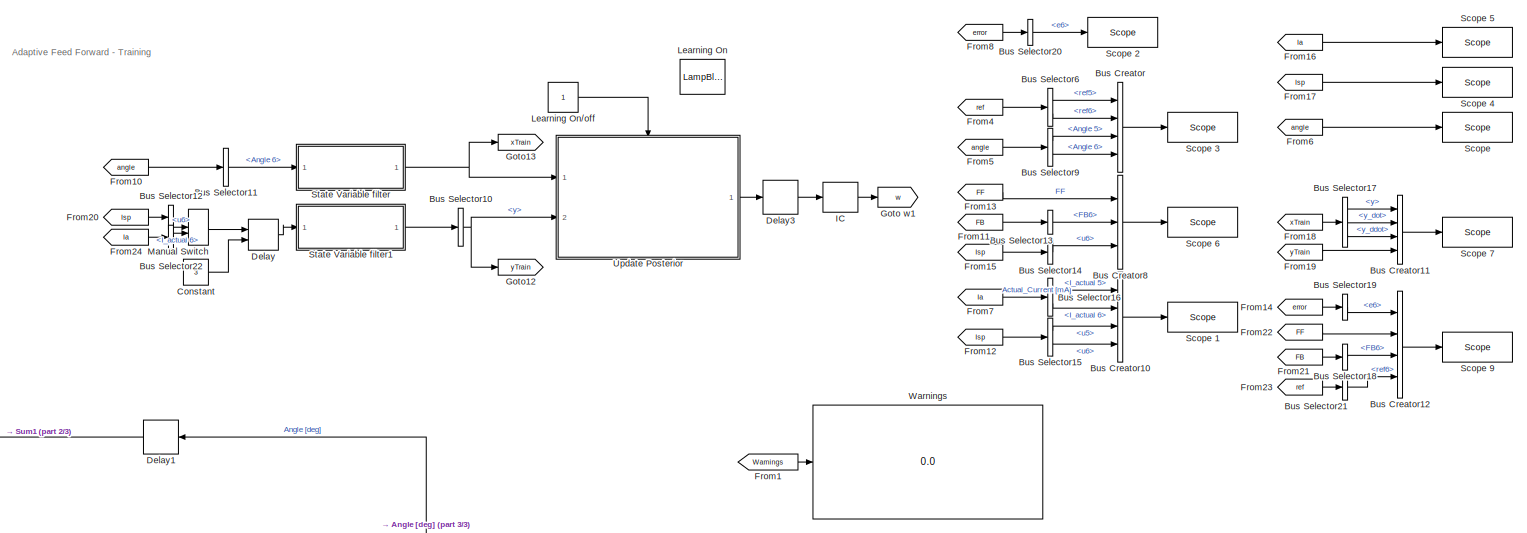
[diagram: root canvas - part 1/3, top right region]
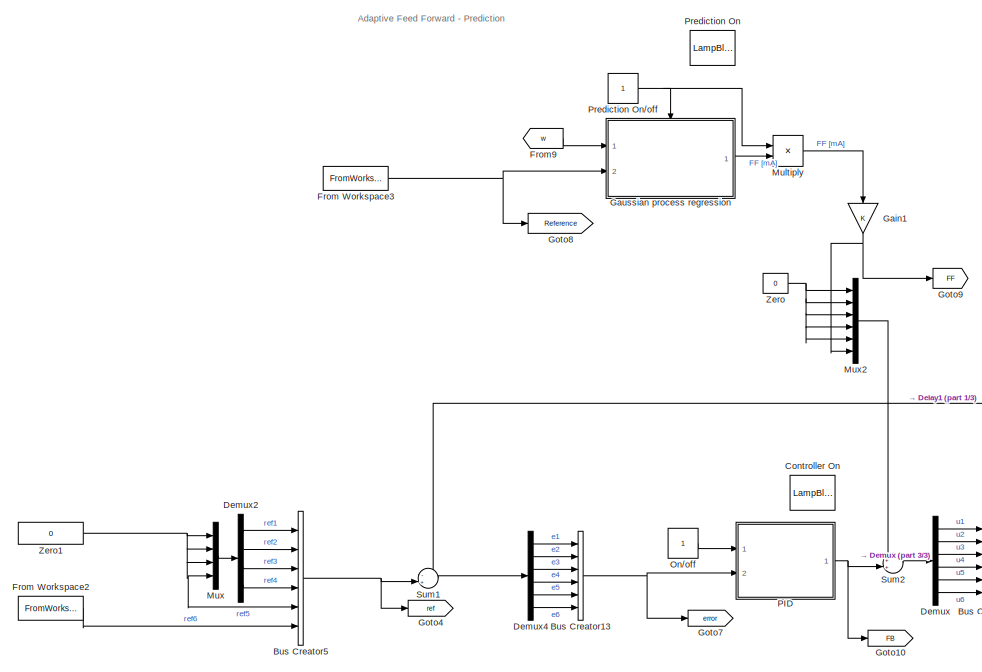
[diagram: root canvas - part 2/3, top left region]
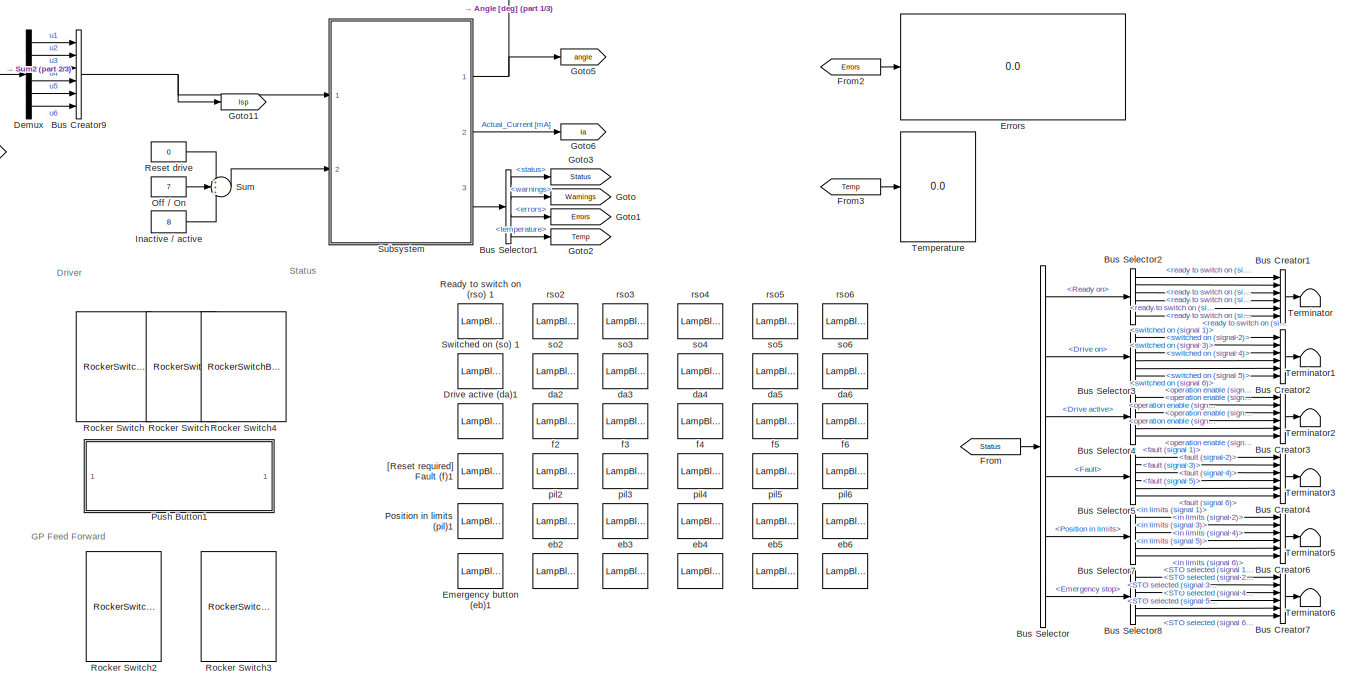
[diagram: root canvas - part 3/3, bottom center region]
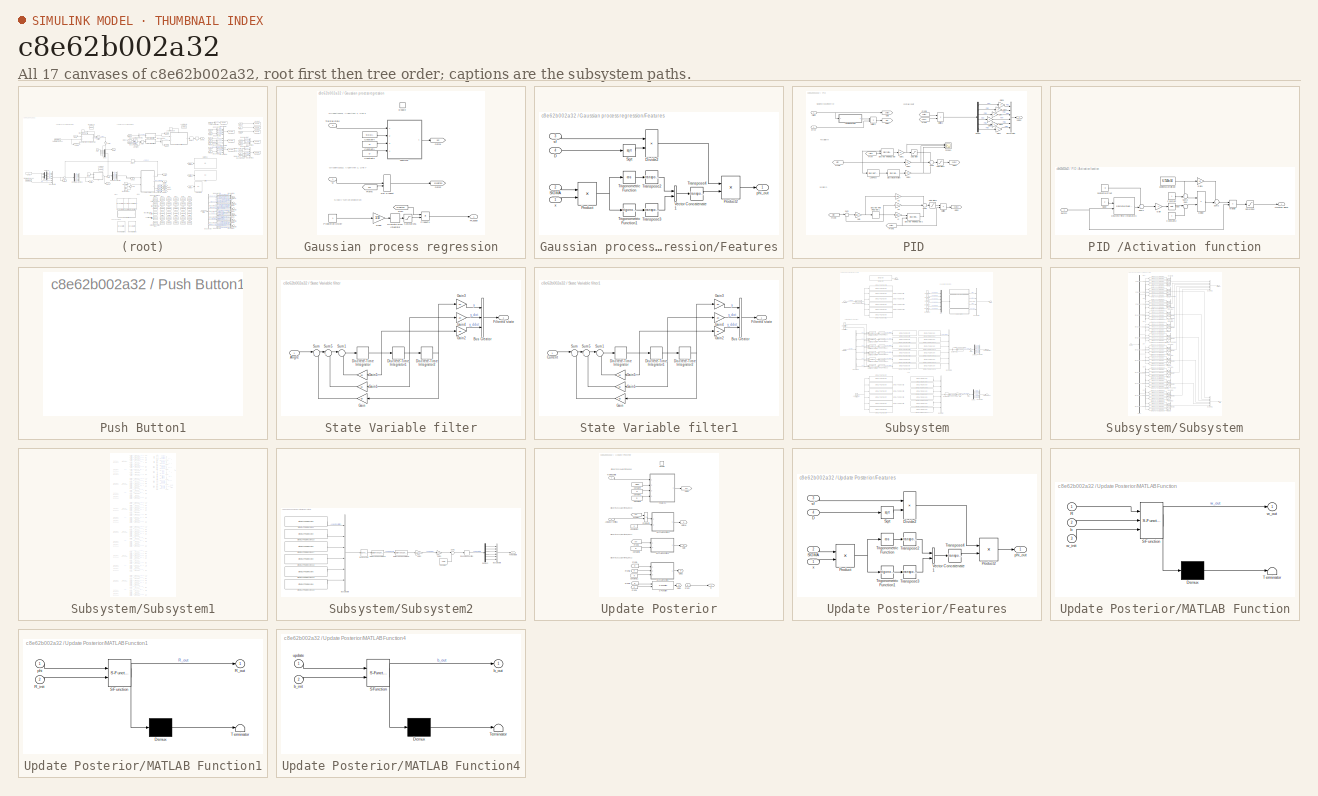
[diagram: thumbnail index - all 17 canvases of the model, root first then tree order]
MODEL slx_c8e62b002a32
KIND model
CONFIG AbsTol = auto
CONFIG EnableMultiTasking = off
CONFIG FixedStep = ts
CONFIG InitFcn = Ts = 0.001;
CONFIG MaxStep = auto
CONFIG MinStep = auto
CONFIG PreLoadFcn = Ts = 0.001;
CONFIG RelTol = 1e-3
CONFIG SampleTimeConstraint = Unconstrained
CONFIG Solver = FixedStepDiscrete
CONFIG SolverName = FixedStepDiscrete
CONFIG StartTime = 0.0
CONFIG StopTime = t_end
BLOCK [LampBlock]  da2 
  LabelPosition = Hide
  WebBlockId = 1372
BLOCK [LampBlock]  da4
  LabelPosition = Hide
  WebBlockId = 1373
BLOCK [LampBlock]  da5
  LabelPosition = Hide
  WebBlockId = 1374
BLOCK [LampBlock]  da6
  LabelPosition = Hide
  WebBlockId = 1375
BLOCK [LampBlock]  eb4
  LabelPosition = Hide
  WebBlockId = 1402
BLOCK [LampBlock]  eb5
  LabelPosition = Hide
  WebBlockId = 1403
BLOCK [LampBlock]  eb6
  LabelPosition = Hide
  WebBlockId = 1404
BLOCK [LampBlock]  f4
  LabelPosition = Hide
  WebBlockId = 1379
BLOCK [LampBlock]  f5
  LabelPosition = Hide
  WebBlockId = 1380
BLOCK [LampBlock]  f6
  LabelPosition = Hide
  WebBlockId = 1381
BLOCK [LampBlock]  pil4
  LabelPosition = Hide
  WebBlockId = 1397
BLOCK [LampBlock]  pil5
  LabelPosition = Hide
  WebBlockId = 1398
BLOCK [LampBlock]  pil6
  LabelPosition = Hide
  WebBlockId = 1399
BLOCK [LampBlock]  rso4
  LabelPosition = Hide
  WebBlockId = 1325
BLOCK [LampBlock]  so2 
  LabelPosition = Hide
  WebBlockId = 1336
BLOCK [LampBlock]  so4
  LabelPosition = Hide
  WebBlockId = 1333
BLOCK [LampBlock]  so5
  LabelPosition = Hide
  WebBlockId = 1334
BLOCK [LampBlock]  so6
  LabelPosition = Hide
  WebBlockId = 1335
BLOCK [BusCreator] Bus Creator
  DisplayOption = bar
  InheritFromInputs = on
  Inputs = 4
  Ports = [4, 1]
BLOCK [BusCreator] Bus Creator1
  DisplayOption = bar
  InheritFromInputs = on
  Inputs = 6
  Ports = [6, 1]
BLOCK [BusCreator] Bus Creator10
  DisplayOption = bar
  InheritFromInputs = on
  Inputs = 4
  Ports = [4, 1]
BLOCK [BusCreator] Bus Creator11
  DisplayOption = bar
  InheritFromInputs = on
  Inputs = 4
  Ports = [4, 1]
BLOCK [BusCreator] Bus Creator12
  DisplayOption = bar
  InheritFromInputs = on
  Inputs = 4
  Ports = [4, 1]
BLOCK [BusCreator] Bus Creator13
  DisplayOption = bar
  InheritFromInputs = on
  Inputs = 6
  Ports = [6, 1]
BLOCK [BusCreator] Bus Creator2
  DisplayOption = bar
  InheritFromInputs = on
  Inputs = 6
  Ports = [6, 1]
BLOCK [BusCreator] Bus Creator3
  DisplayOption = bar
  InheritFromInputs = on
  Inputs = 6
  Ports = [6, 1]
BLOCK [BusCreator] Bus Creator4
  DisplayOption = bar
  InheritFromInputs = on
  Inputs = 6
  Ports = [6, 1]
BLOCK [BusCreator] Bus Creator5
  DisplayOption = bar
  InheritFromInputs = on
  Inputs = 6
  Ports = [6, 1]
BLOCK [BusCreator] Bus Creator6
  DisplayOption = bar
  InheritFromInputs = on
  Inputs = 6
  Ports = [6, 1]
BLOCK [BusCreator] Bus Creator7
  DisplayOption = bar
  InheritFromInputs = on
  Inputs = 6
  Ports = [6, 1]
BLOCK [BusCreator] Bus Creator8
  DisplayOption = bar
  InheritFromInputs = on
  Inputs = 3
  Ports = [3, 1]
BLOCK [BusCreator] Bus Creator9
  DisplayOption = bar
  InheritFromInputs = on
  Inputs = 6
  Ports = [6, 1]
BLOCK [BusSelector] Bus Selector
  OutputAsBus = off
  OutputSignals = Ready on,Drive on,Drive active,Fault,Position in limits,Emergency stop
  Ports = [1, 6]
BLOCK [BusSelector] Bus Selector1
  OutputAsBus = off
  OutputSignals = status,warnings,errors,temperature
  Ports = [1, 4]
BLOCK [BusSelector] Bus Selector10
  OutputAsBus = off
  OutputSignals = y
  Ports = [1, 1]
BLOCK [BusSelector] Bus Selector11
  OutputAsBus = off
  OutputSignals = Angle 6
  Ports = [1, 1]
BLOCK [BusSelector] Bus Selector12
  OutputAsBus = off
  OutputSignals = u6
  Ports = [1, 1]
BLOCK [BusSelector] Bus Selector13
  OutputAsBus = off
  OutputSignals = FB6
  Ports = [1, 1]
BLOCK [BusSelector] Bus Selector14
  OutputAsBus = off
  OutputSignals = u6
  Ports = [1, 1]
BLOCK [BusSelector] Bus Selector15
  OutputAsBus = off
  OutputSignals = u5,u6
  Ports = [1, 2]
BLOCK [BusSelector] Bus Selector16
  OutputAsBus = off
  OutputSignals = I_actual 5,I_actual 6
  Ports = [1, 2]
BLOCK [BusSelector] Bus Selector17
  OutputAsBus = off
  OutputSignals = y,y_dot,y_ddot
  Ports = [1, 3]
BLOCK [BusSelector] Bus Selector18
  OutputAsBus = off
  OutputSignals = FB6
  Ports = [1, 1]
BLOCK [BusSelector] Bus Selector19
  OutputAsBus = off
  OutputSignals = e6
  Ports = [1, 1]
BLOCK [BusSelector] Bus Selector2
  OutputAsBus = off
  OutputSignals = ready to switch on (signal 1),ready to switch on (signal 2),ready to switch on (signal 3),ready to switch on (signal 4),ready to switch on (signal 5),ready to switch on (signal 6)
  Ports = [1, 6]
BLOCK [BusSelector] Bus Selector20
  OutputAsBus = off
  OutputSignals = e6
  Ports = [1, 1]
BLOCK [BusSelector] Bus Selector21
  OutputAsBus = off
  OutputSignals = ref6
  Ports = [1, 1]
BLOCK [BusSelector] Bus Selector22
  OutputAsBus = off
  OutputSignals = I_actual 6
  Ports = [1, 1]
BLOCK [BusSelector] Bus Selector3
  OutputAsBus = off
  OutputSignals = switched on (signal 1),switched on (signal 2),switched on (signal 3),switched on (signal 4),switched on (signal 5),switched on (signal 6)
  Ports = [1, 6]
BLOCK [BusSelector] Bus Selector4
  OutputAsBus = off
  OutputSignals = operation enable (signal 1),operation enable (signal 2),operation enable (signal 3),operation enable (signal 4),operation enable (signal 5),operation enable (signal 6)
  Ports = [1, 6]
BLOCK [BusSelector] Bus Selector5
  OutputAsBus = off
  OutputSignals = fault (signal 1),fault (signal 2),fault (signal 3),fault (signal 4),fault (signal 5),fault (signal 6)
  Ports = [1, 6]
BLOCK [BusSelector] Bus Selector6
  OutputAsBus = off
  OutputSignals = ref5,ref6
  Ports = [1, 2]
BLOCK [BusSelector] Bus Selector7
  OutputAsBus = off
  OutputSignals = in limits (signal 1),in limits (signal 2),in limits (signal 3),in limits (signal 4),in limits (signal 5),in limits (signal 6)
  Ports = [1, 6]
BLOCK [BusSelector] Bus Selector8
  OutputAsBus = off
  OutputSignals = STO selected (signal 1),STO selected (signal 2),STO selected (signal 3),STO selected (signal 4),STO selected (signal 5),STO selected (signal 6)
  Ports = [1, 6]
BLOCK [BusSelector] Bus Selector9
  OutputAsBus = off
  OutputSignals = Angle 5,Angle 6
  Ports = [1, 2]
BLOCK [Constant] Constant
  SampleTime = ts
  Value = 3
BLOCK [LampBlock] Controller On 
  LabelPosition = Hide
  WebBlockId = 1976
BLOCK [Delay] Delay
  DelayLengthSource = Input port
  InputPortMap = u0,p1
  Ports = [2, 1]
BLOCK [Delay] Delay1
  DelayLength = 1
  InputPortMap = u0
  Ports = [1, 1]
BLOCK [Delay] Delay3
  DelayLength = 1
  InitialCondition = 0
  InputPortMap = u0
  Ports = [1, 1]
BLOCK [Demux] Demux
  DisplayOption = bar
  Outputs = 6
  Ports = [1, 6]
BLOCK [Demux] Demux2
  DisplayOption = bar
  Ports = [1, 4]
BLOCK [Demux] Demux4
  DisplayOption = bar
  Outputs = 6
  Ports = [1, 6]
BLOCK [LampBlock] Drive active (da)1
  WebBlockId = 1376
BLOCK [LampBlock] Emergency button (eb)1
  WebBlockId = 1405
BLOCK [Display] Errors
  Decimation = 25
  Ports = [1]
BLOCK [From] From
  GotoTag = Status
BLOCK [FromWorkspace] From Workspace2
  OutputAfterFinalValue = Setting to zero
  SampleTime = ts
  VariableName = skewSine
  ZeroCross = on
BLOCK [FromWorkspace] From Workspace3
  OutputAfterFinalValue = Setting to zero
  SampleTime = ts
  VariableName = skewSineFF
  ZeroCross = on
BLOCK [From] From1
  GotoTag = Warnings
BLOCK [From] From10
  GotoTag = angle
BLOCK [From] From11
  GotoTag = FB
BLOCK [From] From12
  GotoTag = Isp
BLOCK [From] From13
  GotoTag = FF
BLOCK [From] From14
  GotoTag = error
BLOCK [From] From15
  GotoTag = Isp
BLOCK [From] From16
  Commented = on
  GotoTag = Ia
BLOCK [From] From17
  Commented = on
  GotoTag = Isp
BLOCK [From] From18
  GotoTag = xTrain
BLOCK [From] From19
  GotoTag = yTrain
BLOCK [From] From2
  GotoTag = Errors
BLOCK [From] From20
  GotoTag = Isp
BLOCK [From] From21
  GotoTag = FB
BLOCK [From] From22
  GotoTag = FF
BLOCK [From] From23
  GotoTag = ref
BLOCK [From] From24
  GotoTag = Ia
BLOCK [From] From3
  GotoTag = Temp
BLOCK [From] From4
  GotoTag = ref
BLOCK [From] From5
  GotoTag = angle
BLOCK [From] From6
  Commented = on
  GotoTag = angle
BLOCK [From] From7
  GotoTag = Ia
BLOCK [From] From8
  GotoTag = error
BLOCK [From] From9
  GotoTag = w
BLOCK [Gain] Gain1
  OutDataTypeStr = Inherit: Inherit via internal rule
  ParamDataTypeStr = Inherit: Inherit via internal rule
  SaturateOnIntegerOverflow = off
BLOCK [SubSystem] Gaussian process regression
  Ports = [2, 1, 1]
  RequestExecContextInheritance = off
BLOCK [Constant] Gaussian process regression/Constant1
  Value = sf
  VectorParams1D = off
BLOCK [Constant] Gaussian process regression/Constant3
  Value = D
  VectorParams1D = off
BLOCK [Constant] Gaussian process regression/Constant4
  Value = SIGMA
  VectorParams1D = off
BLOCK [DiscreteIntegrator] Gaussian process regression/Discrete-Time Integrator
  ICPrevOutput = DiscIntNeverNeededParam
  ICPrevScaledInput = DiscIntNeverNeededParam
  InitialConditionSetting = Auto
  Ports = [1, 1]
  SampleTime = -1
BLOCK [DotProduct] Gaussian process regression/Dot Product
  InputSameDT = off
  OutDataTypeStr = Inherit: Inherit via internal rule
BLOCK [EnablePort] Gaussian process regression/Enable
  Ports = []
  StatesWhenEnabling = reset
BLOCK [Outport] Gaussian process regression/FF_adapt
  IconDisplay = Port number
  SampleTime = ts
BLOCK [SubSystem] Gaussian process regression/Features
  Ports = [4, 1]
  RequestExecContextInheritance = off
BLOCK [Inport] Gaussian process regression/Features/D
  IconDisplay = Port number
  Port = 4
BLOCK [Product] Gaussian process regression/Features/Divide2
  InputSameDT = off
  Inputs = */
  OutDataTypeStr = Inherit: Inherit via internal rule
  Ports = [2, 1]
  RndMeth = Floor
  SaturateOnIntegerOverflow = off
BLOCK [Product] Gaussian process regression/Features/Product
  InputSameDT = off
  Multiplication = Matrix(*)
  OutDataTypeStr = Inherit: Inherit via internal rule
  Ports = [2, 1]
  RndMeth = Floor
  SaturateOnIntegerOverflow = off
BLOCK [Product] Gaussian process regression/Features/Product2
  InputSameDT = off
  OutDataTypeStr = Inherit: Inherit via internal rule
  Ports = [2, 1]
  RndMeth = Floor
  SaturateOnIntegerOverflow = off
BLOCK [Inport] Gaussian process regression/Features/SIGMA
  IconDisplay = Port number
  Port = 2
BLOCK [Sqrt] Gaussian process regression/Features/Sqrt
BLOCK [Math] Gaussian process regression/Features/Transpose2
  Operator = transpose
  Ports = [1, 1]
BLOCK [Math] Gaussian process regression/Features/Transpose3
  Operator = transpose
  Ports = [1, 1]
BLOCK [Math] Gaussian process regression/Features/Transpose4
  Operator = transpose
  Ports = [1, 1]
BLOCK [Trigonometry] Gaussian process regression/Features/Trigonometric Function
  Operator = cos
  Ports = [1, 1]
BLOCK [Trigonometry] Gaussian process regression/Features/Trigonometric Function1
  Ports = [1, 1]
BLOCK [Concatenate] Gaussian process regression/Features/Vector Concatenate1
  Ports = [2, 1]
BLOCK [Outport] Gaussian process regression/Features/phi_out
  IconDisplay = Port number
BLOCK [Inport] Gaussian process regression/Features/sf
  IconDisplay = Port number
  Port = 3
BLOCK [Inport] Gaussian process regression/Features/x
  IconDisplay = Port number
BLOCK [From] Gaussian process regression/From
  GotoTag = prediction
BLOCK [From] Gaussian process regression/From5
  GotoTag = phi
BLOCK [Goto] Gaussian process regression/Goto1
  GotoTag = phi
BLOCK [Goto] Gaussian process regression/Goto2
  GotoTag = prediction
BLOCK [Constant] Gaussian process regression/Prediction On//off
BLOCK [Product] Gaussian process regression/Product1
  InputSameDT = off
  OutDataTypeStr = Inherit: Inherit via internal rule
  Ports = [2, 1]
  RndMeth = Floor
  SaturateOnIntegerOverflow = off
BLOCK [Saturate] Gaussian process regression/Saturation1
  InputPortMap = u0
  LowerLimit = 0
  Ports = [1, 1]
  UpperLimit = 1
BLOCK [Inport] Gaussian process regression/Training state
  IconDisplay = Port number
  Port = 2
BLOCK [Gain] Gaussian process regression/slope
  Gain = 1/10
  OutDataTypeStr = Inherit: Inherit via internal rule
  ParamDataTypeStr = Inherit: Inherit via internal rule
  SaturateOnIntegerOverflow = off
BLOCK [Inport] Gaussian process regression/w
  IconDisplay = Port number
BLOCK [Goto] Goto
  GotoTag = Warnings
BLOCK [Goto] Goto w1
  GotoTag = w
BLOCK [Goto] Goto1
  GotoTag = Errors
BLOCK [Goto] Goto10
  GotoTag = FB
BLOCK [Goto] Goto11
  GotoTag = Isp
BLOCK [Goto] Goto12
  GotoTag = yTrain
BLOCK [Goto] Goto13
  GotoTag = xTrain
BLOCK [Goto] Goto2
  GotoTag = Temp
BLOCK [Goto] Goto3
  GotoTag = Status
BLOCK [Goto] Goto4
  GotoTag = ref
BLOCK [Goto] Goto5
  GotoTag = angle
BLOCK [Goto] Goto6
  GotoTag = Ia
BLOCK [Goto] Goto7
  GotoTag = error
BLOCK [Goto] Goto8
  GotoTag = Reference
BLOCK [Goto] Goto9
  GotoTag = FF
BLOCK [InitialCondition] IC
  Value = w
BLOCK [Constant] Inactive // active
  SampleTime = -1
  Value = 8
BLOCK [LampBlock] Learning On
  LabelPosition = Hide
  WebBlockId = 2313
BLOCK [Constant] Learning On//off
  SampleTime = ts
BLOCK [ManualSwitch] Manual Switch
BLOCK [Product] Multiply
  InputSameDT = off
  OutDataTypeStr = Inherit: Inherit via internal rule
  Ports = [2, 1]
  RndMeth = Floor
  SaturateOnIntegerOverflow = off
BLOCK [Mux] Mux
  DisplayOption = bar
  Ports = [4, 1]
BLOCK [Mux] Mux2
  DisplayOption = bar
  Inputs = 6
  Ports = [6, 1]
BLOCK [Constant] Off // On
  SampleTime = -1
  Value = 7
BLOCK [Constant] On//off
  SampleTime = ts
BLOCK [SubSystem] PID 
  Ports = [2, 1]
  RequestExecContextInheritance = off
BLOCK [SubSystem] PID /Activation function
  Ports = [1, 1]
  RequestExecContextInheritance = off
BLOCK [Outport] PID /Activation function/Activation Signal
  IconDisplay = Port number
BLOCK [Constant] PID /Activation function/Constant
BLOCK [Constant] PID /Activation function/Constant2
BLOCK [DiscreteIntegrator] PID /Activation function/Discrete-Time Integrator3
  ExternalReset = rising
  ICPrevOutput = DiscIntNeverNeededParam
  ICPrevScaledInput = DiscIntNeverNeededParam
  InitialConditionSetting = Auto
  IntegratorMethod = Integration: Trapezoidal
  LowerSaturationLimit = 0
  Ports = [2, 1]
  SampleTime = -1
  UpperSaturationLimit = 1
BLOCK [Product] PID /Activation function/Divide
  InputSameDT = off
  Inputs = */
  OutDataTypeStr = Inherit: Inherit via internal rule
  Ports = [2, 1]
  RndMeth = Floor
  SaturateOnIntegerOverflow = off
BLOCK [Math] PID /Activation function/Exp
  Ports = [1, 1]
BLOCK [Gain] PID /Activation function/Gain
  Gain = -1
  OutDataTypeStr = Inherit: Inherit via internal rule
  ParamDataTypeStr = Inherit: Inherit via internal rule
  SaturateOnIntegerOverflow = off
BLOCK [Gain] PID /Activation function/Gain1
  Gain = 1/2
  OutDataTypeStr = Inherit: Inherit via internal rule
  ParamDataTypeStr = Inherit: Inherit via internal rule
  SaturateOnIntegerOverflow = off
BLOCK [Product] PID /Activation function/Multiply
  InputSameDT = off
  OutDataTypeStr = Inherit: Inherit via internal rule
  Ports = [2, 1]
  RndMeth = Floor
  SaturateOnIntegerOverflow = off
BLOCK [Saturate] PID /Activation function/Saturation
  InputPortMap = u0
  LowerLimit = 0
  Ports = [1, 1]
  UpperLimit = 1
BLOCK [Sum] PID /Activation function/Sum
  IconShape = round
  InputSameDT = off
  Inputs = |++
  OutDataTypeStr = Inherit: Inherit via internal rule
  Ports = [2, 1]
  SaturateOnIntegerOverflow = off
BLOCK [Sum] PID /Activation function/Sum1
  IconShape = round
  InputSameDT = off
  Inputs = ++|
  OutDataTypeStr = Inherit: Inherit via internal rule
  Ports = [2, 1]
  SaturateOnIntegerOverflow = off
BLOCK [Sum] PID /Activation function/Sum2
  IconShape = round
  InputSameDT = off
  Inputs = -+|
  OutDataTypeStr = Inherit: Inherit via internal rule
  Ports = [2, 1]
  SaturateOnIntegerOverflow = off
BLOCK [Sum] PID /Activation function/Sum3
  IconShape = round
  InputSameDT = off
  Inputs = ++|
  OutDataTypeStr = Inherit: Inherit via internal rule
  Ports = [2, 1]
  SaturateOnIntegerOverflow = off
BLOCK [Inport] PID /Activation function/Switch
  IconDisplay = Port number
BLOCK [Constant] PID /Activation function/additional amplitude
  Value = 6.7140e-04
BLOCK [Constant] PID /Activation function/horizontal offset
  Value = -8
BLOCK [Constant] PID /Activation function/slope
  Value = 2
BLOCK [BusCreator] PID /Bus Creator
  DisplayOption = bar
  InheritFromInputs = on
  Inputs = 6
  Ports = [6, 1]
BLOCK [Demux] PID /Demux
  DisplayOption = bar
  Outputs = 6
  Ports = [1, 6]
BLOCK [Reference] PID /Discrete Derivative  REF=simulink/Discrete/Discrete Derivative
  Commented = on
  Ports = [1, 1]
  SourceBlock = simulink/Discrete/Discrete Derivative
  SourceProductBaseCode = SL
  SourceProductName = Simulink
  SourceType = Discrete Derivative
BLOCK [DiscreteIntegrator] PID /Discrete-Time Integrator
  Commented = on
  ExternalReset = either
  ICPrevOutput = DiscIntNeverNeededParam
  ICPrevScaledInput = DiscIntNeverNeededParam
  InitialConditionSetting = Auto
  IntegratorMethod = Integration: Trapezoidal
  LimitOutput = on
  LowerSaturationLimit = I_limit_min
  Ports = [2, 1]
  SampleTime = ts
  UpperSaturationLimit = I_limit_max
BLOCK [DiscreteIntegrator] PID /Discrete-Time Integrator1
  ICPrevOutput = DiscIntNeverNeededParam
  ICPrevScaledInput = DiscIntNeverNeededParam
  InitialConditionSetting = Auto
  Ports = [1, 1]
  SampleTime = -1
BLOCK [DiscreteIntegrator] PID /Discrete-Time Integrator2
  ExternalReset = rising
  ICPrevOutput = DiscIntNeverNeededParam
  ICPrevScaledInput = DiscIntNeverNeededParam
  InitialConditionSetting = Auto
  IntegratorMethod = Integration: Trapezoidal
  LimitOutput = on
  LowerSaturationLimit = I_limit_min
  Ports = [2, 1]
  SampleTime = ts
  UpperSaturationLimit = I_limit_max
BLOCK [From] PID /From
  Commented = on
  GotoTag = switch
BLOCK [From] PID /From1
  GotoTag = output
BLOCK [From] PID /From2
  Commented = on
  GotoTag = error
BLOCK [From] PID /From3
  GotoTag = switch
BLOCK [From] PID /From4
  GotoTag = error
BLOCK [From] PID /From6
  GotoTag = switch
BLOCK [Gain] PID /Gain
  Gain = 1/tau_p
  OutDataTypeStr = Inherit: Inherit via internal rule
  ParamDataTypeStr = Inherit: Inherit via internal rule
  SaturateOnIntegerOverflow = off
BLOCK [Gain] PID /Gain1
  Commented = on
  Gain = Ki
  OutDataTypeStr = Inherit: Inherit via internal rule
  ParamDataTypeStr = Inherit: Inherit via internal rule
  SaturateOnIntegerOverflow = off
BLOCK [Gain] PID /Gain2
  Commented = on
  Gain = Kp
  OutDataTypeStr = Inherit: Inherit via internal rule
  ParamDataTypeStr = Inherit: Inherit via internal rule
  SaturateOnIntegerOverflow = off
BLOCK [Gain] PID /Gain3
  Commented = on
  Gain = Kd
  OutDataTypeStr = Inherit: Inherit via internal rule
  ParamDataTypeStr = Inherit: Inherit via internal rule
  SaturateOnIntegerOverflow = off
BLOCK [Gain] PID /Gain4
  Gain = -1
  OutDataTypeStr = Inherit: Inherit via internal rule
  ParamDataTypeStr = Inherit: Inherit via internal rule
  SaturateOnIntegerOverflow = off
BLOCK [Gain] PID /Gain5
  Gain = -1
  OutDataTypeStr = Inherit: Inherit via internal rule
  ParamDataTypeStr = Inherit: Inherit via internal rule
  SaturateOnIntegerOverflow = off
BLOCK [Gain] PID /Gain6
  Gain = 0
  OutDataTypeStr = Inherit: Inherit via internal rule
  ParamDataTypeStr = Inherit: Inherit via internal rule
  SaturateOnIntegerOverflow = off
BLOCK [Gain] PID /Gain7
  Gain = 0
  OutDataTypeStr = Inherit: Inherit via internal rule
  ParamDataTypeStr = Inherit: Inherit via internal rule
  SaturateOnIntegerOverflow = off
BLOCK [Gain] PID /Gain8
  Gain = 0
  OutDataTypeStr = Inherit: Inherit via internal rule
  ParamDataTypeStr = Inherit: Inherit via internal rule
  SaturateOnIntegerOverflow = off
BLOCK [Gain] PID /Gain9
  Gain = 0
  OutDataTypeStr = Inherit: Inherit via internal rule
  ParamDataTypeStr = Inherit: Inherit via internal rule
  SaturateOnIntegerOverflow = off
BLOCK [Goto] PID /Goto
  GotoTag = switch
BLOCK [Goto] PID /Goto1
  GotoTag = error
BLOCK [Goto] PID /Goto2
  GotoTag = output
BLOCK [Goto] PID /Goto3
  Commented = on
  GotoTag = output
BLOCK [DiscreteTransferFcn] PID /LowPass
  Commented = on
  Denominator = LPden
  InputPortMap = u0
  Numerator = LPnum
  Ports = [1, 1]
BLOCK [Product] PID /Multiply
  InputSameDT = off
  OutDataTypeStr = Inherit: Inherit via internal rule
  Ports = [2, 1]
  RndMeth = Floor
  SaturateOnIntegerOverflow = off
BLOCK [Product] PID /Multiply1
  InputSameDT = off
  OutDataTypeStr = Inherit: Inherit via internal rule
  Ports = [2, 1]
  RndMeth = Floor
  SaturateOnIntegerOverflow = off
BLOCK [Product] PID /Multiply2
  InputSameDT = off
  OutDataTypeStr = Inherit: Inherit via internal rule
  Ports = [2, 1]
  RndMeth = Floor
  SaturateOnIntegerOverflow = off
BLOCK [Saturate] PID /Saturation
  Commented = on
  InputPortMap = u0
  LowerLimit = I_limit_min
  Ports = [1, 1]
  UpperLimit = I_limit_max
BLOCK [Saturate] PID /Saturation1
  Commented = on
  InputPortMap = u0
  LowerLimit = I_limit_min
  Ports = [1, 1]
  UpperLimit = I_limit_max
BLOCK [Saturate] PID /Saturation2
  InputPortMap = u0
  LowerLimit = I_limit_min
  Ports = [1, 1]
  UpperLimit = I_limit_max
BLOCK [Scope] PID /Scope1
  Commented = on
  Floating = off
  NumInputPorts = 3
  Ports = [3]
  ScopeSpecificationString = Simulink.scopes.TimeScopeBlockCfg('CurrentConfiguration', extmgr.ConfigurationSet(extmgr.Configuration('Core','General UI',true),extmgr.Configuration('Core','Source UI',true),extmgr.Configuration('Sources','WiredSimulink',true,'DataLoggingVariableName','ScopeData2'),extmgr.Configuration('Visuals','Time Domain',true,'SerializedDisplays',{struct('MinYLimReal','-1706618.93865','MaxYLimReal','1470835....<+1629ch>
BLOCK [Sum] PID /Sum
  IconShape = round
  InputSameDT = off
  Inputs = |+-
  OutDataTypeStr = Inherit: Inherit via internal rule
  Ports = [2, 1]
  SaturateOnIntegerOverflow = off
BLOCK [Sum] PID /Sum1
  IconShape = round
  InputSameDT = off
  Inputs = +++
  OutDataTypeStr = Inherit: Inherit via internal rule
  Ports = [3, 1]
  SaturateOnIntegerOverflow = off
BLOCK [Sum] PID /Sum2
  Commented = on
  IconShape = round
  InputSameDT = off
  Inputs = +++
  OutDataTypeStr = Inherit: Inherit via internal rule
  Ports = [3, 1]
  SaturateOnIntegerOverflow = off
BLOCK [Inport] PID /error
  IconDisplay = Port number
  Port = 2
BLOCK [Gain] PID /kd
  Gain = kp*tau_z
  OutDataTypeStr = Inherit: Inherit via internal rule
  ParamDataTypeStr = Inherit: Inherit via internal rule
  SaturateOnIntegerOverflow = off
BLOCK [Gain] PID /ki
  Gain = kp/tau_i
  OutDataTypeStr = Inherit: Inherit via internal rule
  ParamDataTypeStr = Inherit: Inherit via internal rule
  SaturateOnIntegerOverflow = off
BLOCK [Gain] PID /kp
  Gain = kp*(1+tau_z/tau_i)
  OutDataTypeStr = Inherit: Inherit via internal rule
  ParamDataTypeStr = Inherit: Inherit via internal rule
  SaturateOnIntegerOverflow = off
BLOCK [Outport] PID /output
  IconDisplay = Port number
BLOCK [Inport] PID /switch
  IconDisplay = Port number
  SampleTime = ts
BLOCK [LampBlock] Position in limits (pil)1
  WebBlockId = 1400
BLOCK [LampBlock] Prediction On 
  LabelPosition = Hide
  WebBlockId = 2312
BLOCK [Constant] Prediction On//off
  SampleTime = ts
BLOCK [SubSystem] Push Button1
  DialogController = hmiCreateDDGDialog
  IsWebBlock = on
  Ports = []
  RequestExecContextInheritance = off
BLOCK [LampBlock] Ready to switch on (rso) 1
  WebBlockId = 226
BLOCK [Constant] Reset drive
  SampleTime = -1
  Value = 0
BLOCK [RockerSwitchBlock] Rocker Switch
  LabelPosition = Hide
  WebBlockId = 231
BLOCK [RockerSwitchBlock] Rocker Switch1
  LabelPosition = Hide
  WebBlockId = 232
BLOCK [RockerSwitchBlock] Rocker Switch2
  LabelPosition = Hide
  WebBlockId = 2309
BLOCK [RockerSwitchBlock] Rocker Switch3
  LabelPosition = Hide
  WebBlockId = 2310
BLOCK [RockerSwitchBlock] Rocker Switch4
  LabelPosition = Hide
  WebBlockId = 1973
BLOCK [Reference] Scope   REF=slrtlib/Displays and
Logging/Scope 
  Commented = on
  Ports = [1]
  SourceBlock = slrtlib/Displays and\nLogging/Scope
  SourceProductBaseCode = XP
  SourceProductName = Simulink Real-Time
  SourceType = xpcscopeblock
BLOCK [Reference] Scope 1  REF=slrtlib/Displays and
Logging/Scope 
  Ports = [1]
  SourceBlock = slrtlib/Displays and\nLogging/Scope
  SourceProductBaseCode = XP
  SourceProductName = Simulink Real-Time
  SourceType = xpcscopeblock
BLOCK [Reference] Scope 2  REF=slrtlib/Displays and
Logging/Scope 
  Ports = [1]
  SourceBlock = slrtlib/Displays and\nLogging/Scope
  SourceProductBaseCode = XP
  SourceProductName = Simulink Real-Time
  SourceType = xpcscopeblock
BLOCK [Reference] Scope 3  REF=slrtlib/Displays and
Logging/Scope 
  Ports = [1]
  SourceBlock = slrtlib/Displays and\nLogging/Scope
  SourceProductBaseCode = XP
  SourceProductName = Simulink Real-Time
  SourceType = xpcscopeblock
BLOCK [Reference] Scope 4  REF=slrtlib/Displays and
Logging/Scope 
  Commented = on
  Ports = [1]
  SourceBlock = slrtlib/Displays and\nLogging/Scope
  SourceProductBaseCode = XP
  SourceProductName = Simulink Real-Time
  SourceType = xpcscopeblock
BLOCK [Reference] Scope 5  REF=slrtlib/Displays and
Logging/Scope 
  Commented = on
  Ports = [1]
  SourceBlock = slrtlib/Displays and\nLogging/Scope
  SourceProductBaseCode = XP
  SourceProductName = Simulink Real-Time
  SourceType = xpcscopeblock
BLOCK [Reference] Scope 6  REF=slrtlib/Displays and
Logging/Scope 
  Ports = [1]
  SourceBlock = slrtlib/Displays and\nLogging/Scope
  SourceProductBaseCode = XP
  SourceProductName = Simulink Real-Time
  SourceType = xpcscopeblock
BLOCK [Reference] Scope 7  REF=slrtlib/Displays and
Logging/Scope 
  Ports = [1]
  SourceBlock = slrtlib/Displays and\nLogging/Scope
  SourceProductBaseCode = XP
  SourceProductName = Simulink Real-Time
  SourceType = xpcscopeblock
BLOCK [Reference] Scope 9  REF=slrtlib/Displays and
Logging/Scope 
  Ports = [1]
  SourceBlock = slrtlib/Displays and\nLogging/Scope
  SourceProductBaseCode = XP
  SourceProductName = Simulink Real-Time
  SourceType = xpcscopeblock
BLOCK [SubSystem] State Variable filter
  Ports = [1, 1]
  RequestExecContextInheritance = off
BLOCK [Inport] State Variable filter/Angle
  IconDisplay = Port number
BLOCK [BusCreator] State Variable filter/Bus Creator
  DisplayOption = bar
  InheritFromInputs = on
  Inputs = 3
  Ports = [3, 1]
BLOCK [DiscreteIntegrator] State Variable filter/Discrete-Time Integrator
  ICPrevOutput = DiscIntNeverNeededParam
  ICPrevScaledInput = DiscIntNeverNeededParam
  InitialConditionSetting = Auto
  Ports = [1, 1]
  SampleTime = -1
BLOCK [DiscreteIntegrator] State Variable filter/Discrete-Time Integrator1
  ICPrevOutput = DiscIntNeverNeededParam
  ICPrevScaledInput = DiscIntNeverNeededParam
  InitialConditionSetting = Auto
  Ports = [1, 1]
  SampleTime = -1
BLOCK [DiscreteIntegrator] State Variable filter/Discrete-Time Integrator2
  ICPrevOutput = DiscIntNeverNeededParam
  ICPrevScaledInput = DiscIntNeverNeededParam
  InitialConditionSetting = Auto
  Ports = [1, 1]
  SampleTime = -1
BLOCK [Outport] State Variable filter/Filtered state
  IconDisplay = Port number
BLOCK [Gain] State Variable filter/Gain
  Gain = a0
  OutDataTypeStr = Inherit: Inherit via internal rule
  ParamDataTypeStr = Inherit: Inherit via internal rule
  SaturateOnIntegerOverflow = off
BLOCK [Gain] State Variable filter/Gain1
  Gain = a1
  OutDataTypeStr = Inherit: Inherit via internal rule
  ParamDataTypeStr = Inherit: Inherit via internal rule
  SaturateOnIntegerOverflow = off
BLOCK [Gain] State Variable filter/Gain2
  Gain = a0
  OutDataTypeStr = Inherit: Inherit via internal rule
  ParamDataTypeStr = Inherit: Inherit via internal rule
  SaturateOnIntegerOverflow = off
BLOCK [Gain] State Variable filter/Gain3
  Gain = a0
  OutDataTypeStr = Inherit: Inherit via internal rule
  ParamDataTypeStr = Inherit: Inherit via internal rule
  SaturateOnIntegerOverflow = off
BLOCK [Gain] State Variable filter/Gain4
  Gain = a0
  OutDataTypeStr = Inherit: Inherit via internal rule
  ParamDataTypeStr = Inherit: Inherit via internal rule
  SaturateOnIntegerOverflow = off
BLOCK [Gain] State Variable filter/Gain5
  Gain = a2
  OutDataTypeStr = Inherit: Inherit via internal rule
  ParamDataTypeStr = Inherit: Inherit via internal rule
  SaturateOnIntegerOverflow = off
BLOCK [Sum] State Variable filter/Sum
  IconShape = round
  InputSameDT = off
  Inputs = |+-
  OutDataTypeStr = Inherit: Inherit via internal rule
  Ports = [2, 1]
  SaturateOnIntegerOverflow = off
BLOCK [Sum] State Variable filter/Sum1
  IconShape = round
  InputSameDT = off
  Inputs = |+-
  OutDataTypeStr = Inherit: Inherit via internal rule
  Ports = [2, 1]
  SaturateOnIntegerOverflow = off
BLOCK [Sum] State Variable filter/Sum5
  IconShape = round
  InputSameDT = off
  Inputs = |+-
  OutDataTypeStr = Inherit: Inherit via internal rule
  Ports = [2, 1]
  SaturateOnIntegerOverflow = off
BLOCK [SubSystem] State Variable filter1
  Ports = [1, 1]
  RequestExecContextInheritance = off
BLOCK [BusCreator] State Variable filter1/Bus Creator
  DisplayOption = bar
  InheritFromInputs = on
  Inputs = 3
  Ports = [3, 1]
BLOCK [Inport] State Variable filter1/Current
  IconDisplay = Port number
BLOCK [DiscreteIntegrator] State Variable filter1/Discrete-Time Integrator
  ICPrevOutput = DiscIntNeverNeededParam
  ICPrevScaledInput = DiscIntNeverNeededParam
  InitialConditionSetting = Auto
  Ports = [1, 1]
  SampleTime = -1
BLOCK [DiscreteIntegrator] State Variable filter1/Discrete-Time Integrator1
  ICPrevOutput = DiscIntNeverNeededParam
  ICPrevScaledInput = DiscIntNeverNeededParam
  InitialConditionSetting = Auto
  Ports = [1, 1]
  SampleTime = -1
BLOCK [DiscreteIntegrator] State Variable filter1/Discrete-Time Integrator2
  ICPrevOutput = DiscIntNeverNeededParam
  ICPrevScaledInput = DiscIntNeverNeededParam
  InitialConditionSetting = Auto
  Ports = [1, 1]
  SampleTime = -1
BLOCK [Outport] State Variable filter1/Filtered state
  IconDisplay = Port number
BLOCK [Gain] State Variable filter1/Gain
  Gain = a0
  OutDataTypeStr = Inherit: Inherit via internal rule
  ParamDataTypeStr = Inherit: Inherit via internal rule
  SaturateOnIntegerOverflow = off
BLOCK [Gain] State Variable filter1/Gain1
  Gain = a1
  OutDataTypeStr = Inherit: Inherit via internal rule
  ParamDataTypeStr = Inherit: Inherit via internal rule
  SaturateOnIntegerOverflow = off
BLOCK [Gain] State Variable filter1/Gain2
  Gain = a0
  OutDataTypeStr = Inherit: Inherit via internal rule
  ParamDataTypeStr = Inherit: Inherit via internal rule
  SaturateOnIntegerOverflow = off
BLOCK [Gain] State Variable filter1/Gain3
  Gain = a0
  OutDataTypeStr = Inherit: Inherit via internal rule
  ParamDataTypeStr = Inherit: Inherit via internal rule
  SaturateOnIntegerOverflow = off
BLOCK [Gain] State Variable filter1/Gain4
  Gain = a0
  OutDataTypeStr = Inherit: Inherit via internal rule
  ParamDataTypeStr = Inherit: Inherit via internal rule
  SaturateOnIntegerOverflow = off
BLOCK [Gain] State Variable filter1/Gain5
  Gain = a2
  OutDataTypeStr = Inherit: Inherit via internal rule
  ParamDataTypeStr = Inherit: Inherit via internal rule
  SaturateOnIntegerOverflow = off
BLOCK [Sum] State Variable filter1/Sum
  IconShape = round
  InputSameDT = off
  Inputs = |+-
  OutDataTypeStr = Inherit: Inherit via internal rule
  Ports = [2, 1]
  SaturateOnIntegerOverflow = off
BLOCK [Sum] State Variable filter1/Sum1
  IconShape = round
  InputSameDT = off
  Inputs = |+-
  OutDataTypeStr = Inherit: Inherit via internal rule
  Ports = [2, 1]
  SaturateOnIntegerOverflow = off
BLOCK [Sum] State Variable filter1/Sum5
  IconShape = round
  InputSameDT = off
  Inputs = |+-
  OutDataTypeStr = Inherit: Inherit via internal rule
  Ports = [2, 1]
  SaturateOnIntegerOverflow = off
BLOCK [SubSystem] Subsystem
  Ports = [2, 3]
  RequestExecContextInheritance = off
  TreatAsAtomicUnit = on
BLOCK [Outport] Subsystem/Actual current [mA]
  IconDisplay = Port number
  Port = 2
BLOCK [Constant] Subsystem/Analog output voltage
  OutDataTypeStr = int16
  SampleTime = -1
  Value = 10000
BLOCK [Outport] Subsystem/Angle [degrees]
  IconDisplay = Port number
BLOCK [BusCreator] Subsystem/Bus Creator
  DisplayOption = bar
  InheritFromInputs = on
  Inputs = 6
  Ports = [6, 1]
BLOCK [BusCreator] Subsystem/Bus Creator4
  DisplayOption = bar
  InheritFromInputs = on
  Inputs = 6
  Ports = [6, 1]
BLOCK [BusCreator] Subsystem/Bus Creator6
  DisplayOption = bar
  InheritFromInputs = on
  Inputs = 6
  Ports = [6, 1]
BLOCK [BusCreator] Subsystem/Bus Creator7
  DisplayOption = bar
  InheritFromInputs = on
  Inputs = 6
  Ports = [6, 1]
BLOCK [BusCreator] Subsystem/Bus Creator9
  DisplayOption = bar
  InheritFromInputs = on
  Inputs = 4
  Ports = [4, 1]
BLOCK [BusSelector] Subsystem/Bus Selector
  OutputAsBus = off
  OutputSignals = u1,u2,u3,u4,u5,u6
  Ports = [1, 6]
BLOCK [BusToVector] Subsystem/Bus to Vector
BLOCK [BusToVector] Subsystem/Bus to Vector1
BLOCK [Constant] Subsystem/Constant10
  OutDataTypeStr = int32
  SampleTime = 1
BLOCK [Constant] Subsystem/Constant11
  OutDataTypeStr = int32
  SampleTime = 1
BLOCK [Constant] Subsystem/Constant12
  OutDataTypeStr = int32
  SampleTime = 1
BLOCK [Constant] Subsystem/Constant7
  OutDataTypeStr = int32
  SampleTime = 1
BLOCK [Constant] Subsystem/Constant8
  OutDataTypeStr = int32
  SampleTime = 1
BLOCK [Constant] Subsystem/Constant9
  OutDataTypeStr = int32
  SampleTime = 1
BLOCK [Inport] Subsystem/Control word
  IconDisplay = Port number
  Port = 2
BLOCK [Inport] Subsystem/Current [mA]
  IconDisplay = Port number
  PortDimensions = 6
BLOCK [DataTypeConversion] Subsystem/Data Type Conversion
  OutDataTypeStr = double
  RndMeth = Floor
  SaturateOnIntegerOverflow = off
BLOCK [DataTypeConversion] Subsystem/Data Type Conversion1
  OutDataTypeStr = double
  RndMeth = Floor
  SaturateOnIntegerOverflow = off
BLOCK [DataTypeConversion] Subsystem/Data Type Conversion15
  OutDataTypeStr = int32
  RndMeth = Floor
  SaturateOnIntegerOverflow = off
BLOCK [DataTypeConversion] Subsystem/Data Type Conversion16
  OutDataTypeStr = uint16
  RndMeth = Floor
  SaturateOnIntegerOverflow = off
BLOCK [DataTypeConversion] Subsystem/Data Type Conversion17
  OutDataTypeStr = int32
  RndMeth = Floor
  SaturateOnIntegerOverflow = off
BLOCK [DataTypeConversion] Subsystem/Data Type Conversion18
  OutDataTypeStr = int32
  RndMeth = Floor
  SaturateOnIntegerOverflow = off
BLOCK [DataTypeConversion] Subsystem/Data Type Conversion19
  OutDataTypeStr = int32
  RndMeth = Floor
  SaturateOnIntegerOverflow = off
BLOCK [DataTypeConversion] Subsystem/Data Type Conversion20
  OutDataTypeStr = int32
  RndMeth = Floor
  SaturateOnIntegerOverflow = off
BLOCK [DataTypeConversion] Subsystem/Data Type Conversion9
  OutDataTypeStr = int32
  RndMeth = Floor
  SaturateOnIntegerOverflow = off
BLOCK [Demux] Subsystem/Demux
  DisplayOption = bar
  Outputs = 6
  Ports = [1, 6]
BLOCK [Demux] Subsystem/Demux1
  DisplayOption = bar
  Outputs = 6
  Ports = [1, 6]
BLOCK [Reference] Subsystem/EtherCAT Init   REF=xpcethercatlib/EtherCAT Init 
  Ports = [0, 1]
  Priority = 0
  SourceBlock = xpcethercatlib/EtherCAT Init
  SourceProductBaseCode = XP
  SourceProductName = Simulink Real-Time
  SourceType = xpcethercatinit
BLOCK [Reference] Subsystem/EtherCAT PDO Receive  REF=xpcethercatlib/EtherCAT PDO Receive
  Ports = [0, 1]
  Priority = 2
  SourceBlock = xpcethercatlib/EtherCAT PDO Receive
  SourceProductBaseCode = XP
  SourceProductName = Simulink Real-Time
  SourceType = xpcethercat_rx_var
BLOCK [Reference] Subsystem/EtherCAT PDO Receive10  REF=xpcethercatlib/EtherCAT PDO Receive
  Ports = [0, 1]
  Priority = 2
  SourceBlock = xpcethercatlib/EtherCAT PDO Receive
  SourceProductBaseCode = XP
  SourceProductName = Simulink Real-Time
  SourceType = xpcethercat_rx_var
BLOCK [Reference] Subsystem/EtherCAT PDO Receive11  REF=xpcethercatlib/EtherCAT PDO Receive
  Ports = [0, 1]
  Priority = 2
  SourceBlock = xpcethercatlib/EtherCAT PDO Receive
  SourceProductBaseCode = XP
  SourceProductName = Simulink Real-Time
  SourceType = xpcethercat_rx_var
BLOCK [Reference] Subsystem/EtherCAT PDO Receive12  REF=xpcethercatlib/EtherCAT PDO Receive
  Ports = [0, 1]
  Priority = 2
  SourceBlock = xpcethercatlib/EtherCAT PDO Receive
  SourceProductBaseCode = XP
  SourceProductName = Simulink Real-Time
  SourceType = xpcethercat_rx_var
BLOCK [Reference] Subsystem/EtherCAT PDO Receive13  REF=xpcethercatlib/EtherCAT PDO Receive
  Ports = [0, 1]
  Priority = 2
  SourceBlock = xpcethercatlib/EtherCAT PDO Receive
  SourceProductBaseCode = XP
  SourceProductName = Simulink Real-Time
  SourceType = xpcethercat_rx_var
BLOCK [Reference] Subsystem/EtherCAT PDO Receive14  REF=xpcethercatlib/EtherCAT PDO Receive
  Ports = [0, 1]
  Priority = 2
  SourceBlock = xpcethercatlib/EtherCAT PDO Receive
  SourceProductBaseCode = XP
  SourceProductName = Simulink Real-Time
  SourceType = xpcethercat_rx_var
BLOCK [Reference] Subsystem/EtherCAT PDO Receive15  REF=xpcethercatlib/EtherCAT PDO Receive
  Ports = [0, 1]
  Priority = 2
  SourceBlock = xpcethercatlib/EtherCAT PDO Receive
  SourceProductBaseCode = XP
  SourceProductName = Simulink Real-Time
  SourceType = xpcethercat_rx_var
BLOCK [Reference] Subsystem/EtherCAT PDO Receive2  REF=xpcethercatlib/EtherCAT PDO Receive
  Ports = [0, 1]
  Priority = 2
  SourceBlock = xpcethercatlib/EtherCAT PDO Receive
  SourceProductBaseCode = XP
  SourceProductName = Simulink Real-Time
  SourceType = xpcethercat_rx_var
BLOCK [Reference] Subsystem/EtherCAT PDO Receive6  REF=xpcethercatlib/EtherCAT PDO Receive
  Ports = [0, 1]
  Priority = 2
  SourceBlock = xpcethercatlib/EtherCAT PDO Receive
  SourceProductBaseCode = XP
  SourceProductName = Simulink Real-Time
  SourceType = xpcethercat_rx_var
BLOCK [Reference] Subsystem/EtherCAT PDO Receive7  REF=xpcethercatlib/EtherCAT PDO Receive
  Ports = [0, 1]
  Priority = 2
  SourceBlock = xpcethercatlib/EtherCAT PDO Receive
  SourceProductBaseCode = XP
  SourceProductName = Simulink Real-Time
  SourceType = xpcethercat_rx_var
BLOCK [Reference] Subsystem/EtherCAT PDO Receive8  REF=xpcethercatlib/EtherCAT PDO Receive
  Ports = [0, 1]
  Priority = 2
  SourceBlock = xpcethercatlib/EtherCAT PDO Receive
  SourceProductBaseCode = XP
  SourceProductName = Simulink Real-Time
  SourceType = xpcethercat_rx_var
BLOCK [Reference] Subsystem/EtherCAT PDO Receive9  REF=xpcethercatlib/EtherCAT PDO Receive
  Ports = [0, 1]
  Priority = 2
  SourceBlock = xpcethercatlib/EtherCAT PDO Receive
  SourceProductBaseCode = XP
  SourceProductName = Simulink Real-Time
  SourceType = xpcethercat_rx_var
BLOCK [Reference] Subsystem/EtherCAT PDO Transmit   REF=xpcethercatlib/EtherCAT PDO Transmit 
  Ports = [1]
  Priority = 3
  SourceBlock = xpcethercatlib/EtherCAT PDO Transmit
  SourceProductBaseCode = XP
  SourceProductName = Simulink Real-Time
  SourceType = xpcethercat_tx_var
BLOCK [Reference] Subsystem/EtherCAT PDO Transmit 1  REF=xpcethercatlib/EtherCAT PDO Transmit 
  Ports = [1]
  Priority = 3
  SourceBlock = xpcethercatlib/EtherCAT PDO Transmit
  SourceProductBaseCode = XP
  SourceProductName = Simulink Real-Time
  SourceType = xpcethercat_tx_var
BLOCK [Reference] Subsystem/EtherCAT PDO Transmit 10  REF=xpcethercatlib/EtherCAT PDO Transmit 
  Ports = [1]
  Priority = 3
  SourceBlock = xpcethercatlib/EtherCAT PDO Transmit
  SourceProductBaseCode = XP
  SourceProductName = Simulink Real-Time
  SourceType = xpcethercat_tx_var
BLOCK [Reference] Subsystem/EtherCAT PDO Transmit 11  REF=xpcethercatlib/EtherCAT PDO Transmit 
  Ports = [1]
  Priority = 3
  SourceBlock = xpcethercatlib/EtherCAT PDO Transmit
  SourceProductBaseCode = XP
  SourceProductName = Simulink Real-Time
  SourceType = xpcethercat_tx_var
BLOCK [Reference] Subsystem/EtherCAT PDO Transmit 12  REF=xpcethercatlib/EtherCAT PDO Transmit 
  Ports = [1]
  Priority = 3
  SourceBlock = xpcethercatlib/EtherCAT PDO Transmit
  SourceProductBaseCode = XP
  SourceProductName = Simulink Real-Time
  SourceType = xpcethercat_tx_var
BLOCK [Reference] Subsystem/EtherCAT PDO Transmit 13  REF=xpcethercatlib/EtherCAT PDO Transmit 
  Ports = [1]
  Priority = 3
  SourceBlock = xpcethercatlib/EtherCAT PDO Transmit
  SourceProductBaseCode = XP
  SourceProductName = Simulink Real-Time
  SourceType = xpcethercat_tx_var
BLOCK [Reference] Subsystem/EtherCAT PDO Transmit 14  REF=xpcethercatlib/EtherCAT PDO Transmit 
  Ports = [1]
  Priority = 3
  SourceBlock = xpcethercatlib/EtherCAT PDO Transmit
  SourceProductBaseCode = XP
  SourceProductName = Simulink Real-Time
  SourceType = xpcethercat_tx_var
BLOCK [Reference] Subsystem/EtherCAT PDO Transmit 15  REF=xpcethercatlib/EtherCAT PDO Transmit 
  Ports = [1]
  Priority = 3
  SourceBlock = xpcethercatlib/EtherCAT PDO Transmit
  SourceProductBaseCode = XP
  SourceProductName = Simulink Real-Time
  SourceType = xpcethercat_tx_var
BLOCK [Reference] Subsystem/EtherCAT PDO Transmit 16  REF=xpcethercatlib/EtherCAT PDO Transmit 
  Ports = [1]
  Priority = 3
  SourceBlock = xpcethercatlib/EtherCAT PDO Transmit
  SourceProductBaseCode = XP
  SourceProductName = Simulink Real-Time
  SourceType = xpcethercat_tx_var
BLOCK [Reference] Subsystem/EtherCAT PDO Transmit 17  REF=xpcethercatlib/EtherCAT PDO Transmit 
  Ports = [1]
  Priority = 3
  SourceBlock = xpcethercatlib/EtherCAT PDO Transmit
  SourceProductBaseCode = XP
  SourceProductName = Simulink Real-Time
  SourceType = xpcethercat_tx_var
BLOCK [Reference] Subsystem/EtherCAT PDO Transmit 2  REF=xpcethercatlib/EtherCAT PDO Transmit 
  Ports = [1]
  Priority = 3
  SourceBlock = xpcethercatlib/EtherCAT PDO Transmit
  SourceProductBaseCode = XP
  SourceProductName = Simulink Real-Time
  SourceType = xpcethercat_tx_var
BLOCK [Reference] Subsystem/EtherCAT PDO Transmit 3  REF=xpcethercatlib/EtherCAT PDO Transmit 
  Ports = [1]
  Priority = 3
  SourceBlock = xpcethercatlib/EtherCAT PDO Transmit
  SourceProductBaseCode = XP
  SourceProductName = Simulink Real-Time
  SourceType = xpcethercat_tx_var
BLOCK [Reference] Subsystem/EtherCAT PDO Transmit 4  REF=xpcethercatlib/EtherCAT PDO Transmit 
  Ports = [1]
  Priority = 3
  SourceBlock = xpcethercatlib/EtherCAT PDO Transmit
  SourceProductBaseCode = XP
  SourceProductName = Simulink Real-Time
  SourceType = xpcethercat_tx_var
BLOCK [Reference] Subsystem/EtherCAT PDO Transmit 5  REF=xpcethercatlib/EtherCAT PDO Transmit 
  Ports = [1]
  Priority = 3
  SourceBlock = xpcethercatlib/EtherCAT PDO Transmit
  SourceProductBaseCode = XP
  SourceProductName = Simulink Real-Time
  SourceType = xpcethercat_tx_var
BLOCK [Reference] Subsystem/EtherCAT PDO Transmit 6  REF=xpcethercatlib/EtherCAT PDO Transmit 
  Ports = [1]
  Priority = 3
  SourceBlock = xpcethercatlib/EtherCAT PDO Transmit
  SourceProductBaseCode = XP
  SourceProductName = Simulink Real-Time
  SourceType = xpcethercat_tx_var
BLOCK [Reference] Subsystem/EtherCAT PDO Transmit 7  REF=xpcethercatlib/EtherCAT PDO Transmit 
  Ports = [1]
  Priority = 3
  SourceBlock = xpcethercatlib/EtherCAT PDO Transmit
  SourceProductBaseCode = XP
  SourceProductName = Simulink Real-Time
  SourceType = xpcethercat_tx_var
BLOCK [Reference] Subsystem/EtherCAT PDO Transmit 8  REF=xpcethercatlib/EtherCAT PDO Transmit 
  Ports = [1]
  Priority = 3
  SourceBlock = xpcethercatlib/EtherCAT PDO Transmit
  SourceProductBaseCode = XP
  SourceProductName = Simulink Real-Time
  SourceType = xpcethercat_tx_var
BLOCK [Reference] Subsystem/EtherCAT PDO Transmit 9  REF=xpcethercatlib/EtherCAT PDO Transmit 
  Ports = [1]
  Priority = 3
  SourceBlock = xpcethercatlib/EtherCAT PDO Transmit
  SourceProductBaseCode = XP
  SourceProductName = Simulink Real-Time
  SourceType = xpcethercat_tx_var
BLOCK [Gain] Subsystem/Gain
  Gain = 360/(2^32)
  OutDataTypeStr = Inherit: Inherit via internal rule
  ParamDataTypeStr = Inherit: Inherit via internal rule
  SaturateOnIntegerOverflow = off
BLOCK [Gain] Subsystem/Gain1
  Gain = -1
  OutDataTypeStr = Inherit: Inherit via internal rule
  ParamDataTypeStr = Inherit: Inherit via internal rule
  SaturateOnIntegerOverflow = off
BLOCK [Gain] Subsystem/Gain2
  OutDataTypeStr = Inherit: Inherit via internal rule
  ParamDataTypeStr = Inherit: Inherit via internal rule
  SaturateOnIntegerOverflow = off
BLOCK [Constant] Subsystem/Lower limit [mA]
  SampleTime = ts
  Value = -500
BLOCK [Mux] Subsystem/Mux
  DisplayOption = bar
  Inputs = 6
  Ports = [6, 1]
BLOCK [Reference] Subsystem/Saturation Dynamic  REF=simulink/Discontinuities/Saturation
Dynamic
  Ports = [3, 1]
  SourceBlock = simulink/Discontinuities/Saturation\nDynamic
  SourceProductBaseCode = SL
  SourceProductName = Simulink
  SourceType = Saturation Dynamic
BLOCK [Reference] Subsystem/Saturation Dynamic1  REF=simulink/Discontinuities/Saturation
Dynamic
  Ports = [3, 1]
  SourceBlock = simulink/Discontinuities/Saturation\nDynamic
  SourceProductBaseCode = SL
  SourceProductName = Simulink
  SourceType = Saturation Dynamic
BLOCK [Reference] Subsystem/Saturation Dynamic2  REF=simulink/Discontinuities/Saturation
Dynamic
  Ports = [3, 1]
  SourceBlock = simulink/Discontinuities/Saturation\nDynamic
  SourceProductBaseCode = SL
  SourceProductName = Simulink
  SourceType = Saturation Dynamic
BLOCK [Reference] Subsystem/Saturation Dynamic3  REF=simulink/Discontinuities/Saturation
Dynamic
  Ports = [3, 1]
  SourceBlock = simulink/Discontinuities/Saturation\nDynamic
  SourceProductBaseCode = SL
  SourceProductName = Simulink
  SourceType = Saturation Dynamic
BLOCK [Reference] Subsystem/Saturation Dynamic4  REF=simulink/Discontinuities/Saturation
Dynamic
  Ports = [3, 1]
  SourceBlock = simulink/Discontinuities/Saturation\nDynamic
  SourceProductBaseCode = SL
  SourceProductName = Simulink
  SourceType = Saturation Dynamic
BLOCK [Reference] Subsystem/Saturation Dynamic5  REF=simulink/Discontinuities/Saturation
Dynamic
  Ports = [3, 1]
  SourceBlock = simulink/Discontinuities/Saturation\nDynamic
  SourceProductBaseCode = SL
  SourceProductName = Simulink
  SourceType = Saturation Dynamic
BLOCK [Outport] Subsystem/Status
  IconDisplay = Port number
  Port = 3
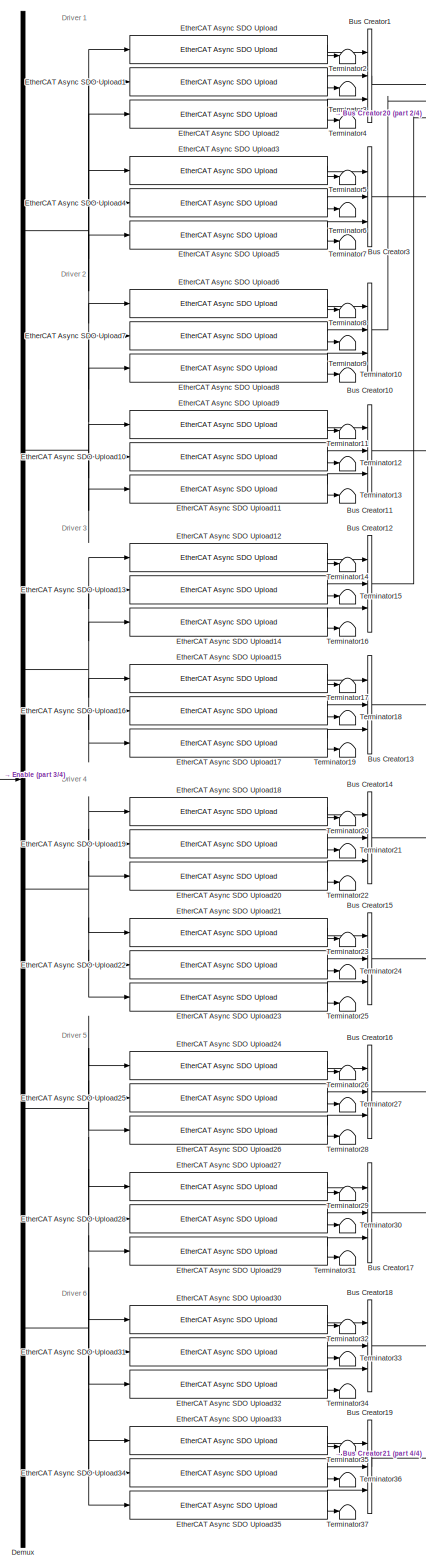
[diagram: Subsystem/Subsystem - part 1/4, left side, full height]
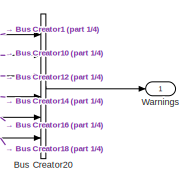
[diagram: Subsystem/Subsystem - part 2/4, top right region]
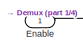
[diagram: Subsystem/Subsystem - part 3/4, middle left region]
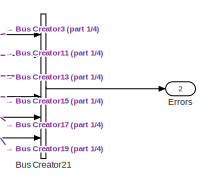
[diagram: Subsystem/Subsystem - part 4/4, bottom right region]
BLOCK [SubSystem] Subsystem/Subsystem
  Ports = [1, 2]
  RequestExecContextInheritance = off
BLOCK [BusCreator] Subsystem/Subsystem/Bus Creator1
  DisplayOption = bar
  InheritFromInputs = on
  Inputs = 3
  Ports = [3, 1]
BLOCK [BusCreator] Subsystem/Subsystem/Bus Creator10
  DisplayOption = bar
  InheritFromInputs = on
  Inputs = 3
  Ports = [3, 1]
BLOCK [BusCreator] Subsystem/Subsystem/Bus Creator11
  DisplayOption = bar
  InheritFromInputs = on
  Inputs = 3
  Ports = [3, 1]
BLOCK [BusCreator] Subsystem/Subsystem/Bus Creator12
  DisplayOption = bar
  InheritFromInputs = on
  Inputs = 3
  Ports = [3, 1]
BLOCK [BusCreator] Subsystem/Subsystem/Bus Creator13
  DisplayOption = bar
  InheritFromInputs = on
  Inputs = 3
  Ports = [3, 1]
BLOCK [BusCreator] Subsystem/Subsystem/Bus Creator14
  DisplayOption = bar
  InheritFromInputs = on
  Inputs = 3
  Ports = [3, 1]
BLOCK [BusCreator] Subsystem/Subsystem/Bus Creator15
  DisplayOption = bar
  InheritFromInputs = on
  Inputs = 3
  Ports = [3, 1]
BLOCK [BusCreator] Subsystem/Subsystem/Bus Creator16
  DisplayOption = bar
  InheritFromInputs = on
  Inputs = 3
  Ports = [3, 1]
BLOCK [BusCreator] Subsystem/Subsystem/Bus Creator17
  DisplayOption = bar
  InheritFromInputs = on
  Inputs = 3
  Ports = [3, 1]
BLOCK [BusCreator] Subsystem/Subsystem/Bus Creator18
  DisplayOption = bar
  InheritFromInputs = on
  Inputs = 3
  Ports = [3, 1]
BLOCK [BusCreator] Subsystem/Subsystem/Bus Creator19
  DisplayOption = bar
  InheritFromInputs = on
  Inputs = 3
  Ports = [3, 1]
BLOCK [BusCreator] Subsystem/Subsystem/Bus Creator20
  DisplayOption = bar
  InheritFromInputs = on
  Inputs = 6
  Ports = [6, 1]
BLOCK [BusCreator] Subsystem/Subsystem/Bus Creator21
  DisplayOption = bar
  InheritFromInputs = on
  Inputs = 6
  Ports = [6, 1]
BLOCK [BusCreator] Subsystem/Subsystem/Bus Creator3
  DisplayOption = bar
  InheritFromInputs = on
  Inputs = 3
  Ports = [3, 1]
BLOCK [Demux] Subsystem/Subsystem/Demux
  DisplayOption = bar
  Outputs = 6
  Ports = [1, 6]
BLOCK [Inport] Subsystem/Subsystem/Enable
  IconDisplay = Port number
BLOCK [Outport] Subsystem/Subsystem/Errors
  IconDisplay = Port number
  Port = 2
BLOCK [Reference] Subsystem/Subsystem/EtherCAT Async SDO Upload  REF=xpcethercatlib/EtherCAT Async SDO Upload
  Ports = [1, 2]
  SourceBlock = xpcethercatlib/EtherCAT Async SDO Upload
  SourceProductBaseCode = XP
  SourceProductName = Simulink Real-Time
  SourceType = ethercatasyncsdoupload
BLOCK [Reference] Subsystem/Subsystem/EtherCAT Async SDO Upload1  REF=xpcethercatlib/EtherCAT Async SDO Upload
  Ports = [1, 2]
  SourceBlock = xpcethercatlib/EtherCAT Async SDO Upload
  SourceProductBaseCode = XP
  SourceProductName = Simulink Real-Time
  SourceType = ethercatasyncsdoupload
BLOCK [Reference] Subsystem/Subsystem/EtherCAT Async SDO Upload10  REF=xpcethercatlib/EtherCAT Async SDO Upload
  Ports = [1, 2]
  SourceBlock = xpcethercatlib/EtherCAT Async SDO Upload
  SourceProductBaseCode = XP
  SourceProductName = Simulink Real-Time
  SourceType = ethercatasyncsdoupload
BLOCK [Reference] Subsystem/Subsystem/EtherCAT Async SDO Upload11  REF=xpcethercatlib/EtherCAT Async SDO Upload
  Ports = [1, 2]
  SourceBlock = xpcethercatlib/EtherCAT Async SDO Upload
  SourceProductBaseCode = XP
  SourceProductName = Simulink Real-Time
  SourceType = ethercatasyncsdoupload
BLOCK [Reference] Subsystem/Subsystem/EtherCAT Async SDO Upload12  REF=xpcethercatlib/EtherCAT Async SDO Upload
  Ports = [1, 2]
  SourceBlock = xpcethercatlib/EtherCAT Async SDO Upload
  SourceProductBaseCode = XP
  SourceProductName = Simulink Real-Time
  SourceType = ethercatasyncsdoupload
BLOCK [Reference] Subsystem/Subsystem/EtherCAT Async SDO Upload13  REF=xpcethercatlib/EtherCAT Async SDO Upload
  Ports = [1, 2]
  SourceBlock = xpcethercatlib/EtherCAT Async SDO Upload
  SourceProductBaseCode = XP
  SourceProductName = Simulink Real-Time
  SourceType = ethercatasyncsdoupload
BLOCK [Reference] Subsystem/Subsystem/EtherCAT Async SDO Upload14  REF=xpcethercatlib/EtherCAT Async SDO Upload
  Ports = [1, 2]
  SourceBlock = xpcethercatlib/EtherCAT Async SDO Upload
  SourceProductBaseCode = XP
  SourceProductName = Simulink Real-Time
  SourceType = ethercatasyncsdoupload
BLOCK [Reference] Subsystem/Subsystem/EtherCAT Async SDO Upload15  REF=xpcethercatlib/EtherCAT Async SDO Upload
  Ports = [1, 2]
  SourceBlock = xpcethercatlib/EtherCAT Async SDO Upload
  SourceProductBaseCode = XP
  SourceProductName = Simulink Real-Time
  SourceType = ethercatasyncsdoupload
BLOCK [Reference] Subsystem/Subsystem/EtherCAT Async SDO Upload16  REF=xpcethercatlib/EtherCAT Async SDO Upload
  Ports = [1, 2]
  SourceBlock = xpcethercatlib/EtherCAT Async SDO Upload
  SourceProductBaseCode = XP
  SourceProductName = Simulink Real-Time
  SourceType = ethercatasyncsdoupload
BLOCK [Reference] Subsystem/Subsystem/EtherCAT Async SDO Upload17  REF=xpcethercatlib/EtherCAT Async SDO Upload
  Ports = [1, 2]
  SourceBlock = xpcethercatlib/EtherCAT Async SDO Upload
  SourceProductBaseCode = XP
  SourceProductName = Simulink Real-Time
  SourceType = ethercatasyncsdoupload
BLOCK [Reference] Subsystem/Subsystem/EtherCAT Async SDO Upload18  REF=xpcethercatlib/EtherCAT Async SDO Upload
  Ports = [1, 2]
  SourceBlock = xpcethercatlib/EtherCAT Async SDO Upload
  SourceProductBaseCode = XP
  SourceProductName = Simulink Real-Time
  SourceType = ethercatasyncsdoupload
BLOCK [Reference] Subsystem/Subsystem/EtherCAT Async SDO Upload19  REF=xpcethercatlib/EtherCAT Async SDO Upload
  Ports = [1, 2]
  SourceBlock = xpcethercatlib/EtherCAT Async SDO Upload
  SourceProductBaseCode = XP
  SourceProductName = Simulink Real-Time
  SourceType = ethercatasyncsdoupload
BLOCK [Reference] Subsystem/Subsystem/EtherCAT Async SDO Upload2  REF=xpcethercatlib/EtherCAT Async SDO Upload
  Ports = [1, 2]
  SourceBlock = xpcethercatlib/EtherCAT Async SDO Upload
  SourceProductBaseCode = XP
  SourceProductName = Simulink Real-Time
  SourceType = ethercatasyncsdoupload
BLOCK [Reference] Subsystem/Subsystem/EtherCAT Async SDO Upload20  REF=xpcethercatlib/EtherCAT Async SDO Upload
  Ports = [1, 2]
  SourceBlock = xpcethercatlib/EtherCAT Async SDO Upload
  SourceProductBaseCode = XP
  SourceProductName = Simulink Real-Time
  SourceType = ethercatasyncsdoupload
BLOCK [Reference] Subsystem/Subsystem/EtherCAT Async SDO Upload21  REF=xpcethercatlib/EtherCAT Async SDO Upload
  Ports = [1, 2]
  SourceBlock = xpcethercatlib/EtherCAT Async SDO Upload
  SourceProductBaseCode = XP
  SourceProductName = Simulink Real-Time
  SourceType = ethercatasyncsdoupload
BLOCK [Reference] Subsystem/Subsystem/EtherCAT Async SDO Upload22  REF=xpcethercatlib/EtherCAT Async SDO Upload
  Ports = [1, 2]
  SourceBlock = xpcethercatlib/EtherCAT Async SDO Upload
  SourceProductBaseCode = XP
  SourceProductName = Simulink Real-Time
  SourceType = ethercatasyncsdoupload
BLOCK [Reference] Subsystem/Subsystem/EtherCAT Async SDO Upload23  REF=xpcethercatlib/EtherCAT Async SDO Upload
  Ports = [1, 2]
  SourceBlock = xpcethercatlib/EtherCAT Async SDO Upload
  SourceProductBaseCode = XP
  SourceProductName = Simulink Real-Time
  SourceType = ethercatasyncsdoupload
BLOCK [Reference] Subsystem/Subsystem/EtherCAT Async SDO Upload24  REF=xpcethercatlib/EtherCAT Async SDO Upload
  Ports = [1, 2]
  SourceBlock = xpcethercatlib/EtherCAT Async SDO Upload
  SourceProductBaseCode = XP
  SourceProductName = Simulink Real-Time
  SourceType = ethercatasyncsdoupload
BLOCK [Reference] Subsystem/Subsystem/EtherCAT Async SDO Upload25  REF=xpcethercatlib/EtherCAT Async SDO Upload
  Ports = [1, 2]
  SourceBlock = xpcethercatlib/EtherCAT Async SDO Upload
  SourceProductBaseCode = XP
  SourceProductName = Simulink Real-Time
  SourceType = ethercatasyncsdoupload
BLOCK [Reference] Subsystem/Subsystem/EtherCAT Async SDO Upload26  REF=xpcethercatlib/EtherCAT Async SDO Upload
  Ports = [1, 2]
  SourceBlock = xpcethercatlib/EtherCAT Async SDO Upload
  SourceProductBaseCode = XP
  SourceProductName = Simulink Real-Time
  SourceType = ethercatasyncsdoupload
BLOCK [Reference] Subsystem/Subsystem/EtherCAT Async SDO Upload27  REF=xpcethercatlib/EtherCAT Async SDO Upload
  Ports = [1, 2]
  SourceBlock = xpcethercatlib/EtherCAT Async SDO Upload
  SourceProductBaseCode = XP
  SourceProductName = Simulink Real-Time
  SourceType = ethercatasyncsdoupload
BLOCK [Reference] Subsystem/Subsystem/EtherCAT Async SDO Upload28  REF=xpcethercatlib/EtherCAT Async SDO Upload
  Ports = [1, 2]
  SourceBlock = xpcethercatlib/EtherCAT Async SDO Upload
  SourceProductBaseCode = XP
  SourceProductName = Simulink Real-Time
  SourceType = ethercatasyncsdoupload
BLOCK [Reference] Subsystem/Subsystem/EtherCAT Async SDO Upload29  REF=xpcethercatlib/EtherCAT Async SDO Upload
  Ports = [1, 2]
  SourceBlock = xpcethercatlib/EtherCAT Async SDO Upload
  SourceProductBaseCode = XP
  SourceProductName = Simulink Real-Time
  SourceType = ethercatasyncsdoupload
BLOCK [Reference] Subsystem/Subsystem/EtherCAT Async SDO Upload3  REF=xpcethercatlib/EtherCAT Async SDO Upload
  Ports = [1, 2]
  SourceBlock = xpcethercatlib/EtherCAT Async SDO Upload
  SourceProductBaseCode = XP
  SourceProductName = Simulink Real-Time
  SourceType = ethercatasyncsdoupload
BLOCK [Reference] Subsystem/Subsystem/EtherCAT Async SDO Upload30  REF=xpcethercatlib/EtherCAT Async SDO Upload
  Ports = [1, 2]
  SourceBlock = xpcethercatlib/EtherCAT Async SDO Upload
  SourceProductBaseCode = XP
  SourceProductName = Simulink Real-Time
  SourceType = ethercatasyncsdoupload
BLOCK [Reference] Subsystem/Subsystem/EtherCAT Async SDO Upload31  REF=xpcethercatlib/EtherCAT Async SDO Upload
  Ports = [1, 2]
  SourceBlock = xpcethercatlib/EtherCAT Async SDO Upload
  SourceProductBaseCode = XP
  SourceProductName = Simulink Real-Time
  SourceType = ethercatasyncsdoupload
BLOCK [Reference] Subsystem/Subsystem/EtherCAT Async SDO Upload32  REF=xpcethercatlib/EtherCAT Async SDO Upload
  Ports = [1, 2]
  SourceBlock = xpcethercatlib/EtherCAT Async SDO Upload
  SourceProductBaseCode = XP
  SourceProductName = Simulink Real-Time
  SourceType = ethercatasyncsdoupload
BLOCK [Reference] Subsystem/Subsystem/EtherCAT Async SDO Upload33  REF=xpcethercatlib/EtherCAT Async SDO Upload
  Ports = [1, 2]
  SourceBlock = xpcethercatlib/EtherCAT Async SDO Upload
  SourceProductBaseCode = XP
  SourceProductName = Simulink Real-Time
  SourceType = ethercatasyncsdoupload
BLOCK [Reference] Subsystem/Subsystem/EtherCAT Async SDO Upload34  REF=xpcethercatlib/EtherCAT Async SDO Upload
  Ports = [1, 2]
  SourceBlock = xpcethercatlib/EtherCAT Async SDO Upload
  SourceProductBaseCode = XP
  SourceProductName = Simulink Real-Time
  SourceType = ethercatasyncsdoupload
BLOCK [Reference] Subsystem/Subsystem/EtherCAT Async SDO Upload35  REF=xpcethercatlib/EtherCAT Async SDO Upload
  Ports = [1, 2]
  SourceBlock = xpcethercatlib/EtherCAT Async SDO Upload
  SourceProductBaseCode = XP
  SourceProductName = Simulink Real-Time
  SourceType = ethercatasyncsdoupload
BLOCK [Reference] Subsystem/Subsystem/EtherCAT Async SDO Upload4  REF=xpcethercatlib/EtherCAT Async SDO Upload
  Ports = [1, 2]
  SourceBlock = xpcethercatlib/EtherCAT Async SDO Upload
  SourceProductBaseCode = XP
  SourceProductName = Simulink Real-Time
  SourceType = ethercatasyncsdoupload
BLOCK [Reference] Subsystem/Subsystem/EtherCAT Async SDO Upload5  REF=xpcethercatlib/EtherCAT Async SDO Upload
  Ports = [1, 2]
  SourceBlock = xpcethercatlib/EtherCAT Async SDO Upload
  SourceProductBaseCode = XP
  SourceProductName = Simulink Real-Time
  SourceType = ethercatasyncsdoupload
BLOCK [Reference] Subsystem/Subsystem/EtherCAT Async SDO Upload6  REF=xpcethercatlib/EtherCAT Async SDO Upload
  Ports = [1, 2]
  SourceBlock = xpcethercatlib/EtherCAT Async SDO Upload
  SourceProductBaseCode = XP
  SourceProductName = Simulink Real-Time
  SourceType = ethercatasyncsdoupload
BLOCK [Reference] Subsystem/Subsystem/EtherCAT Async SDO Upload7  REF=xpcethercatlib/EtherCAT Async SDO Upload
  Ports = [1, 2]
  SourceBlock = xpcethercatlib/EtherCAT Async SDO Upload
  SourceProductBaseCode = XP
  SourceProductName = Simulink Real-Time
  SourceType = ethercatasyncsdoupload
BLOCK [Reference] Subsystem/Subsystem/EtherCAT Async SDO Upload8  REF=xpcethercatlib/EtherCAT Async SDO Upload
  Ports = [1, 2]
  SourceBlock = xpcethercatlib/EtherCAT Async SDO Upload
  SourceProductBaseCode = XP
  SourceProductName = Simulink Real-Time
  SourceType = ethercatasyncsdoupload
BLOCK [Reference] Subsystem/Subsystem/EtherCAT Async SDO Upload9  REF=xpcethercatlib/EtherCAT Async SDO Upload
  Ports = [1, 2]
  SourceBlock = xpcethercatlib/EtherCAT Async SDO Upload
  SourceProductBaseCode = XP
  SourceProductName = Simulink Real-Time
  SourceType = ethercatasyncsdoupload
BLOCK [Terminator] Subsystem/Subsystem/Terminator10
BLOCK [Terminator] Subsystem/Subsystem/Terminator11
BLOCK [Terminator] Subsystem/Subsystem/Terminator12
BLOCK [Terminator] Subsystem/Subsystem/Terminator13
BLOCK [Terminator] Subsystem/Subsystem/Terminator14
BLOCK [Terminator] Subsystem/Subsystem/Terminator15
BLOCK [Terminator] Subsystem/Subsystem/Terminator16
BLOCK [Terminator] Subsystem/Subsystem/Terminator17
BLOCK [Terminator] Subsystem/Subsystem/Terminator18
BLOCK [Terminator] Subsystem/Subsystem/Terminator19
BLOCK [Terminator] Subsystem/Subsystem/Terminator2
BLOCK [Terminator] Subsystem/Subsystem/Terminator20
BLOCK [Terminator] Subsystem/Subsystem/Terminator21
BLOCK [Terminator] Subsystem/Subsystem/Terminator22
BLOCK [Terminator] Subsystem/Subsystem/Terminator23
BLOCK [Terminator] Subsystem/Subsystem/Terminator24
BLOCK [Terminator] Subsystem/Subsystem/Terminator25
BLOCK [Terminator] Subsystem/Subsystem/Terminator26
BLOCK [Terminator] Subsystem/Subsystem/Terminator27
BLOCK [Terminator] Subsystem/Subsystem/Terminator28
BLOCK [Terminator] Subsystem/Subsystem/Terminator29
BLOCK [Terminator] Subsystem/Subsystem/Terminator3
BLOCK [Terminator] Subsystem/Subsystem/Terminator30
BLOCK [Terminator] Subsystem/Subsystem/Terminator31
BLOCK [Terminator] Subsystem/Subsystem/Terminator32
BLOCK [Terminator] Subsystem/Subsystem/Terminator33
BLOCK [Terminator] Subsystem/Subsystem/Terminator34
BLOCK [Terminator] Subsystem/Subsystem/Terminator35
BLOCK [Terminator] Subsystem/Subsystem/Terminator36
BLOCK [Terminator] Subsystem/Subsystem/Terminator37
BLOCK [Terminator] Subsystem/Subsystem/Terminator4
BLOCK [Terminator] Subsystem/Subsystem/Terminator5
BLOCK [Terminator] Subsystem/Subsystem/Terminator6
BLOCK [Terminator] Subsystem/Subsystem/Terminator7
BLOCK [Terminator] Subsystem/Subsystem/Terminator8
BLOCK [Terminator] Subsystem/Subsystem/Terminator9
BLOCK [Outport] Subsystem/Subsystem/Warnings
  IconDisplay = Port number
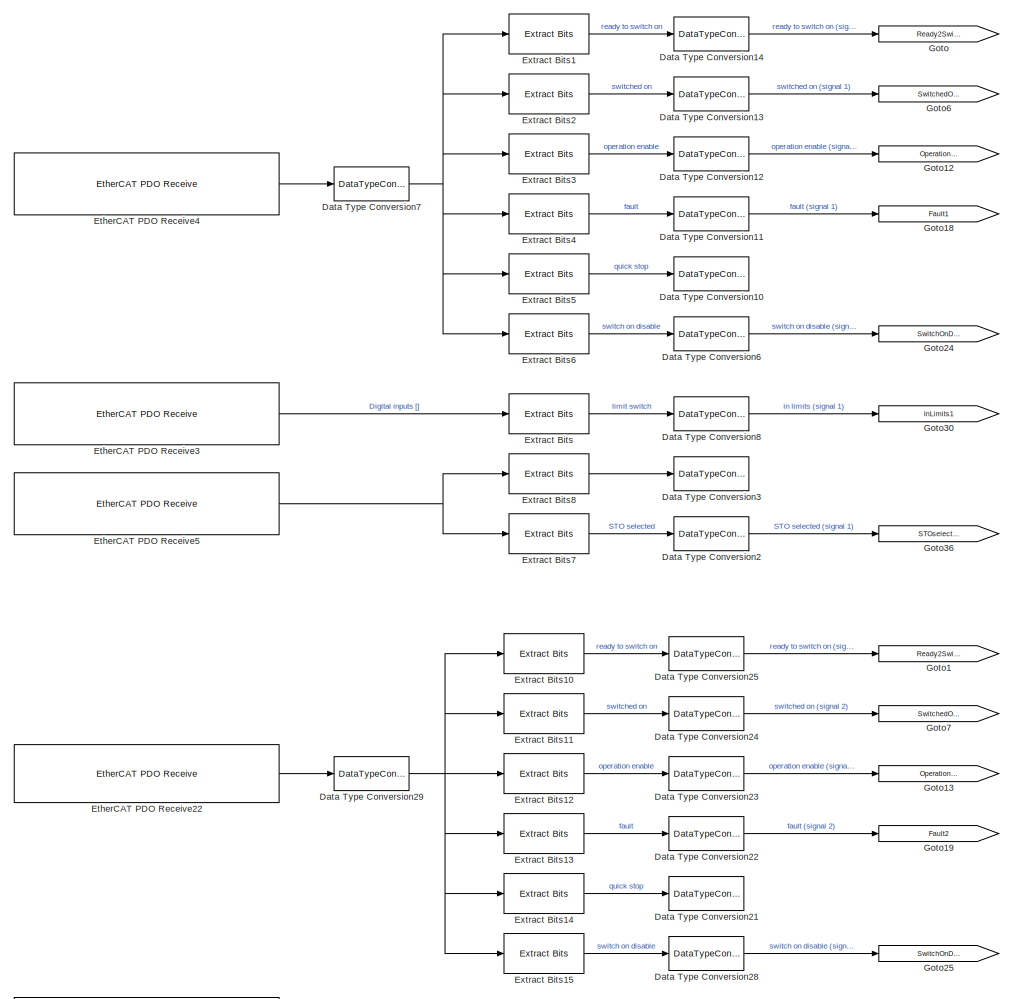
[diagram: Subsystem/Subsystem1 - part 1/6, top left region]
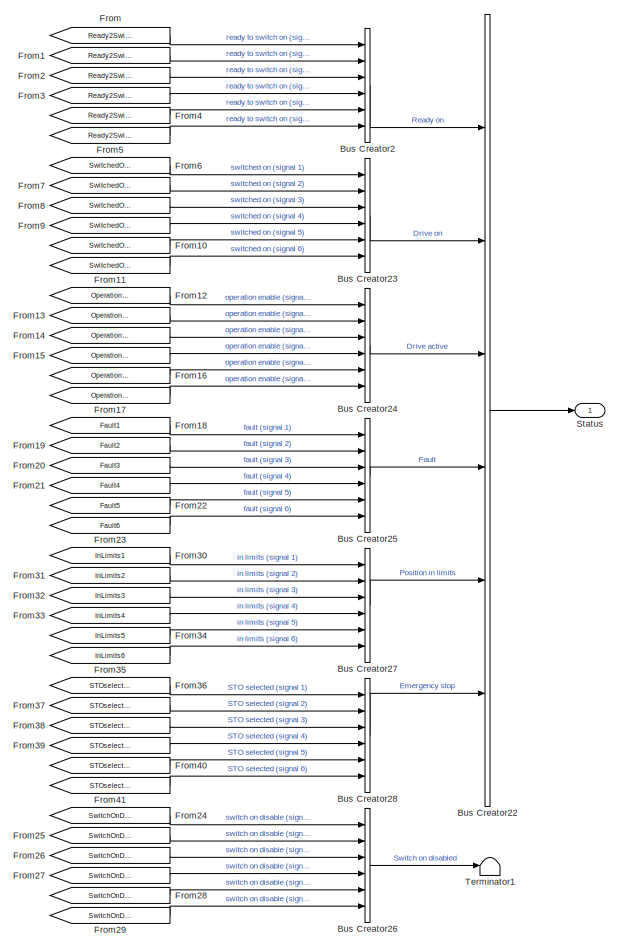
[diagram: Subsystem/Subsystem1 - part 2/6, top right region]
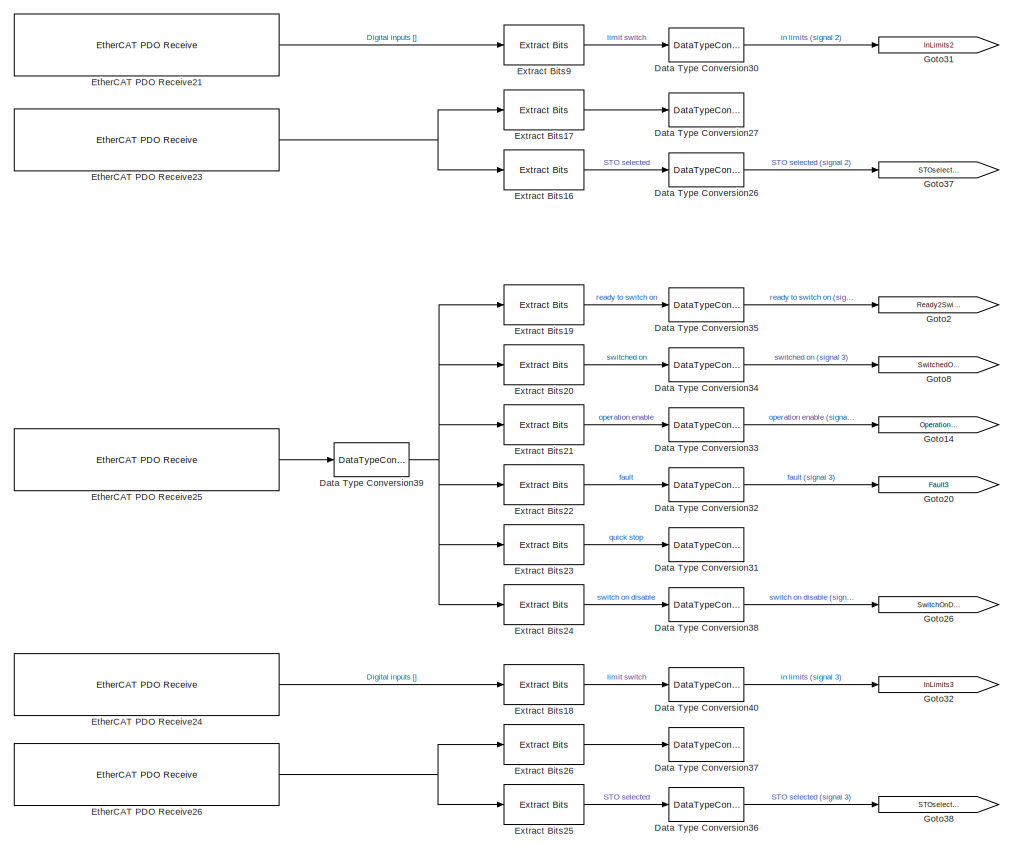
[diagram: Subsystem/Subsystem1 - part 3/6, middle left region]
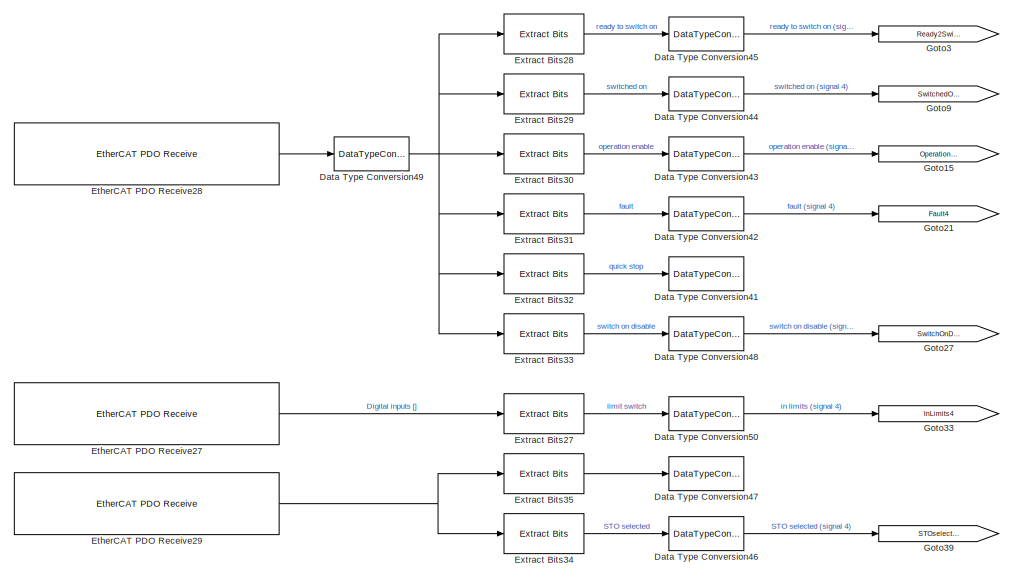
[diagram: Subsystem/Subsystem1 - part 4/6, middle left region]
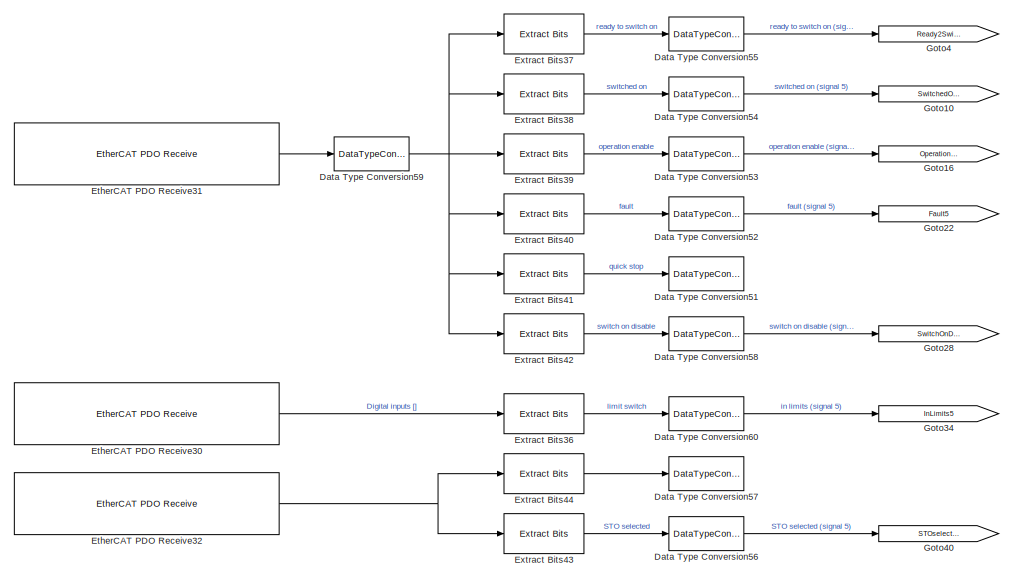
[diagram: Subsystem/Subsystem1 - part 5/6, bottom left region]
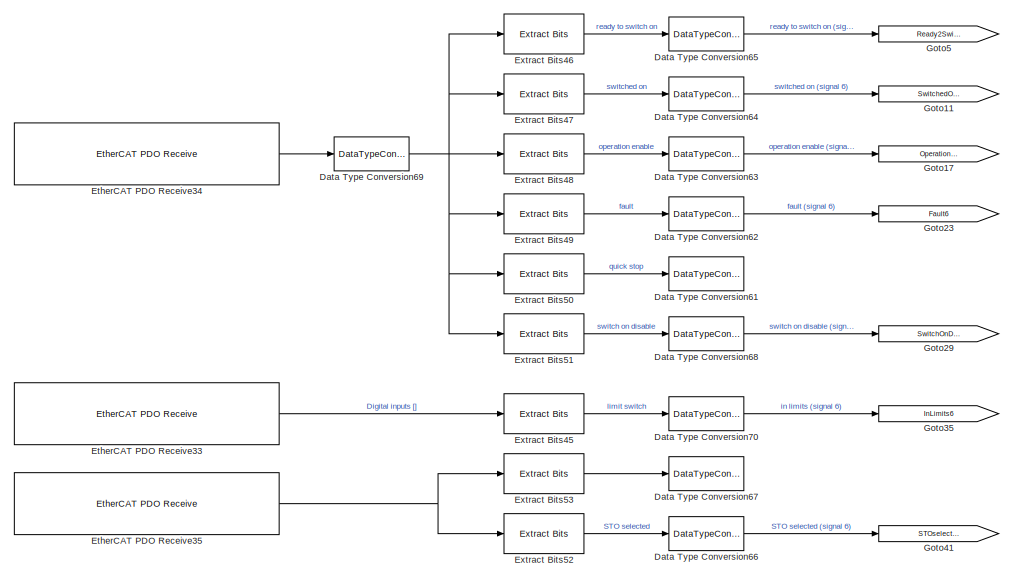
[diagram: Subsystem/Subsystem1 - part 6/6, bottom left region]
BLOCK [SubSystem] Subsystem/Subsystem1
  Ports = [0, 1]
  RequestExecContextInheritance = off
BLOCK [BusCreator] Subsystem/Subsystem1/Bus Creator2
  DisplayOption = bar
  InheritFromInputs = on
  Inputs = ready to switch on (signal 1),ready to switch on (signal 2),ready to switch on (signal 3),ready to switch on (signal 4),ready to switch on (signal 5),ready to switch on (signal 6)
  Ports = [6, 1]
BLOCK [BusCreator] Subsystem/Subsystem1/Bus Creator22
  DisplayOption = bar
  InheritFromInputs = on
  Inputs = Ready on,Drive on,Drive active,Fault,Position in limits,Emergency stop
  Ports = [6, 1]
BLOCK [BusCreator] Subsystem/Subsystem1/Bus Creator23
  DisplayOption = bar
  InheritFromInputs = on
  Inputs = switched on (signal 1),switched on (signal 2),switched on (signal 3),switched on (signal 4),switched on (signal 5),switched on (signal 6)
  Ports = [6, 1]
BLOCK [BusCreator] Subsystem/Subsystem1/Bus Creator24
  DisplayOption = bar
  InheritFromInputs = on
  Inputs = operation enable (signal 1),operation enable (signal 2),operation enable (signal 3),operation enable (signal 4),operation enable (signal 5),operation enable (signal 6)
  Ports = [6, 1]
BLOCK [BusCreator] Subsystem/Subsystem1/Bus Creator25
  DisplayOption = bar
  InheritFromInputs = on
  Inputs = fault (signal 1),fault (signal 2),fault (signal 3),fault (signal 4),fault (signal 5),fault (signal 6)
  Ports = [6, 1]
BLOCK [BusCreator] Subsystem/Subsystem1/Bus Creator26
  DisplayOption = bar
  InheritFromInputs = on
  Inputs = switch on disable (signal 1),switch on disable (signal 2),switch on disable (signal 3),switch on disable (signal 4),switch on disable (signal 5),switch on disable (signal 6)
  Ports = [6, 1]
BLOCK [BusCreator] Subsystem/Subsystem1/Bus Creator27
  DisplayOption = bar
  InheritFromInputs = on
  Inputs = in limits (signal 1),in limits (signal 2),in limits (signal 3),in limits (signal 4),in limits (signal 5),in limits (signal 6)
  Ports = [6, 1]
BLOCK [BusCreator] Subsystem/Subsystem1/Bus Creator28
  DisplayOption = bar
  InheritFromInputs = on
  Inputs = STO selected (signal 1),STO selected (signal 2),STO selected (signal 3),STO selected (signal 4),STO selected (signal 5),STO selected (signal 6)
  Ports = [6, 1]
BLOCK [DataTypeConversion] Subsystem/Subsystem1/Data Type Conversion10
  Commented = on
  OutDataTypeStr = boolean
  RndMeth = Floor
  SaturateOnIntegerOverflow = off
BLOCK [DataTypeConversion] Subsystem/Subsystem1/Data Type Conversion11
  OutDataTypeStr = boolean
  RndMeth = Floor
  SaturateOnIntegerOverflow = off
BLOCK [DataTypeConversion] Subsystem/Subsystem1/Data Type Conversion12
  OutDataTypeStr = boolean
  RndMeth = Floor
  SaturateOnIntegerOverflow = off
BLOCK [DataTypeConversion] Subsystem/Subsystem1/Data Type Conversion13
  OutDataTypeStr = boolean
  RndMeth = Floor
  SaturateOnIntegerOverflow = off
BLOCK [DataTypeConversion] Subsystem/Subsystem1/Data Type Conversion14
  OutDataTypeStr = boolean
  RndMeth = Floor
  SaturateOnIntegerOverflow = off
BLOCK [DataTypeConversion] Subsystem/Subsystem1/Data Type Conversion2
  OutDataTypeStr = boolean
  RndMeth = Floor
  SaturateOnIntegerOverflow = off
BLOCK [DataTypeConversion] Subsystem/Subsystem1/Data Type Conversion21
  Commented = on
  OutDataTypeStr = boolean
  RndMeth = Floor
  SaturateOnIntegerOverflow = off
BLOCK [DataTypeConversion] Subsystem/Subsystem1/Data Type Conversion22
  OutDataTypeStr = boolean
  RndMeth = Floor
  SaturateOnIntegerOverflow = off
BLOCK [DataTypeConversion] Subsystem/Subsystem1/Data Type Conversion23
  OutDataTypeStr = boolean
  RndMeth = Floor
  SaturateOnIntegerOverflow = off
BLOCK [DataTypeConversion] Subsystem/Subsystem1/Data Type Conversion24
  OutDataTypeStr = boolean
  RndMeth = Floor
  SaturateOnIntegerOverflow = off
BLOCK [DataTypeConversion] Subsystem/Subsystem1/Data Type Conversion25
  OutDataTypeStr = boolean
  RndMeth = Floor
  SaturateOnIntegerOverflow = off
BLOCK [DataTypeConversion] Subsystem/Subsystem1/Data Type Conversion26
  OutDataTypeStr = boolean
  RndMeth = Floor
  SaturateOnIntegerOverflow = off
BLOCK [DataTypeConversion] Subsystem/Subsystem1/Data Type Conversion27
  Commented = on
  OutDataTypeStr = boolean
  RndMeth = Floor
  SaturateOnIntegerOverflow = off
BLOCK [DataTypeConversion] Subsystem/Subsystem1/Data Type Conversion28
  OutDataTypeStr = boolean
  RndMeth = Floor
  SaturateOnIntegerOverflow = off
BLOCK [DataTypeConversion] Subsystem/Subsystem1/Data Type Conversion29
  OutDataTypeStr = uint16
  RndMeth = Round
  SaturateOnIntegerOverflow = off
BLOCK [DataTypeConversion] Subsystem/Subsystem1/Data Type Conversion3
  Commented = on
  OutDataTypeStr = boolean
  RndMeth = Floor
  SaturateOnIntegerOverflow = off
BLOCK [DataTypeConversion] Subsystem/Subsystem1/Data Type Conversion30
  OutDataTypeStr = boolean
  RndMeth = Floor
  SaturateOnIntegerOverflow = off
BLOCK [DataTypeConversion] Subsystem/Subsystem1/Data Type Conversion31
  Commented = on
  OutDataTypeStr = boolean
  RndMeth = Floor
  SaturateOnIntegerOverflow = off
BLOCK [DataTypeConversion] Subsystem/Subsystem1/Data Type Conversion32
  OutDataTypeStr = boolean
  RndMeth = Floor
  SaturateOnIntegerOverflow = off
BLOCK [DataTypeConversion] Subsystem/Subsystem1/Data Type Conversion33
  OutDataTypeStr = boolean
  RndMeth = Floor
  SaturateOnIntegerOverflow = off
BLOCK [DataTypeConversion] Subsystem/Subsystem1/Data Type Conversion34
  OutDataTypeStr = boolean
  RndMeth = Floor
  SaturateOnIntegerOverflow = off
BLOCK [DataTypeConversion] Subsystem/Subsystem1/Data Type Conversion35
  OutDataTypeStr = boolean
  RndMeth = Floor
  SaturateOnIntegerOverflow = off
BLOCK [DataTypeConversion] Subsystem/Subsystem1/Data Type Conversion36
  OutDataTypeStr = boolean
  RndMeth = Floor
  SaturateOnIntegerOverflow = off
BLOCK [DataTypeConversion] Subsystem/Subsystem1/Data Type Conversion37
  Commented = on
  OutDataTypeStr = boolean
  RndMeth = Floor
  SaturateOnIntegerOverflow = off
BLOCK [DataTypeConversion] Subsystem/Subsystem1/Data Type Conversion38
  OutDataTypeStr = boolean
  RndMeth = Floor
  SaturateOnIntegerOverflow = off
BLOCK [DataTypeConversion] Subsystem/Subsystem1/Data Type Conversion39
  OutDataTypeStr = uint16
  RndMeth = Round
  SaturateOnIntegerOverflow = off
BLOCK [DataTypeConversion] Subsystem/Subsystem1/Data Type Conversion40
  OutDataTypeStr = boolean
  RndMeth = Floor
  SaturateOnIntegerOverflow = off
BLOCK [DataTypeConversion] Subsystem/Subsystem1/Data Type Conversion41
  Commented = on
  OutDataTypeStr = boolean
  RndMeth = Floor
  SaturateOnIntegerOverflow = off
BLOCK [DataTypeConversion] Subsystem/Subsystem1/Data Type Conversion42
  OutDataTypeStr = boolean
  RndMeth = Floor
  SaturateOnIntegerOverflow = off
BLOCK [DataTypeConversion] Subsystem/Subsystem1/Data Type Conversion43
  OutDataTypeStr = boolean
  RndMeth = Floor
  SaturateOnIntegerOverflow = off
BLOCK [DataTypeConversion] Subsystem/Subsystem1/Data Type Conversion44
  OutDataTypeStr = boolean
  RndMeth = Floor
  SaturateOnIntegerOverflow = off
BLOCK [DataTypeConversion] Subsystem/Subsystem1/Data Type Conversion45
  OutDataTypeStr = boolean
  RndMeth = Floor
  SaturateOnIntegerOverflow = off
BLOCK [DataTypeConversion] Subsystem/Subsystem1/Data Type Conversion46
  OutDataTypeStr = boolean
  RndMeth = Floor
  SaturateOnIntegerOverflow = off
BLOCK [DataTypeConversion] Subsystem/Subsystem1/Data Type Conversion47
  Commented = on
  OutDataTypeStr = boolean
  RndMeth = Floor
  SaturateOnIntegerOverflow = off
BLOCK [DataTypeConversion] Subsystem/Subsystem1/Data Type Conversion48
  OutDataTypeStr = boolean
  RndMeth = Floor
  SaturateOnIntegerOverflow = off
BLOCK [DataTypeConversion] Subsystem/Subsystem1/Data Type Conversion49
  OutDataTypeStr = uint16
  RndMeth = Round
  SaturateOnIntegerOverflow = off
BLOCK [DataTypeConversion] Subsystem/Subsystem1/Data Type Conversion50
  OutDataTypeStr = boolean
  RndMeth = Floor
  SaturateOnIntegerOverflow = off
BLOCK [DataTypeConversion] Subsystem/Subsystem1/Data Type Conversion51
  Commented = on
  OutDataTypeStr = boolean
  RndMeth = Floor
  SaturateOnIntegerOverflow = off
BLOCK [DataTypeConversion] Subsystem/Subsystem1/Data Type Conversion52
  OutDataTypeStr = boolean
  RndMeth = Floor
  SaturateOnIntegerOverflow = off
BLOCK [DataTypeConversion] Subsystem/Subsystem1/Data Type Conversion53
  OutDataTypeStr = boolean
  RndMeth = Floor
  SaturateOnIntegerOverflow = off
BLOCK [DataTypeConversion] Subsystem/Subsystem1/Data Type Conversion54
  OutDataTypeStr = boolean
  RndMeth = Floor
  SaturateOnIntegerOverflow = off
BLOCK [DataTypeConversion] Subsystem/Subsystem1/Data Type Conversion55
  OutDataTypeStr = boolean
  RndMeth = Floor
  SaturateOnIntegerOverflow = off
BLOCK [DataTypeConversion] Subsystem/Subsystem1/Data Type Conversion56
  OutDataTypeStr = boolean
  RndMeth = Floor
  SaturateOnIntegerOverflow = off
BLOCK [DataTypeConversion] Subsystem/Subsystem1/Data Type Conversion57
  Commented = on
  OutDataTypeStr = boolean
  RndMeth = Floor
  SaturateOnIntegerOverflow = off
BLOCK [DataTypeConversion] Subsystem/Subsystem1/Data Type Conversion58
  OutDataTypeStr = boolean
  RndMeth = Floor
  SaturateOnIntegerOverflow = off
BLOCK [DataTypeConversion] Subsystem/Subsystem1/Data Type Conversion59
  OutDataTypeStr = uint16
  RndMeth = Round
  SaturateOnIntegerOverflow = off
BLOCK [DataTypeConversion] Subsystem/Subsystem1/Data Type Conversion6
  OutDataTypeStr = boolean
  RndMeth = Floor
  SaturateOnIntegerOverflow = off
BLOCK [DataTypeConversion] Subsystem/Subsystem1/Data Type Conversion60
  OutDataTypeStr = boolean
  RndMeth = Floor
  SaturateOnIntegerOverflow = off
BLOCK [DataTypeConversion] Subsystem/Subsystem1/Data Type Conversion61
  Commented = on
  OutDataTypeStr = boolean
  RndMeth = Floor
  SaturateOnIntegerOverflow = off
BLOCK [DataTypeConversion] Subsystem/Subsystem1/Data Type Conversion62
  OutDataTypeStr = boolean
  RndMeth = Floor
  SaturateOnIntegerOverflow = off
BLOCK [DataTypeConversion] Subsystem/Subsystem1/Data Type Conversion63
  OutDataTypeStr = boolean
  RndMeth = Floor
  SaturateOnIntegerOverflow = off
BLOCK [DataTypeConversion] Subsystem/Subsystem1/Data Type Conversion64
  OutDataTypeStr = boolean
  RndMeth = Floor
  SaturateOnIntegerOverflow = off
BLOCK [DataTypeConversion] Subsystem/Subsystem1/Data Type Conversion65
  OutDataTypeStr = boolean
  RndMeth = Floor
  SaturateOnIntegerOverflow = off
BLOCK [DataTypeConversion] Subsystem/Subsystem1/Data Type Conversion66
  OutDataTypeStr = boolean
  RndMeth = Floor
  SaturateOnIntegerOverflow = off
BLOCK [DataTypeConversion] Subsystem/Subsystem1/Data Type Conversion67
  Commented = on
  OutDataTypeStr = boolean
  RndMeth = Floor
  SaturateOnIntegerOverflow = off
BLOCK [DataTypeConversion] Subsystem/Subsystem1/Data Type Conversion68
  OutDataTypeStr = boolean
  RndMeth = Floor
  SaturateOnIntegerOverflow = off
BLOCK [DataTypeConversion] Subsystem/Subsystem1/Data Type Conversion69
  OutDataTypeStr = uint16
  RndMeth = Round
  SaturateOnIntegerOverflow = off
BLOCK [DataTypeConversion] Subsystem/Subsystem1/Data Type Conversion7
  OutDataTypeStr = uint16
  RndMeth = Round
  SaturateOnIntegerOverflow = off
BLOCK [DataTypeConversion] Subsystem/Subsystem1/Data Type Conversion70
  OutDataTypeStr = boolean
  RndMeth = Floor
  SaturateOnIntegerOverflow = off
BLOCK [DataTypeConversion] Subsystem/Subsystem1/Data Type Conversion8
  OutDataTypeStr = boolean
  RndMeth = Floor
  SaturateOnIntegerOverflow = off
BLOCK [Reference] Subsystem/Subsystem1/EtherCAT PDO Receive21  REF=xpcethercatlib/EtherCAT PDO Receive
  Ports = [0, 1]
  Priority = 2
  SourceBlock = xpcethercatlib/EtherCAT PDO Receive
  SourceProductBaseCode = XP
  SourceProductName = Simulink Real-Time
  SourceType = xpcethercat_rx_var
BLOCK [Reference] Subsystem/Subsystem1/EtherCAT PDO Receive22  REF=xpcethercatlib/EtherCAT PDO Receive
  Ports = [0, 1]
  Priority = 2
  SourceBlock = xpcethercatlib/EtherCAT PDO Receive
  SourceProductBaseCode = XP
  SourceProductName = Simulink Real-Time
  SourceType = xpcethercat_rx_var
BLOCK [Reference] Subsystem/Subsystem1/EtherCAT PDO Receive23  REF=xpcethercatlib/EtherCAT PDO Receive
  Ports = [0, 1]
  Priority = 2
  SourceBlock = xpcethercatlib/EtherCAT PDO Receive
  SourceProductBaseCode = XP
  SourceProductName = Simulink Real-Time
  SourceType = xpcethercat_rx_var
BLOCK [Reference] Subsystem/Subsystem1/EtherCAT PDO Receive24  REF=xpcethercatlib/EtherCAT PDO Receive
  Ports = [0, 1]
  Priority = 2
  SourceBlock = xpcethercatlib/EtherCAT PDO Receive
  SourceProductBaseCode = XP
  SourceProductName = Simulink Real-Time
  SourceType = xpcethercat_rx_var
BLOCK [Reference] Subsystem/Subsystem1/EtherCAT PDO Receive25  REF=xpcethercatlib/EtherCAT PDO Receive
  Ports = [0, 1]
  Priority = 2
  SourceBlock = xpcethercatlib/EtherCAT PDO Receive
  SourceProductBaseCode = XP
  SourceProductName = Simulink Real-Time
  SourceType = xpcethercat_rx_var
BLOCK [Reference] Subsystem/Subsystem1/EtherCAT PDO Receive26  REF=xpcethercatlib/EtherCAT PDO Receive
  Ports = [0, 1]
  Priority = 2
  SourceBlock = xpcethercatlib/EtherCAT PDO Receive
  SourceProductBaseCode = XP
  SourceProductName = Simulink Real-Time
  SourceType = xpcethercat_rx_var
BLOCK [Reference] Subsystem/Subsystem1/EtherCAT PDO Receive27  REF=xpcethercatlib/EtherCAT PDO Receive
  Ports = [0, 1]
  Priority = 2
  SourceBlock = xpcethercatlib/EtherCAT PDO Receive
  SourceProductBaseCode = XP
  SourceProductName = Simulink Real-Time
  SourceType = xpcethercat_rx_var
BLOCK [Reference] Subsystem/Subsystem1/EtherCAT PDO Receive28  REF=xpcethercatlib/EtherCAT PDO Receive
  Ports = [0, 1]
  Priority = 2
  SourceBlock = xpcethercatlib/EtherCAT PDO Receive
  SourceProductBaseCode = XP
  SourceProductName = Simulink Real-Time
  SourceType = xpcethercat_rx_var
BLOCK [Reference] Subsystem/Subsystem1/EtherCAT PDO Receive29  REF=xpcethercatlib/EtherCAT PDO Receive
  Ports = [0, 1]
  Priority = 2
  SourceBlock = xpcethercatlib/EtherCAT PDO Receive
  SourceProductBaseCode = XP
  SourceProductName = Simulink Real-Time
  SourceType = xpcethercat_rx_var
BLOCK [Reference] Subsystem/Subsystem1/EtherCAT PDO Receive3  REF=xpcethercatlib/EtherCAT PDO Receive
  Ports = [0, 1]
  Priority = 2
  SourceBlock = xpcethercatlib/EtherCAT PDO Receive
  SourceProductBaseCode = XP
  SourceProductName = Simulink Real-Time
  SourceType = xpcethercat_rx_var
BLOCK [Reference] Subsystem/Subsystem1/EtherCAT PDO Receive30  REF=xpcethercatlib/EtherCAT PDO Receive
  Ports = [0, 1]
  Priority = 2
  SourceBlock = xpcethercatlib/EtherCAT PDO Receive
  SourceProductBaseCode = XP
  SourceProductName = Simulink Real-Time
  SourceType = xpcethercat_rx_var
BLOCK [Reference] Subsystem/Subsystem1/EtherCAT PDO Receive31  REF=xpcethercatlib/EtherCAT PDO Receive
  Ports = [0, 1]
  Priority = 2
  SourceBlock = xpcethercatlib/EtherCAT PDO Receive
  SourceProductBaseCode = XP
  SourceProductName = Simulink Real-Time
  SourceType = xpcethercat_rx_var
BLOCK [Reference] Subsystem/Subsystem1/EtherCAT PDO Receive32  REF=xpcethercatlib/EtherCAT PDO Receive
  Ports = [0, 1]
  Priority = 2
  SourceBlock = xpcethercatlib/EtherCAT PDO Receive
  SourceProductBaseCode = XP
  SourceProductName = Simulink Real-Time
  SourceType = xpcethercat_rx_var
BLOCK [Reference] Subsystem/Subsystem1/EtherCAT PDO Receive33  REF=xpcethercatlib/EtherCAT PDO Receive
  Ports = [0, 1]
  Priority = 2
  SourceBlock = xpcethercatlib/EtherCAT PDO Receive
  SourceProductBaseCode = XP
  SourceProductName = Simulink Real-Time
  SourceType = xpcethercat_rx_var
BLOCK [Reference] Subsystem/Subsystem1/EtherCAT PDO Receive34  REF=xpcethercatlib/EtherCAT PDO Receive
  Ports = [0, 1]
  Priority = 2
  SourceBlock = xpcethercatlib/EtherCAT PDO Receive
  SourceProductBaseCode = XP
  SourceProductName = Simulink Real-Time
  SourceType = xpcethercat_rx_var
BLOCK [Reference] Subsystem/Subsystem1/EtherCAT PDO Receive35  REF=xpcethercatlib/EtherCAT PDO Receive
  Ports = [0, 1]
  Priority = 2
  SourceBlock = xpcethercatlib/EtherCAT PDO Receive
  SourceProductBaseCode = XP
  SourceProductName = Simulink Real-Time
  SourceType = xpcethercat_rx_var
BLOCK [Reference] Subsystem/Subsystem1/EtherCAT PDO Receive4  REF=xpcethercatlib/EtherCAT PDO Receive
  Ports = [0, 1]
  Priority = 2
  SourceBlock = xpcethercatlib/EtherCAT PDO Receive
  SourceProductBaseCode = XP
  SourceProductName = Simulink Real-Time
  SourceType = xpcethercat_rx_var
BLOCK [Reference] Subsystem/Subsystem1/EtherCAT PDO Receive5  REF=xpcethercatlib/EtherCAT PDO Receive
  Ports = [0, 1]
  Priority = 2
  SourceBlock = xpcethercatlib/EtherCAT PDO Receive
  SourceProductBaseCode = XP
  SourceProductName = Simulink Real-Time
  SourceType = xpcethercat_rx_var
BLOCK [Reference] Subsystem/Subsystem1/Extract Bits  REF=simulink/Logic and Bit
Operations/Extract Bits
  Ports = [1, 1]
  SourceBlock = simulink/Logic and Bit\nOperations/Extract Bits
  SourceProductBaseCode = SL
  SourceProductName = Simulink
  SourceType = Extract Bits
BLOCK [Reference] Subsystem/Subsystem1/Extract Bits1  REF=simulink/Logic and Bit
Operations/Extract Bits
  Ports = [1, 1]
  SourceBlock = simulink/Logic and Bit\nOperations/Extract Bits
  SourceProductBaseCode = SL
  SourceProductName = Simulink
  SourceType = Extract Bits
BLOCK [Reference] Subsystem/Subsystem1/Extract Bits10  REF=simulink/Logic and Bit
Operations/Extract Bits
  Ports = [1, 1]
  SourceBlock = simulink/Logic and Bit\nOperations/Extract Bits
  SourceProductBaseCode = SL
  SourceProductName = Simulink
  SourceType = Extract Bits
BLOCK [Reference] Subsystem/Subsystem1/Extract Bits11  REF=simulink/Logic and Bit
Operations/Extract Bits
  Ports = [1, 1]
  SourceBlock = simulink/Logic and Bit\nOperations/Extract Bits
  SourceProductBaseCode = SL
  SourceProductName = Simulink
  SourceType = Extract Bits
BLOCK [Reference] Subsystem/Subsystem1/Extract Bits12  REF=simulink/Logic and Bit
Operations/Extract Bits
  Ports = [1, 1]
  SourceBlock = simulink/Logic and Bit\nOperations/Extract Bits
  SourceProductBaseCode = SL
  SourceProductName = Simulink
  SourceType = Extract Bits
BLOCK [Reference] Subsystem/Subsystem1/Extract Bits13  REF=simulink/Logic and Bit
Operations/Extract Bits
  Ports = [1, 1]
  SourceBlock = simulink/Logic and Bit\nOperations/Extract Bits
  SourceProductBaseCode = SL
  SourceProductName = Simulink
  SourceType = Extract Bits
BLOCK [Reference] Subsystem/Subsystem1/Extract Bits14  REF=simulink/Logic and Bit
Operations/Extract Bits
  Commented = on
  Ports = [1, 1]
  SourceBlock = simulink/Logic and Bit\nOperations/Extract Bits
  SourceProductBaseCode = SL
  SourceProductName = Simulink
  SourceType = Extract Bits
BLOCK [Reference] Subsystem/Subsystem1/Extract Bits15  REF=simulink/Logic and Bit
Operations/Extract Bits
  Ports = [1, 1]
  SourceBlock = simulink/Logic and Bit\nOperations/Extract Bits
  SourceProductBaseCode = SL
  SourceProductName = Simulink
  SourceType = Extract Bits
BLOCK [Reference] Subsystem/Subsystem1/Extract Bits16  REF=simulink/Logic and Bit
Operations/Extract Bits
  Ports = [1, 1]
  SourceBlock = simulink/Logic and Bit\nOperations/Extract Bits
  SourceProductBaseCode = SL
  SourceProductName = Simulink
  SourceType = Extract Bits
BLOCK [Reference] Subsystem/Subsystem1/Extract Bits17  REF=simulink/Logic and Bit
Operations/Extract Bits
  Commented = on
  Ports = [1, 1]
  SourceBlock = simulink/Logic and Bit\nOperations/Extract Bits
  SourceProductBaseCode = SL
  SourceProductName = Simulink
  SourceType = Extract Bits
BLOCK [Reference] Subsystem/Subsystem1/Extract Bits18  REF=simulink/Logic and Bit
Operations/Extract Bits
  Ports = [1, 1]
  SourceBlock = simulink/Logic and Bit\nOperations/Extract Bits
  SourceProductBaseCode = SL
  SourceProductName = Simulink
  SourceType = Extract Bits
BLOCK [Reference] Subsystem/Subsystem1/Extract Bits19  REF=simulink/Logic and Bit
Operations/Extract Bits
  Ports = [1, 1]
  SourceBlock = simulink/Logic and Bit\nOperations/Extract Bits
  SourceProductBaseCode = SL
  SourceProductName = Simulink
  SourceType = Extract Bits
BLOCK [Reference] Subsystem/Subsystem1/Extract Bits2  REF=simulink/Logic and Bit
Operations/Extract Bits
  Ports = [1, 1]
  SourceBlock = simulink/Logic and Bit\nOperations/Extract Bits
  SourceProductBaseCode = SL
  SourceProductName = Simulink
  SourceType = Extract Bits
BLOCK [Reference] Subsystem/Subsystem1/Extract Bits20  REF=simulink/Logic and Bit
Operations/Extract Bits
  Ports = [1, 1]
  SourceBlock = simulink/Logic and Bit\nOperations/Extract Bits
  SourceProductBaseCode = SL
  SourceProductName = Simulink
  SourceType = Extract Bits
BLOCK [Reference] Subsystem/Subsystem1/Extract Bits21  REF=simulink/Logic and Bit
Operations/Extract Bits
  Ports = [1, 1]
  SourceBlock = simulink/Logic and Bit\nOperations/Extract Bits
  SourceProductBaseCode = SL
  SourceProductName = Simulink
  SourceType = Extract Bits
BLOCK [Reference] Subsystem/Subsystem1/Extract Bits22  REF=simulink/Logic and Bit
Operations/Extract Bits
  Ports = [1, 1]
  SourceBlock = simulink/Logic and Bit\nOperations/Extract Bits
  SourceProductBaseCode = SL
  SourceProductName = Simulink
  SourceType = Extract Bits
BLOCK [Reference] Subsystem/Subsystem1/Extract Bits23  REF=simulink/Logic and Bit
Operations/Extract Bits
  Commented = on
  Ports = [1, 1]
  SourceBlock = simulink/Logic and Bit\nOperations/Extract Bits
  SourceProductBaseCode = SL
  SourceProductName = Simulink
  SourceType = Extract Bits
BLOCK [Reference] Subsystem/Subsystem1/Extract Bits24  REF=simulink/Logic and Bit
Operations/Extract Bits
  Ports = [1, 1]
  SourceBlock = simulink/Logic and Bit\nOperations/Extract Bits
  SourceProductBaseCode = SL
  SourceProductName = Simulink
  SourceType = Extract Bits
BLOCK [Reference] Subsystem/Subsystem1/Extract Bits25  REF=simulink/Logic and Bit
Operations/Extract Bits
  Ports = [1, 1]
  SourceBlock = simulink/Logic and Bit\nOperations/Extract Bits
  SourceProductBaseCode = SL
  SourceProductName = Simulink
  SourceType = Extract Bits
BLOCK [Reference] Subsystem/Subsystem1/Extract Bits26  REF=simulink/Logic and Bit
Operations/Extract Bits
  Commented = on
  Ports = [1, 1]
  SourceBlock = simulink/Logic and Bit\nOperations/Extract Bits
  SourceProductBaseCode = SL
  SourceProductName = Simulink
  SourceType = Extract Bits
BLOCK [Reference] Subsystem/Subsystem1/Extract Bits27  REF=simulink/Logic and Bit
Operations/Extract Bits
  Ports = [1, 1]
  SourceBlock = simulink/Logic and Bit\nOperations/Extract Bits
  SourceProductBaseCode = SL
  SourceProductName = Simulink
  SourceType = Extract Bits
BLOCK [Reference] Subsystem/Subsystem1/Extract Bits28  REF=simulink/Logic and Bit
Operations/Extract Bits
  Ports = [1, 1]
  SourceBlock = simulink/Logic and Bit\nOperations/Extract Bits
  SourceProductBaseCode = SL
  SourceProductName = Simulink
  SourceType = Extract Bits
BLOCK [Reference] Subsystem/Subsystem1/Extract Bits29  REF=simulink/Logic and Bit
Operations/Extract Bits
  Ports = [1, 1]
  SourceBlock = simulink/Logic and Bit\nOperations/Extract Bits
  SourceProductBaseCode = SL
  SourceProductName = Simulink
  SourceType = Extract Bits
BLOCK [Reference] Subsystem/Subsystem1/Extract Bits3  REF=simulink/Logic and Bit
Operations/Extract Bits
  Ports = [1, 1]
  SourceBlock = simulink/Logic and Bit\nOperations/Extract Bits
  SourceProductBaseCode = SL
  SourceProductName = Simulink
  SourceType = Extract Bits
BLOCK [Reference] Subsystem/Subsystem1/Extract Bits30  REF=simulink/Logic and Bit
Operations/Extract Bits
  Ports = [1, 1]
  SourceBlock = simulink/Logic and Bit\nOperations/Extract Bits
  SourceProductBaseCode = SL
  SourceProductName = Simulink
  SourceType = Extract Bits
BLOCK [Reference] Subsystem/Subsystem1/Extract Bits31  REF=simulink/Logic and Bit
Operations/Extract Bits
  Ports = [1, 1]
  SourceBlock = simulink/Logic and Bit\nOperations/Extract Bits
  SourceProductBaseCode = SL
  SourceProductName = Simulink
  SourceType = Extract Bits
BLOCK [Reference] Subsystem/Subsystem1/Extract Bits32  REF=simulink/Logic and Bit
Operations/Extract Bits
  Commented = on
  Ports = [1, 1]
  SourceBlock = simulink/Logic and Bit\nOperations/Extract Bits
  SourceProductBaseCode = SL
  SourceProductName = Simulink
  SourceType = Extract Bits
BLOCK [Reference] Subsystem/Subsystem1/Extract Bits33  REF=simulink/Logic and Bit
Operations/Extract Bits
  Ports = [1, 1]
  SourceBlock = simulink/Logic and Bit\nOperations/Extract Bits
  SourceProductBaseCode = SL
  SourceProductName = Simulink
  SourceType = Extract Bits
BLOCK [Reference] Subsystem/Subsystem1/Extract Bits34  REF=simulink/Logic and Bit
Operations/Extract Bits
  Ports = [1, 1]
  SourceBlock = simulink/Logic and Bit\nOperations/Extract Bits
  SourceProductBaseCode = SL
  SourceProductName = Simulink
  SourceType = Extract Bits
BLOCK [Reference] Subsystem/Subsystem1/Extract Bits35  REF=simulink/Logic and Bit
Operations/Extract Bits
  Commented = on
  Ports = [1, 1]
  SourceBlock = simulink/Logic and Bit\nOperations/Extract Bits
  SourceProductBaseCode = SL
  SourceProductName = Simulink
  SourceType = Extract Bits
BLOCK [Reference] Subsystem/Subsystem1/Extract Bits36  REF=simulink/Logic and Bit
Operations/Extract Bits
  Ports = [1, 1]
  SourceBlock = simulink/Logic and Bit\nOperations/Extract Bits
  SourceProductBaseCode = SL
  SourceProductName = Simulink
  SourceType = Extract Bits
BLOCK [Reference] Subsystem/Subsystem1/Extract Bits37  REF=simulink/Logic and Bit
Operations/Extract Bits
  Ports = [1, 1]
  SourceBlock = simulink/Logic and Bit\nOperations/Extract Bits
  SourceProductBaseCode = SL
  SourceProductName = Simulink
  SourceType = Extract Bits
BLOCK [Reference] Subsystem/Subsystem1/Extract Bits38  REF=simulink/Logic and Bit
Operations/Extract Bits
  Ports = [1, 1]
  SourceBlock = simulink/Logic and Bit\nOperations/Extract Bits
  SourceProductBaseCode = SL
  SourceProductName = Simulink
  SourceType = Extract Bits
BLOCK [Reference] Subsystem/Subsystem1/Extract Bits39  REF=simulink/Logic and Bit
Operations/Extract Bits
  Ports = [1, 1]
  SourceBlock = simulink/Logic and Bit\nOperations/Extract Bits
  SourceProductBaseCode = SL
  SourceProductName = Simulink
  SourceType = Extract Bits
BLOCK [Reference] Subsystem/Subsystem1/Extract Bits4  REF=simulink/Logic and Bit
Operations/Extract Bits
  Ports = [1, 1]
  SourceBlock = simulink/Logic and Bit\nOperations/Extract Bits
  SourceProductBaseCode = SL
  SourceProductName = Simulink
  SourceType = Extract Bits
BLOCK [Reference] Subsystem/Subsystem1/Extract Bits40  REF=simulink/Logic and Bit
Operations/Extract Bits
  Ports = [1, 1]
  SourceBlock = simulink/Logic and Bit\nOperations/Extract Bits
  SourceProductBaseCode = SL
  SourceProductName = Simulink
  SourceType = Extract Bits
BLOCK [Reference] Subsystem/Subsystem1/Extract Bits41  REF=simulink/Logic and Bit
Operations/Extract Bits
  Commented = on
  Ports = [1, 1]
  SourceBlock = simulink/Logic and Bit\nOperations/Extract Bits
  SourceProductBaseCode = SL
  SourceProductName = Simulink
  SourceType = Extract Bits
BLOCK [Reference] Subsystem/Subsystem1/Extract Bits42  REF=simulink/Logic and Bit
Operations/Extract Bits
  Ports = [1, 1]
  SourceBlock = simulink/Logic and Bit\nOperations/Extract Bits
  SourceProductBaseCode = SL
  SourceProductName = Simulink
  SourceType = Extract Bits
BLOCK [Reference] Subsystem/Subsystem1/Extract Bits43  REF=simulink/Logic and Bit
Operations/Extract Bits
  Ports = [1, 1]
  SourceBlock = simulink/Logic and Bit\nOperations/Extract Bits
  SourceProductBaseCode = SL
  SourceProductName = Simulink
  SourceType = Extract Bits
BLOCK [Reference] Subsystem/Subsystem1/Extract Bits44  REF=simulink/Logic and Bit
Operations/Extract Bits
  Commented = on
  Ports = [1, 1]
  SourceBlock = simulink/Logic and Bit\nOperations/Extract Bits
  SourceProductBaseCode = SL
  SourceProductName = Simulink
  SourceType = Extract Bits
BLOCK [Reference] Subsystem/Subsystem1/Extract Bits45  REF=simulink/Logic and Bit
Operations/Extract Bits
  Ports = [1, 1]
  SourceBlock = simulink/Logic and Bit\nOperations/Extract Bits
  SourceProductBaseCode = SL
  SourceProductName = Simulink
  SourceType = Extract Bits
BLOCK [Reference] Subsystem/Subsystem1/Extract Bits46  REF=simulink/Logic and Bit
Operations/Extract Bits
  Ports = [1, 1]
  SourceBlock = simulink/Logic and Bit\nOperations/Extract Bits
  SourceProductBaseCode = SL
  SourceProductName = Simulink
  SourceType = Extract Bits
BLOCK [Reference] Subsystem/Subsystem1/Extract Bits47  REF=simulink/Logic and Bit
Operations/Extract Bits
  Ports = [1, 1]
  SourceBlock = simulink/Logic and Bit\nOperations/Extract Bits
  SourceProductBaseCode = SL
  SourceProductName = Simulink
  SourceType = Extract Bits
BLOCK [Reference] Subsystem/Subsystem1/Extract Bits48  REF=simulink/Logic and Bit
Operations/Extract Bits
  Ports = [1, 1]
  SourceBlock = simulink/Logic and Bit\nOperations/Extract Bits
  SourceProductBaseCode = SL
  SourceProductName = Simulink
  SourceType = Extract Bits
BLOCK [Reference] Subsystem/Subsystem1/Extract Bits49  REF=simulink/Logic and Bit
Operations/Extract Bits
  Ports = [1, 1]
  SourceBlock = simulink/Logic and Bit\nOperations/Extract Bits
  SourceProductBaseCode = SL
  SourceProductName = Simulink
  SourceType = Extract Bits
BLOCK [Reference] Subsystem/Subsystem1/Extract Bits5  REF=simulink/Logic and Bit
Operations/Extract Bits
  Commented = on
  Ports = [1, 1]
  SourceBlock = simulink/Logic and Bit\nOperations/Extract Bits
  SourceProductBaseCode = SL
  SourceProductName = Simulink
  SourceType = Extract Bits
BLOCK [Reference] Subsystem/Subsystem1/Extract Bits50  REF=simulink/Logic and Bit
Operations/Extract Bits
  Commented = on
  Ports = [1, 1]
  SourceBlock = simulink/Logic and Bit\nOperations/Extract Bits
  SourceProductBaseCode = SL
  SourceProductName = Simulink
  SourceType = Extract Bits
BLOCK [Reference] Subsystem/Subsystem1/Extract Bits51  REF=simulink/Logic and Bit
Operations/Extract Bits
  Ports = [1, 1]
  SourceBlock = simulink/Logic and Bit\nOperations/Extract Bits
  SourceProductBaseCode = SL
  SourceProductName = Simulink
  SourceType = Extract Bits
BLOCK [Reference] Subsystem/Subsystem1/Extract Bits52  REF=simulink/Logic and Bit
Operations/Extract Bits
  Ports = [1, 1]
  SourceBlock = simulink/Logic and Bit\nOperations/Extract Bits
  SourceProductBaseCode = SL
  SourceProductName = Simulink
  SourceType = Extract Bits
BLOCK [Reference] Subsystem/Subsystem1/Extract Bits53  REF=simulink/Logic and Bit
Operations/Extract Bits
  Commented = on
  Ports = [1, 1]
  SourceBlock = simulink/Logic and Bit\nOperations/Extract Bits
  SourceProductBaseCode = SL
  SourceProductName = Simulink
  SourceType = Extract Bits
BLOCK [Reference] Subsystem/Subsystem1/Extract Bits6  REF=simulink/Logic and Bit
Operations/Extract Bits
  Ports = [1, 1]
  SourceBlock = simulink/Logic and Bit\nOperations/Extract Bits
  SourceProductBaseCode = SL
  SourceProductName = Simulink
  SourceType = Extract Bits
BLOCK [Reference] Subsystem/Subsystem1/Extract Bits7  REF=simulink/Logic and Bit
Operations/Extract Bits
  Ports = [1, 1]
  SourceBlock = simulink/Logic and Bit\nOperations/Extract Bits
  SourceProductBaseCode = SL
  SourceProductName = Simulink
  SourceType = Extract Bits
BLOCK [Reference] Subsystem/Subsystem1/Extract Bits8  REF=simulink/Logic and Bit
Operations/Extract Bits
  Commented = on
  Ports = [1, 1]
  SourceBlock = simulink/Logic and Bit\nOperations/Extract Bits
  SourceProductBaseCode = SL
  SourceProductName = Simulink
  SourceType = Extract Bits
BLOCK [Reference] Subsystem/Subsystem1/Extract Bits9  REF=simulink/Logic and Bit
Operations/Extract Bits
  Ports = [1, 1]
  SourceBlock = simulink/Logic and Bit\nOperations/Extract Bits
  SourceProductBaseCode = SL
  SourceProductName = Simulink
  SourceType = Extract Bits
BLOCK [From] Subsystem/Subsystem1/From
  GotoTag = Ready2SwitchOn1
BLOCK [From] Subsystem/Subsystem1/From1
  GotoTag = Ready2SwitchOn2
BLOCK [From] Subsystem/Subsystem1/From10
  GotoTag = SwitchedOn5
BLOCK [From] Subsystem/Subsystem1/From11
  GotoTag = SwitchedOn6
BLOCK [From] Subsystem/Subsystem1/From12
  GotoTag = OperationEnable1
BLOCK [From] Subsystem/Subsystem1/From13
  GotoTag = OperationEnable2
BLOCK [From] Subsystem/Subsystem1/From14
  GotoTag = OperationEnable3
BLOCK [From] Subsystem/Subsystem1/From15
  GotoTag = OperationEnable4
BLOCK [From] Subsystem/Subsystem1/From16
  GotoTag = OperationEnable5
BLOCK [From] Subsystem/Subsystem1/From17
  GotoTag = OperationEnable6
BLOCK [From] Subsystem/Subsystem1/From18
  GotoTag = Fault1
BLOCK [From] Subsystem/Subsystem1/From19
  GotoTag = Fault2
BLOCK [From] Subsystem/Subsystem1/From2
  GotoTag = Ready2SwitchOn3
BLOCK [From] Subsystem/Subsystem1/From20
  GotoTag = Fault3
BLOCK [From] Subsystem/Subsystem1/From21
  GotoTag = Fault4
BLOCK [From] Subsystem/Subsystem1/From22
  GotoTag = Fault5
BLOCK [From] Subsystem/Subsystem1/From23
  GotoTag = Fault6
BLOCK [From] Subsystem/Subsystem1/From24
  GotoTag = SwitchOnDisable1
BLOCK [From] Subsystem/Subsystem1/From25
  GotoTag = SwitchOnDisable2
BLOCK [From] Subsystem/Subsystem1/From26
  GotoTag = SwitchOnDisable3
BLOCK [From] Subsystem/Subsystem1/From27
  GotoTag = SwitchOnDisable4
BLOCK [From] Subsystem/Subsystem1/From28
  GotoTag = SwitchOnDisable5
BLOCK [From] Subsystem/Subsystem1/From29
  GotoTag = SwitchOnDisable6
BLOCK [From] Subsystem/Subsystem1/From3
  GotoTag = Ready2SwitchOn4
BLOCK [From] Subsystem/Subsystem1/From30
  GotoTag = InLimits1
BLOCK [From] Subsystem/Subsystem1/From31
  GotoTag = InLimits2
BLOCK [From] Subsystem/Subsystem1/From32
  GotoTag = InLimits3
BLOCK [From] Subsystem/Subsystem1/From33
  GotoTag = InLimits4
BLOCK [From] Subsystem/Subsystem1/From34
  GotoTag = InLimits5
BLOCK [From] Subsystem/Subsystem1/From35
  GotoTag = InLimits6
BLOCK [From] Subsystem/Subsystem1/From36
  GotoTag = STOselected1
BLOCK [From] Subsystem/Subsystem1/From37
  GotoTag = STOselected2
BLOCK [From] Subsystem/Subsystem1/From38
  GotoTag = STOselected3
BLOCK [From] Subsystem/Subsystem1/From39
  GotoTag = STOselected4
BLOCK [From] Subsystem/Subsystem1/From4
  GotoTag = Ready2SwitchOn5
BLOCK [From] Subsystem/Subsystem1/From40
  GotoTag = STOselected5
BLOCK [From] Subsystem/Subsystem1/From41
  GotoTag = STOselected6
BLOCK [From] Subsystem/Subsystem1/From5
  GotoTag = Ready2SwitchOn6
BLOCK [From] Subsystem/Subsystem1/From6
  GotoTag = SwitchedOn1
BLOCK [From] Subsystem/Subsystem1/From7
  GotoTag = SwitchedOn2
BLOCK [From] Subsystem/Subsystem1/From8
  GotoTag = SwitchedOn3
BLOCK [From] Subsystem/Subsystem1/From9
  GotoTag = SwitchedOn4
BLOCK [Goto] Subsystem/Subsystem1/Goto
  GotoTag = Ready2SwitchOn1
BLOCK [Goto] Subsystem/Subsystem1/Goto1
  GotoTag = Ready2SwitchOn2
BLOCK [Goto] Subsystem/Subsystem1/Goto10
  GotoTag = SwitchedOn5
BLOCK [Goto] Subsystem/Subsystem1/Goto11
  GotoTag = SwitchedOn6
BLOCK [Goto] Subsystem/Subsystem1/Goto12
  GotoTag = OperationEnable1
BLOCK [Goto] Subsystem/Subsystem1/Goto13
  GotoTag = OperationEnable2
BLOCK [Goto] Subsystem/Subsystem1/Goto14
  GotoTag = OperationEnable3
BLOCK [Goto] Subsystem/Subsystem1/Goto15
  GotoTag = OperationEnable4
BLOCK [Goto] Subsystem/Subsystem1/Goto16
  GotoTag = OperationEnable5
BLOCK [Goto] Subsystem/Subsystem1/Goto17
  GotoTag = OperationEnable6
BLOCK [Goto] Subsystem/Subsystem1/Goto18
  GotoTag = Fault1
BLOCK [Goto] Subsystem/Subsystem1/Goto19
  GotoTag = Fault2
BLOCK [Goto] Subsystem/Subsystem1/Goto2
  GotoTag = Ready2SwitchOn3
BLOCK [Goto] Subsystem/Subsystem1/Goto20
  GotoTag = Fault3
BLOCK [Goto] Subsystem/Subsystem1/Goto21
  GotoTag = Fault4
BLOCK [Goto] Subsystem/Subsystem1/Goto22
  GotoTag = Fault5
BLOCK [Goto] Subsystem/Subsystem1/Goto23
  GotoTag = Fault6
BLOCK [Goto] Subsystem/Subsystem1/Goto24
  GotoTag = SwitchOnDisable1
BLOCK [Goto] Subsystem/Subsystem1/Goto25
  GotoTag = SwitchOnDisable2
BLOCK [Goto] Subsystem/Subsystem1/Goto26
  GotoTag = SwitchOnDisable3
BLOCK [Goto] Subsystem/Subsystem1/Goto27
  GotoTag = SwitchOnDisable4
BLOCK [Goto] Subsystem/Subsystem1/Goto28
  GotoTag = SwitchOnDisable5
BLOCK [Goto] Subsystem/Subsystem1/Goto29
  GotoTag = SwitchOnDisable6
BLOCK [Goto] Subsystem/Subsystem1/Goto3
  GotoTag = Ready2SwitchOn4
BLOCK [Goto] Subsystem/Subsystem1/Goto30
  GotoTag = InLimits1
BLOCK [Goto] Subsystem/Subsystem1/Goto31
  GotoTag = InLimits2
BLOCK [Goto] Subsystem/Subsystem1/Goto32
  GotoTag = InLimits3
BLOCK [Goto] Subsystem/Subsystem1/Goto33
  GotoTag = InLimits4
BLOCK [Goto] Subsystem/Subsystem1/Goto34
  GotoTag = InLimits5
BLOCK [Goto] Subsystem/Subsystem1/Goto35
  GotoTag = InLimits6
BLOCK [Goto] Subsystem/Subsystem1/Goto36
  GotoTag = STOselected1
BLOCK [Goto] Subsystem/Subsystem1/Goto37
  GotoTag = STOselected2
BLOCK [Goto] Subsystem/Subsystem1/Goto38
  GotoTag = STOselected3
BLOCK [Goto] Subsystem/Subsystem1/Goto39
  GotoTag = STOselected4
BLOCK [Goto] Subsystem/Subsystem1/Goto4
  GotoTag = Ready2SwitchOn5
BLOCK [Goto] Subsystem/Subsystem1/Goto40
  GotoTag = STOselected5
BLOCK [Goto] Subsystem/Subsystem1/Goto41
  GotoTag = STOselected6
BLOCK [Goto] Subsystem/Subsystem1/Goto5
  GotoTag = Ready2SwitchOn6
BLOCK [Goto] Subsystem/Subsystem1/Goto6
  GotoTag = SwitchedOn1
BLOCK [Goto] Subsystem/Subsystem1/Goto7
  GotoTag = SwitchedOn2
BLOCK [Goto] Subsystem/Subsystem1/Goto8
  GotoTag = SwitchedOn3
BLOCK [Goto] Subsystem/Subsystem1/Goto9
  GotoTag = SwitchedOn4
BLOCK [Outport] Subsystem/Subsystem1/Status
  IconDisplay = Port number
BLOCK [Terminator] Subsystem/Subsystem1/Terminator1
BLOCK [SubSystem] Subsystem/Subsystem2
  Ports = [0, 1]
  RequestExecContextInheritance = off
BLOCK [BusCreator] Subsystem/Subsystem2/Bus Creator5
  DisplayOption = bar
  InheritFromInputs = on
  Inputs = 6
  Ports = [6, 1]
BLOCK [BusCreator] Subsystem/Subsystem2/Bus Creator8
  DisplayOption = bar
  InheritFromInputs = on
  Inputs = 6
  Ports = [6, 1]
BLOCK [BusToVector] Subsystem/Subsystem2/Bus to Vector2
BLOCK [Constant] Subsystem/Subsystem2/Constant
  Value = -225
BLOCK [DataTypeConversion] Subsystem/Subsystem2/Data Type Conversion4
  OutDataTypeStr = int32
  RndMeth = Floor
  SaturateOnIntegerOverflow = off
BLOCK [DataTypeConversion] Subsystem/Subsystem2/Data Type Conversion5
  OutDataTypeStr = double
  RndMeth = Floor
  SaturateOnIntegerOverflow = off
BLOCK [Demux] Subsystem/Subsystem2/Demux2
  DisplayOption = bar
  Outputs = 6
  Ports = [1, 6]
BLOCK [Reference] Subsystem/Subsystem2/EtherCAT PDO Receive1  REF=xpcethercatlib/EtherCAT PDO Receive
  Ports = [0, 1]
  Priority = 2
  SourceBlock = xpcethercatlib/EtherCAT PDO Receive
  SourceProductBaseCode = XP
  SourceProductName = Simulink Real-Time
  SourceType = xpcethercat_rx_var
BLOCK [Reference] Subsystem/Subsystem2/EtherCAT PDO Receive16  REF=xpcethercatlib/EtherCAT PDO Receive
  Ports = [0, 1]
  Priority = 2
  SourceBlock = xpcethercatlib/EtherCAT PDO Receive
  SourceProductBaseCode = XP
  SourceProductName = Simulink Real-Time
  SourceType = xpcethercat_rx_var
BLOCK [Reference] Subsystem/Subsystem2/EtherCAT PDO Receive17  REF=xpcethercatlib/EtherCAT PDO Receive
  Ports = [0, 1]
  Priority = 2
  SourceBlock = xpcethercatlib/EtherCAT PDO Receive
  SourceProductBaseCode = XP
  SourceProductName = Simulink Real-Time
  SourceType = xpcethercat_rx_var
BLOCK [Reference] Subsystem/Subsystem2/EtherCAT PDO Receive18  REF=xpcethercatlib/EtherCAT PDO Receive
  Ports = [0, 1]
  Priority = 2
  SourceBlock = xpcethercatlib/EtherCAT PDO Receive
  SourceProductBaseCode = XP
  SourceProductName = Simulink Real-Time
  SourceType = xpcethercat_rx_var
BLOCK [Reference] Subsystem/Subsystem2/EtherCAT PDO Receive19  REF=xpcethercatlib/EtherCAT PDO Receive
  Ports = [0, 1]
  Priority = 2
  SourceBlock = xpcethercatlib/EtherCAT PDO Receive
  SourceProductBaseCode = XP
  SourceProductName = Simulink Real-Time
  SourceType = xpcethercat_rx_var
BLOCK [Reference] Subsystem/Subsystem2/EtherCAT PDO Receive20  REF=xpcethercatlib/EtherCAT PDO Receive
  Ports = [0, 1]
  Priority = 2
  SourceBlock = xpcethercatlib/EtherCAT PDO Receive
  SourceProductBaseCode = XP
  SourceProductName = Simulink Real-Time
  SourceType = xpcethercat_rx_var
BLOCK [Gain] Subsystem/Subsystem2/Gain2
  Gain = 12.5/(2^15-1)
  OutDataTypeStr = Inherit: Inherit via internal rule
  ParamDataTypeStr = Inherit: Inherit via internal rule
  SaturateOnIntegerOverflow = off
BLOCK [Gain] Subsystem/Subsystem2/Gain3
  Gain = 215
  OutDataTypeStr = Inherit: Inherit via internal rule
  ParamDataTypeStr = Inherit: Inherit via internal rule
  SaturateOnIntegerOverflow = off
BLOCK [Rounding] Subsystem/Subsystem2/Rounding Function
BLOCK [Sum] Subsystem/Subsystem2/Sum1
  IconShape = round
  InputSameDT = off
  Inputs = |++
  OutDataTypeStr = double
  Ports = [2, 1]
  SaturateOnIntegerOverflow = off
BLOCK [Outport] Subsystem/Subsystem2/Temperature
  IconDisplay = Port number
BLOCK [Terminator] Subsystem/Terminator
BLOCK [Constant] Subsystem/Upper limit [mA]
  SampleTime = ts
  Value = 500
BLOCK [Sum] Sum
  IconShape = round
  InputSameDT = off
  Inputs = +++
  OutDataTypeStr = Inherit: Inherit via internal rule
  Ports = [3, 1]
  SaturateOnIntegerOverflow = off
BLOCK [Sum] Sum1
  IconShape = round
  InputSameDT = off
  Inputs = -+|
  OutDataTypeStr = Inherit: Inherit via internal rule
  Ports = [2, 1]
  SaturateOnIntegerOverflow = off
BLOCK [Sum] Sum2
  IconShape = round
  InputSameDT = off
  Inputs = ++|
  OutDataTypeStr = Inherit: Inherit via internal rule
  Ports = [2, 1]
  SaturateOnIntegerOverflow = off
BLOCK [LampBlock] Switched on (so) 1
  WebBlockId = 1338
BLOCK [Display] Temperature
  Decimation = 25
  Ports = [1]
BLOCK [Terminator] Terminator
BLOCK [Terminator] Terminator1
BLOCK [Terminator] Terminator2
BLOCK [Terminator] Terminator3
BLOCK [Terminator] Terminator5
BLOCK [Terminator] Terminator6
BLOCK [SubSystem] Update Posterior
  Ports = [2, 1, 1]
  RequestExecContextInheritance = off
BLOCK [Inport] Update Posterior/Actual current [mA] 
  IconDisplay = Port number
  Port = 2
BLOCK [Constant] Update Posterior/Constant1
  Value = sf
  VectorParams1D = off
BLOCK [Constant] Update Posterior/Constant11
  SampleTime = ts
  Value = w
  VectorParams1D = off
BLOCK [Constant] Update Posterior/Constant12
  SampleTime = ts
  Value = b
  VectorParams1D = off
BLOCK [Constant] Update Posterior/Constant2
  Value = D
  VectorParams1D = off
BLOCK [Constant] Update Posterior/Constant4
  Value = SIGMA
  VectorParams1D = off
BLOCK [Constant] Update Posterior/Constant8
  SampleTime = ts
  Value = R
  VectorParams1D = off
BLOCK [EnablePort] Update Posterior/Enable
  Ports = []
BLOCK [SubSystem] Update Posterior/Features
  Ports = [4, 1]
  RequestExecContextInheritance = off
BLOCK [Inport] Update Posterior/Features/D
  IconDisplay = Port number
  Port = 4
BLOCK [Product] Update Posterior/Features/Divide2
  InputSameDT = off
  Inputs = */
  OutDataTypeStr = Inherit: Inherit via internal rule
  Ports = [2, 1]
  RndMeth = Floor
  SaturateOnIntegerOverflow = off
BLOCK [Product] Update Posterior/Features/Product
  InputSameDT = off
  Multiplication = Matrix(*)
  OutDataTypeStr = Inherit: Inherit via internal rule
  Ports = [2, 1]
  RndMeth = Floor
  SaturateOnIntegerOverflow = off
BLOCK [Product] Update Posterior/Features/Product2
  InputSameDT = off
  OutDataTypeStr = Inherit: Inherit via internal rule
  Ports = [2, 1]
  RndMeth = Floor
  SaturateOnIntegerOverflow = off
BLOCK [Inport] Update Posterior/Features/SIGMA
  IconDisplay = Port number
  Port = 2
BLOCK [Sqrt] Update Posterior/Features/Sqrt
BLOCK [Math] Update Posterior/Features/Transpose2
  Operator = transpose
  Ports = [1, 1]
BLOCK [Math] Update Posterior/Features/Transpose3
  Operator = transpose
  Ports = [1, 1]
BLOCK [Math] Update Posterior/Features/Transpose4
  Operator = transpose
  Ports = [1, 1]
BLOCK [Trigonometry] Update Posterior/Features/Trigonometric Function
  Operator = cos
  Ports = [1, 1]
BLOCK [Trigonometry] Update Posterior/Features/Trigonometric Function1
  Ports = [1, 1]
BLOCK [Concatenate] Update Posterior/Features/Vector Concatenate1
  Ports = [2, 1]
BLOCK [Outport] Update Posterior/Features/phi_out
  IconDisplay = Port number
BLOCK [Inport] Update Posterior/Features/sf
  IconDisplay = Port number
  Port = 3
BLOCK [Inport] Update Posterior/Features/x
  IconDisplay = Port number
BLOCK [From] Update Posterior/From
  GotoTag = w
BLOCK [From] Update Posterior/From1
  GotoTag = R
BLOCK [From] Update Posterior/From17
  GotoTag = phi
BLOCK [From] Update Posterior/From2
  GotoTag = phi
BLOCK [From] Update Posterior/From3
  Commented = on
  GotoTag = R
BLOCK [From] Update Posterior/From4
  Commented = on
  GotoTag = b
BLOCK [From] Update Posterior/From6
  GotoTag = b
BLOCK [Goto] Update Posterior/Goto
  GotoTag = R
BLOCK [Goto] Update Posterior/Goto1
  Commented = on
  GotoTag = w
BLOCK [Goto] Update Posterior/Goto18
  GotoTag = b
BLOCK [Goto] Update Posterior/Goto2
  GotoTag = w
BLOCK [Goto] Update Posterior/Goto6
  GotoTag = phi
BLOCK [SubSystem] Update Posterior/MATLAB Function
  ErrorFcn = Stateflow.Translate.translate
  PermitHierarchicalResolution = ExplicitOnly
  Ports = [3, 1]
  RequestExecContextInheritance = off
  SFBlockType = MATLAB Function
  TreatAsAtomicUnit = on
BLOCK [Demux] Update Posterior/MATLAB Function/ Demux 
  Outputs = 1
  Ports = [1, 1]
BLOCK [S-Function] Update Posterior/MATLAB Function/ SFunction 
  EnableBusSupport = on
  FunctionName = sf_sfun
  PortCounts = [3 2]
  Ports = [3, 2]
  SFcnIsStateOwnerBlock = off
  SFunctionDeploymentMode = off
  Tag = Stateflow S-Function TFlex_PID 2
BLOCK [Terminator] Update Posterior/MATLAB Function/ Terminator 
BLOCK [Inport] Update Posterior/MATLAB Function/R
  IconDisplay = Port number
BLOCK [Inport] Update Posterior/MATLAB Function/b
  IconDisplay = Port number
  Port = 2
BLOCK [Inport] Update Posterior/MATLAB Function/w_init
  IconDisplay = Port number
  Port = 3
BLOCK [Outport] Update Posterior/MATLAB Function/w_out
  IconDisplay = Port number
BLOCK [SubSystem] Update Posterior/MATLAB Function1
  ErrorFcn = Stateflow.Translate.translate
  PermitHierarchicalResolution = ExplicitOnly
  Ports = [2, 1]
  RequestExecContextInheritance = off
  SFBlockType = MATLAB Function
  TreatAsAtomicUnit = on
BLOCK [Demux] Update Posterior/MATLAB Function1/ Demux 
  Outputs = 1
  Ports = [1, 1]
BLOCK [S-Function] Update Posterior/MATLAB Function1/ SFunction 
  EnableBusSupport = on
  FunctionName = sf_sfun
  PortCounts = [2 2]
  Ports = [2, 2]
  SFcnIsStateOwnerBlock = off
  SFunctionDeploymentMode = off
  Tag = Stateflow S-Function TFlex_PID 6
BLOCK [Terminator] Update Posterior/MATLAB Function1/ Terminator 
BLOCK [Inport] Update Posterior/MATLAB Function1/R_init
  IconDisplay = Port number
  Port = 2
BLOCK [Outport] Update Posterior/MATLAB Function1/R_out
  IconDisplay = Port number
BLOCK [Inport] Update Posterior/MATLAB Function1/phi
  IconDisplay = Port number
BLOCK [SubSystem] Update Posterior/MATLAB Function4
  ErrorFcn = Stateflow.Translate.translate
  PermitHierarchicalResolution = ExplicitOnly
  Ports = [2, 1]
  RequestExecContextInheritance = off
  SFBlockType = MATLAB Function
  TreatAsAtomicUnit = on
BLOCK [Demux] Update Posterior/MATLAB Function4/ Demux 
  Outputs = 1
  Ports = [1, 1]
BLOCK [S-Function] Update Posterior/MATLAB Function4/ SFunction 
  EnableBusSupport = on
  FunctionName = sf_sfun
  PortCounts = [2 2]
  Ports = [2, 2]
  SFcnIsStateOwnerBlock = off
  SFunctionDeploymentMode = off
  Tag = Stateflow S-Function TFlex_PID 8
BLOCK [Terminator] Update Posterior/MATLAB Function4/ Terminator 
BLOCK [Inport] Update Posterior/MATLAB Function4/b_init
  IconDisplay = Port number
  Port = 2
BLOCK [Outport] Update Posterior/MATLAB Function4/b_out
  IconDisplay = Port number
BLOCK [Inport] Update Posterior/MATLAB Function4/update
  IconDisplay = Port number
BLOCK [Product] Update Posterior/Product3
  InputSameDT = off
  OutDataTypeStr = Inherit: Inherit via internal rule
  Ports = [2, 1]
  RndMeth = Floor
  SaturateOnIntegerOverflow = off
BLOCK [S-Function] Update Posterior/S-Function
  Commented = on
  EnableBusSupport = off
  FunctionName = solve_chol_sfun
  Parameters = 2*D
  Ports = [2, 1]
  SFcnIsStateOwnerBlock = off
  SFunctionDeploymentMode = off
BLOCK [Inport] Update Posterior/Training state
  IconDisplay = Port number
BLOCK [Outport] Update Posterior/w
  IconDisplay = Port number
BLOCK [Display] Warnings
  Decimation = 25
  Ports = [1]
BLOCK [Constant] Zero
  Value = 0
BLOCK [Constant] Zero1
  SampleTime = ts
  Value = 0
BLOCK [LampBlock] [Reset required] Fault (f)1 
  WebBlockId = 1382
BLOCK [LampBlock] da3
  LabelPosition = Hide
  WebBlockId = 1377
BLOCK [LampBlock] eb2
  LabelPosition = Hide
  WebBlockId = 1406
BLOCK [LampBlock] eb3
  LabelPosition = Hide
  WebBlockId = 1407
BLOCK [LampBlock] f2
  LabelPosition = Hide
  WebBlockId = 1378
BLOCK [LampBlock] f3
  LabelPosition = Hide
  WebBlockId = 1383
BLOCK [LampBlock] pil2
  LabelPosition = Hide
  WebBlockId = 1396
BLOCK [LampBlock] pil3
  LabelPosition = Hide
  WebBlockId = 1401
BLOCK [LampBlock] rso2
  LabelPosition = Hide
  WebBlockId = 1323
BLOCK [LampBlock] rso3
  LabelPosition = Hide
  WebBlockId = 1324
BLOCK [LampBlock] rso5
  LabelPosition = Hide
  WebBlockId = 1326
BLOCK [LampBlock] rso6
  LabelPosition = Hide
  WebBlockId = 1327
BLOCK [LampBlock] so3
  LabelPosition = Hide
  WebBlockId = 1337
ANNOTATION (root): Adaptive Feed Forward - Prediction
ANNOTATION (root): Adaptive Feed Forward - Training
ANNOTATION (root): Driver
ANNOTATION (root): GP Feed Forward
ANNOTATION (root): Status
ANNOTATION Gaussian process regression: Gijsberts2013; Algorithm 1; Line 6
ANNOTATION Gaussian process regression: Gijsberts2013; Algorithm 1; Line 7
ANNOTATION Gaussian process regression: Slowly turn on prediction
ANNOTATION PID : Controller On/Off
ANNOTATION PID : Parallel form
ANNOTATION PID : Serial form
ANNOTATION PID : Slowly increase the error
ANNOTATION Subsystem: Angle
ANNOTATION Subsystem: Enable Driver -> Dirver status
ANNOTATION Subsystem: Setpoint Current -> Actual current
ANNOTATION Subsystem/Subsystem: Driver 1
ANNOTATION Subsystem/Subsystem: Driver 2
ANNOTATION Subsystem/Subsystem: Driver 3
ANNOTATION Subsystem/Subsystem: Driver 4
ANNOTATION Subsystem/Subsystem: Driver 5
ANNOTATION Subsystem/Subsystem: Driver 6
ANNOTATION Update Posterior: Gijsberts2013; Algorithm 1; Line 10
ANNOTATION Update Posterior: Gijsberts2013; Algorithm 1; Line 11
ANNOTATION Update Posterior: Gijsberts2013; Algorithm 1; Line 12
ANNOTATION Update Posterior: Gijsberts2013; Algorithm 1; Line 6
LINE Bus Creator10:1 -> Scope 1:1
LINE Bus Creator11:1 -> Scope 7:1
LINE Bus Creator12:1 -> Scope 9:1
NET Bus Creator13:1 -> Goto7:1, PID :2
LINE Bus Creator1:1 -> Terminator:1
LINE Bus Creator2:1 -> Terminator1:1
LINE Bus Creator3:1 -> Terminator2:1
LINE Bus Creator4:1 -> Terminator3:1
NET Bus Creator5:1 -> Goto4:1, Sum1:2
LINE Bus Creator6:1 -> Terminator5:1
LINE Bus Creator7:1 -> Terminator6:1
LINE Bus Creator8:1 -> Scope 6:1
NET Bus Creator9:1 -> Goto11:1, Subsystem:1
LINE Bus Creator:1 -> Scope 3:1
NET Bus Selector10:1 -> Goto12:1, Update Posterior:2
LINE Bus Selector11:1 -> State Variable filter:1
LINE Bus Selector12:1 -> Manual Switch:1
LINE Bus Selector13:1 -> Bus Creator8:2
LINE Bus Selector14:1 -> Bus Creator8:3
LINE Bus Selector15:1 -> Bus Creator10:3
LINE Bus Selector15:2 -> Bus Creator10:4
LINE Bus Selector16:1 -> Bus Creator10:1
LINE Bus Selector16:2 -> Bus Creator10:2
LINE Bus Selector17:1 -> Bus Creator11:1
LINE Bus Selector17:2 -> Bus Creator11:2
LINE Bus Selector17:3 -> Bus Creator11:3
LINE Bus Selector18:1 -> Bus Creator12:3
LINE Bus Selector19:1 -> Bus Creator12:1
LINE Bus Selector1:1 -> Goto3:1
LINE Bus Selector1:2 -> Goto:1
LINE Bus Selector1:3 -> Goto1:1
LINE Bus Selector1:4 -> Goto2:1
LINE Bus Selector20:1 -> Scope 2:1
LINE Bus Selector21:1 -> Bus Creator12:4
LINE Bus Selector22:1 -> Manual Switch:2
LINE Bus Selector2:1 -> Bus Creator1:1
LINE Bus Selector2:2 -> Bus Creator1:2
LINE Bus Selector2:3 -> Bus Creator1:3
LINE Bus Selector2:4 -> Bus Creator1:4
LINE Bus Selector2:5 -> Bus Creator1:5
LINE Bus Selector2:6 -> Bus Creator1:6
LINE Bus Selector3:1 -> Bus Creator2:1
LINE Bus Selector3:2 -> Bus Creator2:2
LINE Bus Selector3:3 -> Bus Creator2:3
LINE Bus Selector3:4 -> Bus Creator2:4
LINE Bus Selector3:5 -> Bus Creator2:5
LINE Bus Selector3:6 -> Bus Creator2:6
LINE Bus Selector4:1 -> Bus Creator3:1
LINE Bus Selector4:2 -> Bus Creator3:2
LINE Bus Selector4:3 -> Bus Creator3:3
LINE Bus Selector4:4 -> Bus Creator3:4
LINE Bus Selector4:5 -> Bus Creator3:5
LINE Bus Selector4:6 -> Bus Creator3:6
LINE Bus Selector5:1 -> Bus Creator4:1
LINE Bus Selector5:2 -> Bus Creator4:2
LINE Bus Selector5:3 -> Bus Creator4:3
LINE Bus Selector5:4 -> Bus Creator4:4
LINE Bus Selector5:5 -> Bus Creator4:5
LINE Bus Selector5:6 -> Bus Creator4:6
LINE Bus Selector6:1 -> Bus Creator:1
LINE Bus Selector6:2 -> Bus Creator:2
LINE Bus Selector7:1 -> Bus Creator6:1
LINE Bus Selector7:2 -> Bus Creator6:2
LINE Bus Selector7:3 -> Bus Creator6:3
LINE Bus Selector7:4 -> Bus Creator6:4
LINE Bus Selector7:5 -> Bus Creator6:5
LINE Bus Selector7:6 -> Bus Creator6:6
LINE Bus Selector8:1 -> Bus Creator7:1
LINE Bus Selector8:2 -> Bus Creator7:2
LINE Bus Selector8:3 -> Bus Creator7:3
LINE Bus Selector8:4 -> Bus Creator7:4
LINE Bus Selector8:5 -> Bus Creator7:5
LINE Bus Selector8:6 -> Bus Creator7:6
LINE Bus Selector9:1 -> Bus Creator:3
LINE Bus Selector9:2 -> Bus Creator:4
LINE Bus Selector:1 -> Bus Selector2:1
LINE Bus Selector:2 -> Bus Selector3:1
LINE Bus Selector:3 -> Bus Selector4:1
LINE Bus Selector:4 -> Bus Selector5:1
LINE Bus Selector:5 -> Bus Selector7:1
LINE Bus Selector:6 -> Bus Selector8:1
LINE Constant:1 -> Delay:2
LINE Delay1:1 -> Sum1:1
LINE Delay3:1 -> IC:1
LINE Delay:1 -> State Variable filter1:1
LINE Demux2:1 -> Bus Creator5:1
LINE Demux2:2 -> Bus Creator5:2
LINE Demux2:3 -> Bus Creator5:3
LINE Demux2:4 -> Bus Creator5:4
LINE Demux4:1 -> Bus Creator13:1
LINE Demux4:2 -> Bus Creator13:2
LINE Demux4:3 -> Bus Creator13:3
LINE Demux4:4 -> Bus Creator13:4
LINE Demux4:5 -> Bus Creator13:5
LINE Demux4:6 -> Bus Creator13:6
LINE Demux:1 -> Bus Creator9:1
LINE Demux:2 -> Bus Creator9:2
LINE Demux:3 -> Bus Creator9:3
LINE Demux:4 -> Bus Creator9:4
LINE Demux:5 -> Bus Creator9:5
LINE Demux:6 -> Bus Creator9:6
LINE From Workspace2:1 -> Bus Creator5:6
NET From Workspace3:1 -> Gaussian process regression:2, Goto8:1
LINE From10:1 -> Bus Selector11:1
LINE From11:1 -> Bus Selector13:1
LINE From12:1 -> Bus Selector15:1
LINE From13:1 -> Bus Creator8:1
LINE From14:1 -> Bus Selector19:1
LINE From15:1 -> Bus Selector14:1
LINE From16:1 -> Scope 5:1
LINE From17:1 -> Scope 4:1
LINE From18:1 -> Bus Selector17:1
LINE From19:1 -> Bus Creator11:4
LINE From1:1 -> Warnings:1
LINE From20:1 -> Bus Selector12:1
LINE From21:1 -> Bus Selector18:1
LINE From22:1 -> Bus Creator12:2
LINE From23:1 -> Bus Selector21:1
LINE From24:1 -> Bus Selector22:1
LINE From2:1 -> Errors:1
LINE From3:1 -> Temperature:1
LINE From4:1 -> Bus Selector6:1
LINE From5:1 -> Bus Selector9:1
LINE From6:1 -> Scope :1
LINE From7:1 -> Bus Selector16:1
LINE From8:1 -> Bus Selector20:1
LINE From9:1 -> Gaussian process regression:1
LINE From:1 -> Bus Selector:1
NET Gain1:1 -> Goto9:1, Mux2:6
LINE Gaussian process regression/Constant1:1 -> Gaussian process regression/Features:3
LINE Gaussian process regression/Constant3:1 -> Gaussian process regression/Features:4
LINE Gaussian process regression/Constant4:1 -> Gaussian process regression/Features:2
LINE Gaussian process regression/Discrete-Time Integrator:1 -> Gaussian process regression/Saturation1:1
LINE Gaussian process regression/Dot Product:1 -> Gaussian process regression/Goto2:1
LINE Gaussian process regression/Features/D:1 -> Gaussian process regression/Features/Sqrt:1
LINE Gaussian process regression/Features/Divide2:1 -> Gaussian process regression/Features/Product2:1
LINE Gaussian process regression/Features/Product2:1 -> Gaussian process regression/Features/phi_out:1
NET Gaussian process regression/Features/Product:1 -> Gaussian process regression/Features/Trigonometric Function1:1, Gaussian process regression/Features/Trigonometric Function:1
LINE Gaussian process regression/Features/SIGMA:1 -> Gaussian process regression/Features/Product:1
LINE Gaussian process regression/Features/Sqrt:1 -> Gaussian process regression/Features/Divide2:2
LINE Gaussian process regression/Features/Transpose2:1 -> Gaussian process regression/Features/Vector Concatenate1:1
LINE Gaussian process regression/Features/Transpose3:1 -> Gaussian process regression/Features/Vector Concatenate1:2
LINE Gaussian process regression/Features/Transpose4:1 -> Gaussian process regression/Features/Product2:2
LINE Gaussian process regression/Features/Trigonometric Function1:1 -> Gaussian process regression/Features/Transpose3:1
LINE Gaussian process regression/Features/Trigonometric Function:1 -> Gaussian process regression/Features/Transpose2:1
LINE Gaussian process regression/Features/Vector Concatenate1:1 -> Gaussian process regression/Features/Transpose4:1
LINE Gaussian process regression/Features/sf:1 -> Gaussian process regression/Features/Divide2:1
LINE Gaussian process regression/Features/x:1 -> Gaussian process regression/Features/Product:2
LINE Gaussian process regression/Features:1 -> Gaussian process regression/Goto1:1
LINE Gaussian process regression/From5:1 -> Gaussian process regression/Dot Product:2
LINE Gaussian process regression/From:1 -> Gaussian process regression/Product1:1
LINE Gaussian process regression/Prediction On//off:1 -> Gaussian process regression/slope:1
LINE Gaussian process regression/Product1:1 -> Gaussian process regression/FF_adapt:1
LINE Gaussian process regression/Saturation1:1 -> Gaussian process regression/Product1:2
LINE Gaussian process regression/Training state:1 -> Gaussian process regression/Features:1
LINE Gaussian process regression/slope:1 -> Gaussian process regression/Discrete-Time Integrator:1
LINE Gaussian process regression/w:1 -> Gaussian process regression/Dot Product:1
LINE Gaussian process regression:1 -> Multiply:2
LINE IC:1 -> Goto w1:1
LINE Inactive // active:1 -> Sum:3
LINE Learning On//off:1 -> Update Posterior:enable
LINE Manual Switch:1 -> Delay:1
LINE Multiply:1 -> Gain1:1
LINE Mux2:1 -> Sum2:1
LINE Mux:1 -> Demux2:1
LINE Off // On:1 -> Sum:2
LINE On//off:1 -> PID :1
LINE PID /Activation function/Constant2:1 -> PID /Activation function/Sum:2
LINE PID /Activation function/Constant:1 -> PID /Activation function/Sum3:2
LINE PID /Activation function/Discrete-Time Integrator3:1 -> PID /Activation function/Sum1:2
LINE PID /Activation function/Divide:1 -> PID /Activation function/Sum2:2
LINE PID /Activation function/Exp:1 -> PID /Activation function/Sum:1
LINE PID /Activation function/Gain1:1 -> PID /Activation function/Sum2:1
LINE PID /Activation function/Gain:1 -> PID /Activation function/Exp:1
LINE PID /Activation function/Multiply:1 -> PID /Activation function/Saturation:1
LINE PID /Activation function/Saturation:1 -> PID /Activation function/Activation Signal:1
LINE PID /Activation function/Sum1:1 -> PID /Activation function/Gain:1
LINE PID /Activation function/Sum2:1 -> PID /Activation function/Multiply:1
LINE PID /Activation function/Sum3:1 -> PID /Activation function/Divide:1
LINE PID /Activation function/Sum:1 -> PID /Activation function/Divide:2
NET PID /Activation function/Switch:1 -> PID /Activation function/Discrete-Time Integrator3:2, PID /Activation function/Multiply:2
NET PID /Activation function/additional amplitude:1 -> PID /Activation function/Gain1:1, PID /Activation function/Sum3:1
LINE PID /Activation function/horizontal offset:1 -> PID /Activation function/Sum1:1
LINE PID /Activation function/slope:1 -> PID /Activation function/Discrete-Time Integrator3:1
LINE PID /Activation function:1 -> PID /Multiply1:1
LINE PID /Bus Creator:1 -> PID /output:1
LINE PID /Demux:1 -> PID /Gain9:1
LINE PID /Demux:2 -> PID /Gain8:1
LINE PID /Demux:3 -> PID /Gain7:1
LINE PID /Demux:4 -> PID /Gain6:1
LINE PID /Demux:5 -> PID /Gain5:1
LINE PID /Demux:6 -> PID /Gain4:1
LINE PID /Discrete Derivative:1 -> PID /Gain3:1
NET PID /Discrete-Time Integrator1:1 -> PID /Sum:2, PID /ki:1, PID /kp:1
LINE PID /Discrete-Time Integrator2:1 -> PID /Sum1:3
LINE PID /Discrete-Time Integrator:1 -> PID /Gain1:1
LINE PID /From1:1 -> PID /Multiply2:2
NET PID /From2:1 -> PID /Discrete-Time Integrator:1, PID /Gain2:1, PID /LowPass:1
NET PID /From3:1 -> PID /Discrete-Time Integrator2:2, PID /Multiply:2
LINE PID /From4:1 -> PID /Sum:1
LINE PID /From6:1 -> PID /Multiply2:1
LINE PID /From:1 -> PID /Discrete-Time Integrator:2
NET PID /Gain1:1 -> PID /Saturation:1, PID /Scope1:1
NET PID /Gain2:1 -> PID /Scope1:2, PID /Sum2:2
NET PID /Gain3:1 -> PID /Scope1:3, PID /Sum2:3
LINE PID /Gain4:1 -> PID /Bus Creator:6
LINE PID /Gain5:1 -> PID /Bus Creator:5
LINE PID /Gain6:1 -> PID /Bus Creator:4
LINE PID /Gain7:1 -> PID /Bus Creator:3
LINE PID /Gain8:1 -> PID /Bus Creator:2
LINE PID /Gain9:1 -> PID /Bus Creator:1
NET PID /Gain:1 -> PID /Discrete-Time Integrator1:1, PID /kd:1
LINE PID /LowPass:1 -> PID /Discrete Derivative:1
LINE PID /Multiply1:1 -> PID /Goto1:1
LINE PID /Multiply2:1 -> PID /Demux:1
LINE PID /Multiply:1 -> PID /Goto2:1
LINE PID /Saturation1:1 -> PID /Goto3:1
LINE PID /Saturation2:1 -> PID /Multiply:1
LINE PID /Saturation:1 -> PID /Sum2:1
LINE PID /Sum1:1 -> PID /Saturation2:1
LINE PID /Sum2:1 -> PID /Saturation1:1
LINE PID /Sum:1 -> PID /Gain:1
LINE PID /error:1 -> PID /Multiply1:2
LINE PID /kd:1 -> PID /Sum1:1
LINE PID /ki:1 -> PID /Discrete-Time Integrator2:1
LINE PID /kp:1 -> PID /Sum1:2
NET PID /switch:1 -> PID /Activation function:1, PID /Goto:1
NET PID :1 -> Goto10:1, Sum2:2
NET Prediction On//off:1 -> Gaussian process regression:enable, Multiply:1
LINE Reset drive:1 -> Sum:1
LINE State Variable filter/Angle:1 -> State Variable filter/Sum:1
LINE State Variable filter/Bus Creator:1 -> State Variable filter/Filtered state:1
NET State Variable filter/Discrete-Time Integrator1:1 -> State Variable filter/Discrete-Time Integrator2:1, State Variable filter/Gain1:1, State Variable filter/Gain4:1
NET State Variable filter/Discrete-Time Integrator2:1 -> State Variable filter/Gain3:1, State Variable filter/Gain:1
NET State Variable filter/Discrete-Time Integrator:1 -> State Variable filter/Discrete-Time Integrator1:1, State Variable filter/Gain2:1, State Variable filter/Gain5:1
LINE State Variable filter/Gain1:1 -> State Variable filter/Sum5:2
LINE State Variable filter/Gain2:1 -> State Variable filter/Bus Creator:3
LINE State Variable filter/Gain3:1 -> State Variable filter/Bus Creator:1
LINE State Variable filter/Gain4:1 -> State Variable filter/Bus Creator:2
LINE State Variable filter/Gain5:1 -> State Variable filter/Sum1:2
LINE State Variable filter/Gain:1 -> State Variable filter/Sum:2
LINE State Variable filter/Sum1:1 -> State Variable filter/Discrete-Time Integrator:1
LINE State Variable filter/Sum5:1 -> State Variable filter/Sum1:1
LINE State Variable filter/Sum:1 -> State Variable filter/Sum5:1
LINE State Variable filter1/Bus Creator:1 -> State Variable filter1/Filtered state:1
LINE State Variable filter1/Current:1 -> State Variable filter1/Sum:1
NET State Variable filter1/Discrete-Time Integrator1:1 -> State Variable filter1/Discrete-Time Integrator2:1, State Variable filter1/Gain1:1, State Variable filter1/Gain4:1
NET State Variable filter1/Discrete-Time Integrator2:1 -> State Variable filter1/Gain3:1, State Variable filter1/Gain:1
NET State Variable filter1/Discrete-Time Integrator:1 -> State Variable filter1/Discrete-Time Integrator1:1, State Variable filter1/Gain2:1, State Variable filter1/Gain5:1
LINE State Variable filter1/Gain1:1 -> State Variable filter1/Sum5:2
LINE State Variable filter1/Gain2:1 -> State Variable filter1/Bus Creator:3
LINE State Variable filter1/Gain3:1 -> State Variable filter1/Bus Creator:1
LINE State Variable filter1/Gain4:1 -> State Variable filter1/Bus Creator:2
LINE State Variable filter1/Gain5:1 -> State Variable filter1/Sum1:2
LINE State Variable filter1/Gain:1 -> State Variable filter1/Sum:2
LINE State Variable filter1/Sum1:1 -> State Variable filter1/Discrete-Time Integrator:1
LINE State Variable filter1/Sum5:1 -> State Variable filter1/Sum1:1
LINE State Variable filter1/Sum:1 -> State Variable filter1/Sum5:1
LINE State Variable filter1:1 -> Bus Selector10:1
NET State Variable filter:1 -> Goto13:1, Update Posterior:1
NET Subsystem/Analog output voltage:1 -> Subsystem/EtherCAT PDO Transmit 2:1, Subsystem/EtherCAT PDO Transmit 4:1, Subsystem/EtherCAT PDO Transmit 5:1, Subsystem/EtherCAT PDO Transmit 6:1, Subsystem/EtherCAT PDO Transmit 7:1, Subsystem/EtherCAT PDO Transmit :1
LINE Subsystem/Bus Creator4:1 -> Subsystem/Bus to Vector1:1
LINE Subsystem/Bus Creator6:1 -> Subsystem/Angle [degrees]:1
LINE Subsystem/Bus Creator7:1 -> Subsystem/Actual current [mA]:1
LINE Subsystem/Bus Creator9:1 -> Subsystem/Status:1
LINE Subsystem/Bus Creator:1 -> Subsystem/Bus to Vector:1
LINE Subsystem/Bus Selector:1 -> Subsystem/Saturation Dynamic:2
LINE Subsystem/Bus Selector:2 -> Subsystem/Saturation Dynamic1:2
LINE Subsystem/Bus Selector:3 -> Subsystem/Saturation Dynamic2:2
LINE Subsystem/Bus Selector:4 -> Subsystem/Saturation Dynamic3:2
LINE Subsystem/Bus Selector:5 -> Subsystem/Saturation Dynamic4:2
LINE Subsystem/Bus Selector:6 -> Subsystem/Saturation Dynamic5:2
LINE Subsystem/Bus to Vector1:1 -> Subsystem/Data Type Conversion1:1
LINE Subsystem/Bus to Vector:1 -> Subsystem/Data Type Conversion:1
LINE Subsystem/Constant10:1 -> Subsystem/Mux:4
LINE Subsystem/Constant11:1 -> Subsystem/Mux:5
LINE Subsystem/Constant12:1 -> Subsystem/Mux:6
LINE Subsystem/Constant7:1 -> Subsystem/Mux:1
LINE Subsystem/Constant8:1 -> Subsystem/Mux:2
LINE Subsystem/Constant9:1 -> Subsystem/Mux:3
LINE Subsystem/Control word:1 -> Subsystem/Data Type Conversion16:1
LINE Subsystem/Current [mA]:1 -> Subsystem/Bus Selector:1
LINE Subsystem/Data Type Conversion15:1 -> Subsystem/EtherCAT PDO Transmit 13:1
NET Subsystem/Data Type Conversion16:1 -> Subsystem/EtherCAT PDO Transmit 10:1, Subsystem/EtherCAT PDO Transmit 11:1, Subsystem/EtherCAT PDO Transmit 12:1, Subsystem/EtherCAT PDO Transmit 1:1, Subsystem/EtherCAT PDO Transmit 8:1, Subsystem/EtherCAT PDO Transmit 9:1
LINE Subsystem/Data Type Conversion17:1 -> Subsystem/EtherCAT PDO Transmit 14:1
LINE Subsystem/Data Type Conversion18:1 -> Subsystem/EtherCAT PDO Transmit 15:1
LINE Subsystem/Data Type Conversion19:1 -> Subsystem/EtherCAT PDO Transmit 16:1
LINE Subsystem/Data Type Conversion1:1 -> Subsystem/Gain2:1
LINE Subsystem/Data Type Conversion20:1 -> Subsystem/EtherCAT PDO Transmit 17:1
LINE Subsystem/Data Type Conversion9:1 -> Subsystem/EtherCAT PDO Transmit 3:1
LINE Subsystem/Data Type Conversion:1 -> Subsystem/Gain:1
LINE Subsystem/Demux1:1 -> Subsystem/Bus Creator7:1
LINE Subsystem/Demux1:2 -> Subsystem/Bus Creator7:2
LINE Subsystem/Demux1:3 -> Subsystem/Bus Creator7:3
LINE Subsystem/Demux1:4 -> Subsystem/Bus Creator7:4
LINE Subsystem/Demux1:5 -> Subsystem/Bus Creator7:5
LINE Subsystem/Demux1:6 -> Subsystem/Bus Creator7:6
LINE Subsystem/Demux:1 -> Subsystem/Bus Creator6:1
LINE Subsystem/Demux:2 -> Subsystem/Bus Creator6:2
LINE Subsystem/Demux:3 -> Subsystem/Bus Creator6:3
LINE Subsystem/Demux:4 -> Subsystem/Bus Creator6:4
LINE Subsystem/Demux:5 -> Subsystem/Bus Creator6:5
LINE Subsystem/Demux:6 -> Subsystem/Bus Creator6:6
LINE Subsystem/EtherCAT Init :1 -> Subsystem/Terminator:1
LINE Subsystem/EtherCAT PDO Receive10:1 -> Subsystem/Bus Creator:6
LINE Subsystem/EtherCAT PDO Receive11:1 -> Subsystem/Bus Creator4:2
LINE Subsystem/EtherCAT PDO Receive12:1 -> Subsystem/Bus Creator4:3
LINE Subsystem/EtherCAT PDO Receive13:1 -> Subsystem/Bus Creator4:4
LINE Subsystem/EtherCAT PDO Receive14:1 -> Subsystem/Bus Creator4:5
LINE Subsystem/EtherCAT PDO Receive15:1 -> Subsystem/Bus Creator4:6
LINE Subsystem/EtherCAT PDO Receive2:1 -> Subsystem/Bus Creator4:1
LINE Subsystem/EtherCAT PDO Receive6:1 -> Subsystem/Bus Creator:2
LINE Subsystem/EtherCAT PDO Receive7:1 -> Subsystem/Bus Creator:3
LINE Subsystem/EtherCAT PDO Receive8:1 -> Subsystem/Bus Creator:4
LINE Subsystem/EtherCAT PDO Receive9:1 -> Subsystem/Bus Creator:5
LINE Subsystem/EtherCAT PDO Receive:1 -> Subsystem/Bus Creator:1
LINE Subsystem/Gain1:1 -> Subsystem/Demux:1
LINE Subsystem/Gain2:1 -> Subsystem/Demux1:1
LINE Subsystem/Gain:1 -> Subsystem/Gain1:1
NET Subsystem/Lower limit [mA]:1 -> Subsystem/Saturation Dynamic1:3, Subsystem/Saturation Dynamic2:3, Subsystem/Saturation Dynamic3:3, Subsystem/Saturation Dynamic4:3, Subsystem/Saturation Dynamic5:3, Subsystem/Saturation Dynamic:3
LINE Subsystem/Mux:1 -> Subsystem/Subsystem:1
LINE Subsystem/Saturation Dynamic1:1 -> Subsystem/Data Type Conversion15:1
LINE Subsystem/Saturation Dynamic2:1 -> Subsystem/Data Type Conversion17:1
LINE Subsystem/Saturation Dynamic3:1 -> Subsystem/Data Type Conversion18:1
LINE Subsystem/Saturation Dynamic4:1 -> Subsystem/Data Type Conversion19:1
LINE Subsystem/Saturation Dynamic5:1 -> Subsystem/Data Type Conversion20:1
LINE Subsystem/Saturation Dynamic:1 -> Subsystem/Data Type Conversion9:1
LINE Subsystem/Subsystem/Bus Creator10:1 -> Subsystem/Subsystem/Bus Creator20:2
LINE Subsystem/Subsystem/Bus Creator11:1 -> Subsystem/Subsystem/Bus Creator21:2
LINE Subsystem/Subsystem/Bus Creator12:1 -> Subsystem/Subsystem/Bus Creator20:3
LINE Subsystem/Subsystem/Bus Creator13:1 -> Subsystem/Subsystem/Bus Creator21:3
LINE Subsystem/Subsystem/Bus Creator14:1 -> Subsystem/Subsystem/Bus Creator20:4
LINE Subsystem/Subsystem/Bus Creator15:1 -> Subsystem/Subsystem/Bus Creator21:4
LINE Subsystem/Subsystem/Bus Creator16:1 -> Subsystem/Subsystem/Bus Creator20:5
LINE Subsystem/Subsystem/Bus Creator17:1 -> Subsystem/Subsystem/Bus Creator21:5
LINE Subsystem/Subsystem/Bus Creator18:1 -> Subsystem/Subsystem/Bus Creator20:6
LINE Subsystem/Subsystem/Bus Creator19:1 -> Subsystem/Subsystem/Bus Creator21:6
LINE Subsystem/Subsystem/Bus Creator1:1 -> Subsystem/Subsystem/Bus Creator20:1
LINE Subsystem/Subsystem/Bus Creator20:1 -> Subsystem/Subsystem/Warnings:1
LINE Subsystem/Subsystem/Bus Creator21:1 -> Subsystem/Subsystem/Errors:1
LINE Subsystem/Subsystem/Bus Creator3:1 -> Subsystem/Subsystem/Bus Creator21:1
NET Subsystem/Subsystem/Demux:1 -> Subsystem/Subsystem/EtherCAT Async SDO Upload1:1, Subsystem/Subsystem/EtherCAT Async SDO Upload2:1, Subsystem/Subsystem/EtherCAT Async SDO Upload3:1, Subsystem/Subsystem/EtherCAT Async SDO Upload4:1, Subsystem/Subsystem/EtherCAT Async SDO Upload5:1, Subsystem/Subsystem/EtherCAT Async SDO Upload:1
NET Subsystem/Subsystem/Demux:2 -> Subsystem/Subsystem/EtherCAT Async SDO Upload10:1, Subsystem/Subsystem/EtherCAT Async SDO Upload11:1, Subsystem/Subsystem/EtherCAT Async SDO Upload6:1, Subsystem/Subsystem/EtherCAT Async SDO Upload7:1, Subsystem/Subsystem/EtherCAT Async SDO Upload8:1, Subsystem/Subsystem/EtherCAT Async SDO Upload9:1
NET Subsystem/Subsystem/Demux:3 -> Subsystem/Subsystem/EtherCAT Async SDO Upload12:1, Subsystem/Subsystem/EtherCAT Async SDO Upload13:1, Subsystem/Subsystem/EtherCAT Async SDO Upload14:1, Subsystem/Subsystem/EtherCAT Async SDO Upload15:1, Subsystem/Subsystem/EtherCAT Async SDO Upload16:1, Subsystem/Subsystem/EtherCAT Async SDO Upload17:1
NET Subsystem/Subsystem/Demux:4 -> Subsystem/Subsystem/EtherCAT Async SDO Upload18:1, Subsystem/Subsystem/EtherCAT Async SDO Upload19:1, Subsystem/Subsystem/EtherCAT Async SDO Upload20:1, Subsystem/Subsystem/EtherCAT Async SDO Upload21:1, Subsystem/Subsystem/EtherCAT Async SDO Upload22:1, Subsystem/Subsystem/EtherCAT Async SDO Upload23:1
NET Subsystem/Subsystem/Demux:5 -> Subsystem/Subsystem/EtherCAT Async SDO Upload24:1, Subsystem/Subsystem/EtherCAT Async SDO Upload25:1, Subsystem/Subsystem/EtherCAT Async SDO Upload26:1, Subsystem/Subsystem/EtherCAT Async SDO Upload27:1, Subsystem/Subsystem/EtherCAT Async SDO Upload28:1, Subsystem/Subsystem/EtherCAT Async SDO Upload29:1
NET Subsystem/Subsystem/Demux:6 -> Subsystem/Subsystem/EtherCAT Async SDO Upload30:1, Subsystem/Subsystem/EtherCAT Async SDO Upload31:1, Subsystem/Subsystem/EtherCAT Async SDO Upload32:1, Subsystem/Subsystem/EtherCAT Async SDO Upload33:1, Subsystem/Subsystem/EtherCAT Async SDO Upload34:1, Subsystem/Subsystem/EtherCAT Async SDO Upload35:1
LINE Subsystem/Subsystem/Enable:1 -> Subsystem/Subsystem/Demux:1
LINE Subsystem/Subsystem/EtherCAT Async SDO Upload10:1 -> Subsystem/Subsystem/Bus Creator11:2
LINE Subsystem/Subsystem/EtherCAT Async SDO Upload10:2 -> Subsystem/Subsystem/Terminator12:1
LINE Subsystem/Subsystem/EtherCAT Async SDO Upload11:1 -> Subsystem/Subsystem/Bus Creator11:3
LINE Subsystem/Subsystem/EtherCAT Async SDO Upload11:2 -> Subsystem/Subsystem/Terminator13:1
LINE Subsystem/Subsystem/EtherCAT Async SDO Upload12:1 -> Subsystem/Subsystem/Bus Creator12:1
LINE Subsystem/Subsystem/EtherCAT Async SDO Upload12:2 -> Subsystem/Subsystem/Terminator14:1
LINE Subsystem/Subsystem/EtherCAT Async SDO Upload13:1 -> Subsystem/Subsystem/Bus Creator12:2
LINE Subsystem/Subsystem/EtherCAT Async SDO Upload13:2 -> Subsystem/Subsystem/Terminator15:1
LINE Subsystem/Subsystem/EtherCAT Async SDO Upload14:1 -> Subsystem/Subsystem/Bus Creator12:3
LINE Subsystem/Subsystem/EtherCAT Async SDO Upload14:2 -> Subsystem/Subsystem/Terminator16:1
LINE Subsystem/Subsystem/EtherCAT Async SDO Upload15:1 -> Subsystem/Subsystem/Bus Creator13:1
LINE Subsystem/Subsystem/EtherCAT Async SDO Upload15:2 -> Subsystem/Subsystem/Terminator17:1
LINE Subsystem/Subsystem/EtherCAT Async SDO Upload16:1 -> Subsystem/Subsystem/Bus Creator13:2
LINE Subsystem/Subsystem/EtherCAT Async SDO Upload16:2 -> Subsystem/Subsystem/Terminator18:1
LINE Subsystem/Subsystem/EtherCAT Async SDO Upload17:1 -> Subsystem/Subsystem/Bus Creator13:3
LINE Subsystem/Subsystem/EtherCAT Async SDO Upload17:2 -> Subsystem/Subsystem/Terminator19:1
LINE Subsystem/Subsystem/EtherCAT Async SDO Upload18:1 -> Subsystem/Subsystem/Bus Creator14:1
LINE Subsystem/Subsystem/EtherCAT Async SDO Upload18:2 -> Subsystem/Subsystem/Terminator20:1
LINE Subsystem/Subsystem/EtherCAT Async SDO Upload19:1 -> Subsystem/Subsystem/Bus Creator14:2
LINE Subsystem/Subsystem/EtherCAT Async SDO Upload19:2 -> Subsystem/Subsystem/Terminator21:1
LINE Subsystem/Subsystem/EtherCAT Async SDO Upload1:1 -> Subsystem/Subsystem/Bus Creator1:2
LINE Subsystem/Subsystem/EtherCAT Async SDO Upload1:2 -> Subsystem/Subsystem/Terminator3:1
LINE Subsystem/Subsystem/EtherCAT Async SDO Upload20:1 -> Subsystem/Subsystem/Bus Creator14:3
LINE Subsystem/Subsystem/EtherCAT Async SDO Upload20:2 -> Subsystem/Subsystem/Terminator22:1
LINE Subsystem/Subsystem/EtherCAT Async SDO Upload21:1 -> Subsystem/Subsystem/Bus Creator15:1
LINE Subsystem/Subsystem/EtherCAT Async SDO Upload21:2 -> Subsystem/Subsystem/Terminator23:1
LINE Subsystem/Subsystem/EtherCAT Async SDO Upload22:1 -> Subsystem/Subsystem/Bus Creator15:2
LINE Subsystem/Subsystem/EtherCAT Async SDO Upload22:2 -> Subsystem/Subsystem/Terminator24:1
LINE Subsystem/Subsystem/EtherCAT Async SDO Upload23:1 -> Subsystem/Subsystem/Bus Creator15:3
LINE Subsystem/Subsystem/EtherCAT Async SDO Upload23:2 -> Subsystem/Subsystem/Terminator25:1
LINE Subsystem/Subsystem/EtherCAT Async SDO Upload24:1 -> Subsystem/Subsystem/Bus Creator16:1
LINE Subsystem/Subsystem/EtherCAT Async SDO Upload24:2 -> Subsystem/Subsystem/Terminator26:1
LINE Subsystem/Subsystem/EtherCAT Async SDO Upload25:1 -> Subsystem/Subsystem/Bus Creator16:2
LINE Subsystem/Subsystem/EtherCAT Async SDO Upload25:2 -> Subsystem/Subsystem/Terminator27:1
LINE Subsystem/Subsystem/EtherCAT Async SDO Upload26:1 -> Subsystem/Subsystem/Bus Creator16:3
LINE Subsystem/Subsystem/EtherCAT Async SDO Upload26:2 -> Subsystem/Subsystem/Terminator28:1
LINE Subsystem/Subsystem/EtherCAT Async SDO Upload27:1 -> Subsystem/Subsystem/Bus Creator17:1
LINE Subsystem/Subsystem/EtherCAT Async SDO Upload27:2 -> Subsystem/Subsystem/Terminator29:1
LINE Subsystem/Subsystem/EtherCAT Async SDO Upload28:1 -> Subsystem/Subsystem/Bus Creator17:2
LINE Subsystem/Subsystem/EtherCAT Async SDO Upload28:2 -> Subsystem/Subsystem/Terminator30:1
LINE Subsystem/Subsystem/EtherCAT Async SDO Upload29:1 -> Subsystem/Subsystem/Bus Creator17:3
LINE Subsystem/Subsystem/EtherCAT Async SDO Upload29:2 -> Subsystem/Subsystem/Terminator31:1
LINE Subsystem/Subsystem/EtherCAT Async SDO Upload2:1 -> Subsystem/Subsystem/Bus Creator1:3
LINE Subsystem/Subsystem/EtherCAT Async SDO Upload2:2 -> Subsystem/Subsystem/Terminator4:1
LINE Subsystem/Subsystem/EtherCAT Async SDO Upload30:1 -> Subsystem/Subsystem/Bus Creator18:1
LINE Subsystem/Subsystem/EtherCAT Async SDO Upload30:2 -> Subsystem/Subsystem/Terminator32:1
LINE Subsystem/Subsystem/EtherCAT Async SDO Upload31:1 -> Subsystem/Subsystem/Bus Creator18:2
LINE Subsystem/Subsystem/EtherCAT Async SDO Upload31:2 -> Subsystem/Subsystem/Terminator33:1
LINE Subsystem/Subsystem/EtherCAT Async SDO Upload32:1 -> Subsystem/Subsystem/Bus Creator18:3
LINE Subsystem/Subsystem/EtherCAT Async SDO Upload32:2 -> Subsystem/Subsystem/Terminator34:1
LINE Subsystem/Subsystem/EtherCAT Async SDO Upload33:1 -> Subsystem/Subsystem/Bus Creator19:1
LINE Subsystem/Subsystem/EtherCAT Async SDO Upload33:2 -> Subsystem/Subsystem/Terminator35:1
LINE Subsystem/Subsystem/EtherCAT Async SDO Upload34:1 -> Subsystem/Subsystem/Bus Creator19:2
LINE Subsystem/Subsystem/EtherCAT Async SDO Upload34:2 -> Subsystem/Subsystem/Terminator36:1
LINE Subsystem/Subsystem/EtherCAT Async SDO Upload35:1 -> Subsystem/Subsystem/Bus Creator19:3
LINE Subsystem/Subsystem/EtherCAT Async SDO Upload35:2 -> Subsystem/Subsystem/Terminator37:1
LINE Subsystem/Subsystem/EtherCAT Async SDO Upload3:1 -> Subsystem/Subsystem/Bus Creator3:1
LINE Subsystem/Subsystem/EtherCAT Async SDO Upload3:2 -> Subsystem/Subsystem/Terminator5:1
LINE Subsystem/Subsystem/EtherCAT Async SDO Upload4:1 -> Subsystem/Subsystem/Bus Creator3:2
LINE Subsystem/Subsystem/EtherCAT Async SDO Upload4:2 -> Subsystem/Subsystem/Terminator6:1
LINE Subsystem/Subsystem/EtherCAT Async SDO Upload5:1 -> Subsystem/Subsystem/Bus Creator3:3
LINE Subsystem/Subsystem/EtherCAT Async SDO Upload5:2 -> Subsystem/Subsystem/Terminator7:1
LINE Subsystem/Subsystem/EtherCAT Async SDO Upload6:1 -> Subsystem/Subsystem/Bus Creator10:1
LINE Subsystem/Subsystem/EtherCAT Async SDO Upload6:2 -> Subsystem/Subsystem/Terminator8:1
LINE Subsystem/Subsystem/EtherCAT Async SDO Upload7:1 -> Subsystem/Subsystem/Bus Creator10:2
LINE Subsystem/Subsystem/EtherCAT Async SDO Upload7:2 -> Subsystem/Subsystem/Terminator9:1
LINE Subsystem/Subsystem/EtherCAT Async SDO Upload8:1 -> Subsystem/Subsystem/Bus Creator10:3
LINE Subsystem/Subsystem/EtherCAT Async SDO Upload8:2 -> Subsystem/Subsystem/Terminator10:1
LINE Subsystem/Subsystem/EtherCAT Async SDO Upload9:1 -> Subsystem/Subsystem/Bus Creator11:1
LINE Subsystem/Subsystem/EtherCAT Async SDO Upload9:2 -> Subsystem/Subsystem/Terminator11:1
LINE Subsystem/Subsystem/EtherCAT Async SDO Upload:1 -> Subsystem/Subsystem/Bus Creator1:1
LINE Subsystem/Subsystem/EtherCAT Async SDO Upload:2 -> Subsystem/Subsystem/Terminator2:1
LINE Subsystem/Subsystem1/Bus Creator22:1 -> Subsystem/Subsystem1/Status:1
LINE Subsystem/Subsystem1/Bus Creator23:1 -> Subsystem/Subsystem1/Bus Creator22:2
LINE Subsystem/Subsystem1/Bus Creator24:1 -> Subsystem/Subsystem1/Bus Creator22:3
LINE Subsystem/Subsystem1/Bus Creator25:1 -> Subsystem/Subsystem1/Bus Creator22:4
LINE Subsystem/Subsystem1/Bus Creator26:1 -> Subsystem/Subsystem1/Terminator1:1
LINE Subsystem/Subsystem1/Bus Creator27:1 -> Subsystem/Subsystem1/Bus Creator22:5
LINE Subsystem/Subsystem1/Bus Creator28:1 -> Subsystem/Subsystem1/Bus Creator22:6
LINE Subsystem/Subsystem1/Bus Creator2:1 -> Subsystem/Subsystem1/Bus Creator22:1
LINE Subsystem/Subsystem1/Data Type Conversion11:1 -> Subsystem/Subsystem1/Goto18:1
LINE Subsystem/Subsystem1/Data Type Conversion12:1 -> Subsystem/Subsystem1/Goto12:1
LINE Subsystem/Subsystem1/Data Type Conversion13:1 -> Subsystem/Subsystem1/Goto6:1
LINE Subsystem/Subsystem1/Data Type Conversion14:1 -> Subsystem/Subsystem1/Goto:1
LINE Subsystem/Subsystem1/Data Type Conversion22:1 -> Subsystem/Subsystem1/Goto19:1
LINE Subsystem/Subsystem1/Data Type Conversion23:1 -> Subsystem/Subsystem1/Goto13:1
LINE Subsystem/Subsystem1/Data Type Conversion24:1 -> Subsystem/Subsystem1/Goto7:1
LINE Subsystem/Subsystem1/Data Type Conversion25:1 -> Subsystem/Subsystem1/Goto1:1
LINE Subsystem/Subsystem1/Data Type Conversion26:1 -> Subsystem/Subsystem1/Goto37:1
LINE Subsystem/Subsystem1/Data Type Conversion28:1 -> Subsystem/Subsystem1/Goto25:1
NET Subsystem/Subsystem1/Data Type Conversion29:1 -> Subsystem/Subsystem1/Extract Bits10:1, Subsystem/Subsystem1/Extract Bits11:1, Subsystem/Subsystem1/Extract Bits12:1, Subsystem/Subsystem1/Extract Bits13:1, Subsystem/Subsystem1/Extract Bits14:1, Subsystem/Subsystem1/Extract Bits15:1
LINE Subsystem/Subsystem1/Data Type Conversion2:1 -> Subsystem/Subsystem1/Goto36:1
LINE Subsystem/Subsystem1/Data Type Conversion30:1 -> Subsystem/Subsystem1/Goto31:1
LINE Subsystem/Subsystem1/Data Type Conversion32:1 -> Subsystem/Subsystem1/Goto20:1
LINE Subsystem/Subsystem1/Data Type Conversion33:1 -> Subsystem/Subsystem1/Goto14:1
LINE Subsystem/Subsystem1/Data Type Conversion34:1 -> Subsystem/Subsystem1/Goto8:1
LINE Subsystem/Subsystem1/Data Type Conversion35:1 -> Subsystem/Subsystem1/Goto2:1
LINE Subsystem/Subsystem1/Data Type Conversion36:1 -> Subsystem/Subsystem1/Goto38:1
LINE Subsystem/Subsystem1/Data Type Conversion38:1 -> Subsystem/Subsystem1/Goto26:1
NET Subsystem/Subsystem1/Data Type Conversion39:1 -> Subsystem/Subsystem1/Extract Bits19:1, Subsystem/Subsystem1/Extract Bits20:1, Subsystem/Subsystem1/Extract Bits21:1, Subsystem/Subsystem1/Extract Bits22:1, Subsystem/Subsystem1/Extract Bits23:1, Subsystem/Subsystem1/Extract Bits24:1
LINE Subsystem/Subsystem1/Data Type Conversion40:1 -> Subsystem/Subsystem1/Goto32:1
LINE Subsystem/Subsystem1/Data Type Conversion42:1 -> Subsystem/Subsystem1/Goto21:1
LINE Subsystem/Subsystem1/Data Type Conversion43:1 -> Subsystem/Subsystem1/Goto15:1
LINE Subsystem/Subsystem1/Data Type Conversion44:1 -> Subsystem/Subsystem1/Goto9:1
LINE Subsystem/Subsystem1/Data Type Conversion45:1 -> Subsystem/Subsystem1/Goto3:1
LINE Subsystem/Subsystem1/Data Type Conversion46:1 -> Subsystem/Subsystem1/Goto39:1
LINE Subsystem/Subsystem1/Data Type Conversion48:1 -> Subsystem/Subsystem1/Goto27:1
NET Subsystem/Subsystem1/Data Type Conversion49:1 -> Subsystem/Subsystem1/Extract Bits28:1, Subsystem/Subsystem1/Extract Bits29:1, Subsystem/Subsystem1/Extract Bits30:1, Subsystem/Subsystem1/Extract Bits31:1, Subsystem/Subsystem1/Extract Bits32:1, Subsystem/Subsystem1/Extract Bits33:1
LINE Subsystem/Subsystem1/Data Type Conversion50:1 -> Subsystem/Subsystem1/Goto33:1
LINE Subsystem/Subsystem1/Data Type Conversion52:1 -> Subsystem/Subsystem1/Goto22:1
LINE Subsystem/Subsystem1/Data Type Conversion53:1 -> Subsystem/Subsystem1/Goto16:1
LINE Subsystem/Subsystem1/Data Type Conversion54:1 -> Subsystem/Subsystem1/Goto10:1
LINE Subsystem/Subsystem1/Data Type Conversion55:1 -> Subsystem/Subsystem1/Goto4:1
LINE Subsystem/Subsystem1/Data Type Conversion56:1 -> Subsystem/Subsystem1/Goto40:1
LINE Subsystem/Subsystem1/Data Type Conversion58:1 -> Subsystem/Subsystem1/Goto28:1
NET Subsystem/Subsystem1/Data Type Conversion59:1 -> Subsystem/Subsystem1/Extract Bits37:1, Subsystem/Subsystem1/Extract Bits38:1, Subsystem/Subsystem1/Extract Bits39:1, Subsystem/Subsystem1/Extract Bits40:1, Subsystem/Subsystem1/Extract Bits41:1, Subsystem/Subsystem1/Extract Bits42:1
LINE Subsystem/Subsystem1/Data Type Conversion60:1 -> Subsystem/Subsystem1/Goto34:1
LINE Subsystem/Subsystem1/Data Type Conversion62:1 -> Subsystem/Subsystem1/Goto23:1
LINE Subsystem/Subsystem1/Data Type Conversion63:1 -> Subsystem/Subsystem1/Goto17:1
LINE Subsystem/Subsystem1/Data Type Conversion64:1 -> Subsystem/Subsystem1/Goto11:1
LINE Subsystem/Subsystem1/Data Type Conversion65:1 -> Subsystem/Subsystem1/Goto5:1
LINE Subsystem/Subsystem1/Data Type Conversion66:1 -> Subsystem/Subsystem1/Goto41:1
LINE Subsystem/Subsystem1/Data Type Conversion68:1 -> Subsystem/Subsystem1/Goto29:1
NET Subsystem/Subsystem1/Data Type Conversion69:1 -> Subsystem/Subsystem1/Extract Bits46:1, Subsystem/Subsystem1/Extract Bits47:1, Subsystem/Subsystem1/Extract Bits48:1, Subsystem/Subsystem1/Extract Bits49:1, Subsystem/Subsystem1/Extract Bits50:1, Subsystem/Subsystem1/Extract Bits51:1
LINE Subsystem/Subsystem1/Data Type Conversion6:1 -> Subsystem/Subsystem1/Goto24:1
LINE Subsystem/Subsystem1/Data Type Conversion70:1 -> Subsystem/Subsystem1/Goto35:1
NET Subsystem/Subsystem1/Data Type Conversion7:1 -> Subsystem/Subsystem1/Extract Bits1:1, Subsystem/Subsystem1/Extract Bits2:1, Subsystem/Subsystem1/Extract Bits3:1, Subsystem/Subsystem1/Extract Bits4:1, Subsystem/Subsystem1/Extract Bits5:1, Subsystem/Subsystem1/Extract Bits6:1
LINE Subsystem/Subsystem1/Data Type Conversion8:1 -> Subsystem/Subsystem1/Goto30:1
LINE Subsystem/Subsystem1/EtherCAT PDO Receive21:1 -> Subsystem/Subsystem1/Extract Bits9:1
LINE Subsystem/Subsystem1/EtherCAT PDO Receive22:1 -> Subsystem/Subsystem1/Data Type Conversion29:1
NET Subsystem/Subsystem1/EtherCAT PDO Receive23:1 -> Subsystem/Subsystem1/Extract Bits16:1, Subsystem/Subsystem1/Extract Bits17:1
LINE Subsystem/Subsystem1/EtherCAT PDO Receive24:1 -> Subsystem/Subsystem1/Extract Bits18:1
LINE Subsystem/Subsystem1/EtherCAT PDO Receive25:1 -> Subsystem/Subsystem1/Data Type Conversion39:1
NET Subsystem/Subsystem1/EtherCAT PDO Receive26:1 -> Subsystem/Subsystem1/Extract Bits25:1, Subsystem/Subsystem1/Extract Bits26:1
LINE Subsystem/Subsystem1/EtherCAT PDO Receive27:1 -> Subsystem/Subsystem1/Extract Bits27:1
LINE Subsystem/Subsystem1/EtherCAT PDO Receive28:1 -> Subsystem/Subsystem1/Data Type Conversion49:1
NET Subsystem/Subsystem1/EtherCAT PDO Receive29:1 -> Subsystem/Subsystem1/Extract Bits34:1, Subsystem/Subsystem1/Extract Bits35:1
LINE Subsystem/Subsystem1/EtherCAT PDO Receive30:1 -> Subsystem/Subsystem1/Extract Bits36:1
LINE Subsystem/Subsystem1/EtherCAT PDO Receive31:1 -> Subsystem/Subsystem1/Data Type Conversion59:1
NET Subsystem/Subsystem1/EtherCAT PDO Receive32:1 -> Subsystem/Subsystem1/Extract Bits43:1, Subsystem/Subsystem1/Extract Bits44:1
LINE Subsystem/Subsystem1/EtherCAT PDO Receive33:1 -> Subsystem/Subsystem1/Extract Bits45:1
LINE Subsystem/Subsystem1/EtherCAT PDO Receive34:1 -> Subsystem/Subsystem1/Data Type Conversion69:1
NET Subsystem/Subsystem1/EtherCAT PDO Receive35:1 -> Subsystem/Subsystem1/Extract Bits52:1, Subsystem/Subsystem1/Extract Bits53:1
LINE Subsystem/Subsystem1/EtherCAT PDO Receive3:1 -> Subsystem/Subsystem1/Extract Bits:1
LINE Subsystem/Subsystem1/EtherCAT PDO Receive4:1 -> Subsystem/Subsystem1/Data Type Conversion7:1
NET Subsystem/Subsystem1/EtherCAT PDO Receive5:1 -> Subsystem/Subsystem1/Extract Bits7:1, Subsystem/Subsystem1/Extract Bits8:1
LINE Subsystem/Subsystem1/Extract Bits10:1 -> Subsystem/Subsystem1/Data Type Conversion25:1
LINE Subsystem/Subsystem1/Extract Bits11:1 -> Subsystem/Subsystem1/Data Type Conversion24:1
LINE Subsystem/Subsystem1/Extract Bits12:1 -> Subsystem/Subsystem1/Data Type Conversion23:1
LINE Subsystem/Subsystem1/Extract Bits13:1 -> Subsystem/Subsystem1/Data Type Conversion22:1
LINE Subsystem/Subsystem1/Extract Bits14:1 -> Subsystem/Subsystem1/Data Type Conversion21:1
LINE Subsystem/Subsystem1/Extract Bits15:1 -> Subsystem/Subsystem1/Data Type Conversion28:1
LINE Subsystem/Subsystem1/Extract Bits16:1 -> Subsystem/Subsystem1/Data Type Conversion26:1
LINE Subsystem/Subsystem1/Extract Bits17:1 -> Subsystem/Subsystem1/Data Type Conversion27:1
LINE Subsystem/Subsystem1/Extract Bits18:1 -> Subsystem/Subsystem1/Data Type Conversion40:1
LINE Subsystem/Subsystem1/Extract Bits19:1 -> Subsystem/Subsystem1/Data Type Conversion35:1
LINE Subsystem/Subsystem1/Extract Bits1:1 -> Subsystem/Subsystem1/Data Type Conversion14:1
LINE Subsystem/Subsystem1/Extract Bits20:1 -> Subsystem/Subsystem1/Data Type Conversion34:1
LINE Subsystem/Subsystem1/Extract Bits21:1 -> Subsystem/Subsystem1/Data Type Conversion33:1
LINE Subsystem/Subsystem1/Extract Bits22:1 -> Subsystem/Subsystem1/Data Type Conversion32:1
LINE Subsystem/Subsystem1/Extract Bits23:1 -> Subsystem/Subsystem1/Data Type Conversion31:1
LINE Subsystem/Subsystem1/Extract Bits24:1 -> Subsystem/Subsystem1/Data Type Conversion38:1
LINE Subsystem/Subsystem1/Extract Bits25:1 -> Subsystem/Subsystem1/Data Type Conversion36:1
LINE Subsystem/Subsystem1/Extract Bits26:1 -> Subsystem/Subsystem1/Data Type Conversion37:1
LINE Subsystem/Subsystem1/Extract Bits27:1 -> Subsystem/Subsystem1/Data Type Conversion50:1
LINE Subsystem/Subsystem1/Extract Bits28:1 -> Subsystem/Subsystem1/Data Type Conversion45:1
LINE Subsystem/Subsystem1/Extract Bits29:1 -> Subsystem/Subsystem1/Data Type Conversion44:1
LINE Subsystem/Subsystem1/Extract Bits2:1 -> Subsystem/Subsystem1/Data Type Conversion13:1
LINE Subsystem/Subsystem1/Extract Bits30:1 -> Subsystem/Subsystem1/Data Type Conversion43:1
LINE Subsystem/Subsystem1/Extract Bits31:1 -> Subsystem/Subsystem1/Data Type Conversion42:1
LINE Subsystem/Subsystem1/Extract Bits32:1 -> Subsystem/Subsystem1/Data Type Conversion41:1
LINE Subsystem/Subsystem1/Extract Bits33:1 -> Subsystem/Subsystem1/Data Type Conversion48:1
LINE Subsystem/Subsystem1/Extract Bits34:1 -> Subsystem/Subsystem1/Data Type Conversion46:1
LINE Subsystem/Subsystem1/Extract Bits35:1 -> Subsystem/Subsystem1/Data Type Conversion47:1
LINE Subsystem/Subsystem1/Extract Bits36:1 -> Subsystem/Subsystem1/Data Type Conversion60:1
LINE Subsystem/Subsystem1/Extract Bits37:1 -> Subsystem/Subsystem1/Data Type Conversion55:1
LINE Subsystem/Subsystem1/Extract Bits38:1 -> Subsystem/Subsystem1/Data Type Conversion54:1
LINE Subsystem/Subsystem1/Extract Bits39:1 -> Subsystem/Subsystem1/Data Type Conversion53:1
LINE Subsystem/Subsystem1/Extract Bits3:1 -> Subsystem/Subsystem1/Data Type Conversion12:1
LINE Subsystem/Subsystem1/Extract Bits40:1 -> Subsystem/Subsystem1/Data Type Conversion52:1
LINE Subsystem/Subsystem1/Extract Bits41:1 -> Subsystem/Subsystem1/Data Type Conversion51:1
LINE Subsystem/Subsystem1/Extract Bits42:1 -> Subsystem/Subsystem1/Data Type Conversion58:1
LINE Subsystem/Subsystem1/Extract Bits43:1 -> Subsystem/Subsystem1/Data Type Conversion56:1
LINE Subsystem/Subsystem1/Extract Bits44:1 -> Subsystem/Subsystem1/Data Type Conversion57:1
LINE Subsystem/Subsystem1/Extract Bits45:1 -> Subsystem/Subsystem1/Data Type Conversion70:1
LINE Subsystem/Subsystem1/Extract Bits46:1 -> Subsystem/Subsystem1/Data Type Conversion65:1
LINE Subsystem/Subsystem1/Extract Bits47:1 -> Subsystem/Subsystem1/Data Type Conversion64:1
LINE Subsystem/Subsystem1/Extract Bits48:1 -> Subsystem/Subsystem1/Data Type Conversion63:1
LINE Subsystem/Subsystem1/Extract Bits49:1 -> Subsystem/Subsystem1/Data Type Conversion62:1
LINE Subsystem/Subsystem1/Extract Bits4:1 -> Subsystem/Subsystem1/Data Type Conversion11:1
LINE Subsystem/Subsystem1/Extract Bits50:1 -> Subsystem/Subsystem1/Data Type Conversion61:1
LINE Subsystem/Subsystem1/Extract Bits51:1 -> Subsystem/Subsystem1/Data Type Conversion68:1
LINE Subsystem/Subsystem1/Extract Bits52:1 -> Subsystem/Subsystem1/Data Type Conversion66:1
LINE Subsystem/Subsystem1/Extract Bits53:1 -> Subsystem/Subsystem1/Data Type Conversion67:1
LINE Subsystem/Subsystem1/Extract Bits5:1 -> Subsystem/Subsystem1/Data Type Conversion10:1
LINE Subsystem/Subsystem1/Extract Bits6:1 -> Subsystem/Subsystem1/Data Type Conversion6:1
LINE Subsystem/Subsystem1/Extract Bits7:1 -> Subsystem/Subsystem1/Data Type Conversion2:1
LINE Subsystem/Subsystem1/Extract Bits8:1 -> Subsystem/Subsystem1/Data Type Conversion3:1
LINE Subsystem/Subsystem1/Extract Bits9:1 -> Subsystem/Subsystem1/Data Type Conversion30:1
LINE Subsystem/Subsystem1/Extract Bits:1 -> Subsystem/Subsystem1/Data Type Conversion8:1
LINE Subsystem/Subsystem1/From10:1 -> Subsystem/Subsystem1/Bus Creator23:5
LINE Subsystem/Subsystem1/From11:1 -> Subsystem/Subsystem1/Bus Creator23:6
LINE Subsystem/Subsystem1/From12:1 -> Subsystem/Subsystem1/Bus Creator24:1
LINE Subsystem/Subsystem1/From13:1 -> Subsystem/Subsystem1/Bus Creator24:2
LINE Subsystem/Subsystem1/From14:1 -> Subsystem/Subsystem1/Bus Creator24:3
LINE Subsystem/Subsystem1/From15:1 -> Subsystem/Subsystem1/Bus Creator24:4
LINE Subsystem/Subsystem1/From16:1 -> Subsystem/Subsystem1/Bus Creator24:5
LINE Subsystem/Subsystem1/From17:1 -> Subsystem/Subsystem1/Bus Creator24:6
LINE Subsystem/Subsystem1/From18:1 -> Subsystem/Subsystem1/Bus Creator25:1
LINE Subsystem/Subsystem1/From19:1 -> Subsystem/Subsystem1/Bus Creator25:2
LINE Subsystem/Subsystem1/From1:1 -> Subsystem/Subsystem1/Bus Creator2:2
LINE Subsystem/Subsystem1/From20:1 -> Subsystem/Subsystem1/Bus Creator25:3
LINE Subsystem/Subsystem1/From21:1 -> Subsystem/Subsystem1/Bus Creator25:4
LINE Subsystem/Subsystem1/From22:1 -> Subsystem/Subsystem1/Bus Creator25:5
LINE Subsystem/Subsystem1/From23:1 -> Subsystem/Subsystem1/Bus Creator25:6
LINE Subsystem/Subsystem1/From24:1 -> Subsystem/Subsystem1/Bus Creator26:1
LINE Subsystem/Subsystem1/From25:1 -> Subsystem/Subsystem1/Bus Creator26:2
LINE Subsystem/Subsystem1/From26:1 -> Subsystem/Subsystem1/Bus Creator26:3
LINE Subsystem/Subsystem1/From27:1 -> Subsystem/Subsystem1/Bus Creator26:4
LINE Subsystem/Subsystem1/From28:1 -> Subsystem/Subsystem1/Bus Creator26:5
LINE Subsystem/Subsystem1/From29:1 -> Subsystem/Subsystem1/Bus Creator26:6
LINE Subsystem/Subsystem1/From2:1 -> Subsystem/Subsystem1/Bus Creator2:3
LINE Subsystem/Subsystem1/From30:1 -> Subsystem/Subsystem1/Bus Creator27:1
LINE Subsystem/Subsystem1/From31:1 -> Subsystem/Subsystem1/Bus Creator27:2
LINE Subsystem/Subsystem1/From32:1 -> Subsystem/Subsystem1/Bus Creator27:3
LINE Subsystem/Subsystem1/From33:1 -> Subsystem/Subsystem1/Bus Creator27:4
LINE Subsystem/Subsystem1/From34:1 -> Subsystem/Subsystem1/Bus Creator27:5
LINE Subsystem/Subsystem1/From35:1 -> Subsystem/Subsystem1/Bus Creator27:6
LINE Subsystem/Subsystem1/From36:1 -> Subsystem/Subsystem1/Bus Creator28:1
LINE Subsystem/Subsystem1/From37:1 -> Subsystem/Subsystem1/Bus Creator28:2
LINE Subsystem/Subsystem1/From38:1 -> Subsystem/Subsystem1/Bus Creator28:3
LINE Subsystem/Subsystem1/From39:1 -> Subsystem/Subsystem1/Bus Creator28:4
LINE Subsystem/Subsystem1/From3:1 -> Subsystem/Subsystem1/Bus Creator2:4
LINE Subsystem/Subsystem1/From40:1 -> Subsystem/Subsystem1/Bus Creator28:5
LINE Subsystem/Subsystem1/From41:1 -> Subsystem/Subsystem1/Bus Creator28:6
LINE Subsystem/Subsystem1/From4:1 -> Subsystem/Subsystem1/Bus Creator2:5
LINE Subsystem/Subsystem1/From5:1 -> Subsystem/Subsystem1/Bus Creator2:6
LINE Subsystem/Subsystem1/From6:1 -> Subsystem/Subsystem1/Bus Creator23:1
LINE Subsystem/Subsystem1/From7:1 -> Subsystem/Subsystem1/Bus Creator23:2
LINE Subsystem/Subsystem1/From8:1 -> Subsystem/Subsystem1/Bus Creator23:3
LINE Subsystem/Subsystem1/From9:1 -> Subsystem/Subsystem1/Bus Creator23:4
LINE Subsystem/Subsystem1/From:1 -> Subsystem/Subsystem1/Bus Creator2:1
LINE Subsystem/Subsystem1:1 -> Subsystem/Bus Creator9:1
LINE Subsystem/Subsystem2/Bus Creator5:1 -> Subsystem/Subsystem2/Bus to Vector2:1
LINE Subsystem/Subsystem2/Bus Creator8:1 -> Subsystem/Subsystem2/Temperature:1
LINE Subsystem/Subsystem2/Bus to Vector2:1 -> Subsystem/Subsystem2/Data Type Conversion4:1
LINE Subsystem/Subsystem2/Constant:1 -> Subsystem/Subsystem2/Sum1:2
LINE Subsystem/Subsystem2/Data Type Conversion4:1 -> Subsystem/Subsystem2/Data Type Conversion5:1
LINE Subsystem/Subsystem2/Data Type Conversion5:1 -> Subsystem/Subsystem2/Gain2:1
LINE Subsystem/Subsystem2/Demux2:1 -> Subsystem/Subsystem2/Bus Creator8:1
LINE Subsystem/Subsystem2/Demux2:2 -> Subsystem/Subsystem2/Bus Creator8:2
LINE Subsystem/Subsystem2/Demux2:3 -> Subsystem/Subsystem2/Bus Creator8:3
LINE Subsystem/Subsystem2/Demux2:4 -> Subsystem/Subsystem2/Bus Creator8:4
LINE Subsystem/Subsystem2/Demux2:5 -> Subsystem/Subsystem2/Bus Creator8:5
LINE Subsystem/Subsystem2/Demux2:6 -> Subsystem/Subsystem2/Bus Creator8:6
LINE Subsystem/Subsystem2/EtherCAT PDO Receive16:1 -> Subsystem/Subsystem2/Bus Creator5:2
LINE Subsystem/Subsystem2/EtherCAT PDO Receive17:1 -> Subsystem/Subsystem2/Bus Creator5:3
LINE Subsystem/Subsystem2/EtherCAT PDO Receive18:1 -> Subsystem/Subsystem2/Bus Creator5:4
LINE Subsystem/Subsystem2/EtherCAT PDO Receive19:1 -> Subsystem/Subsystem2/Bus Creator5:5
LINE Subsystem/Subsystem2/EtherCAT PDO Receive1:1 -> Subsystem/Subsystem2/Bus Creator5:1
LINE Subsystem/Subsystem2/EtherCAT PDO Receive20:1 -> Subsystem/Subsystem2/Bus Creator5:6
LINE Subsystem/Subsystem2/Gain2:1 -> Subsystem/Subsystem2/Gain3:1
LINE Subsystem/Subsystem2/Gain3:1 -> Subsystem/Subsystem2/Sum1:1
LINE Subsystem/Subsystem2/Rounding Function:1 -> Subsystem/Subsystem2/Demux2:1
LINE Subsystem/Subsystem2/Sum1:1 -> Subsystem/Subsystem2/Rounding Function:1
LINE Subsystem/Subsystem2:1 -> Subsystem/Bus Creator9:4
LINE Subsystem/Subsystem:1 -> Subsystem/Bus Creator9:2
LINE Subsystem/Subsystem:2 -> Subsystem/Bus Creator9:3
NET Subsystem/Upper limit [mA]:1 -> Subsystem/Saturation Dynamic1:1, Subsystem/Saturation Dynamic2:1, Subsystem/Saturation Dynamic3:1, Subsystem/Saturation Dynamic4:1, Subsystem/Saturation Dynamic5:1, Subsystem/Saturation Dynamic:1
NET Subsystem:1 -> Delay1:1, Goto5:1
LINE Subsystem:2 -> Goto6:1
LINE Subsystem:3 -> Bus Selector1:1
LINE Sum1:1 -> Demux4:1
LINE Sum2:1 -> Demux:1
LINE Sum:1 -> Subsystem:2
LINE Update Posterior/Actual current [mA] :1 -> Update Posterior/Product3:2
LINE Update Posterior/Constant11:1 -> Update Posterior/MATLAB Function:3
LINE Update Posterior/Constant12:1 -> Update Posterior/MATLAB Function4:2
LINE Update Posterior/Constant1:1 -> Update Posterior/Features:3
LINE Update Posterior/Constant2:1 -> Update Posterior/Features:4
LINE Update Posterior/Constant4:1 -> Update Posterior/Features:2
LINE Update Posterior/Constant8:1 -> Update Posterior/MATLAB Function1:2
LINE Update Posterior/Features/D:1 -> Update Posterior/Features/Sqrt:1
LINE Update Posterior/Features/Divide2:1 -> Update Posterior/Features/Product2:1
LINE Update Posterior/Features/Product2:1 -> Update Posterior/Features/phi_out:1
NET Update Posterior/Features/Product:1 -> Update Posterior/Features/Trigonometric Function1:1, Update Posterior/Features/Trigonometric Function:1
LINE Update Posterior/Features/SIGMA:1 -> Update Posterior/Features/Product:1
LINE Update Posterior/Features/Sqrt:1 -> Update Posterior/Features/Divide2:2
LINE Update Posterior/Features/Transpose2:1 -> Update Posterior/Features/Vector Concatenate1:1
LINE Update Posterior/Features/Transpose3:1 -> Update Posterior/Features/Vector Concatenate1:2
LINE Update Posterior/Features/Transpose4:1 -> Update Posterior/Features/Product2:2
LINE Update Posterior/Features/Trigonometric Function1:1 -> Update Posterior/Features/Transpose3:1
LINE Update Posterior/Features/Trigonometric Function:1 -> Update Posterior/Features/Transpose2:1
LINE Update Posterior/Features/Vector Concatenate1:1 -> Update Posterior/Features/Transpose4:1
LINE Update Posterior/Features/sf:1 -> Update Posterior/Features/Divide2:1
LINE Update Posterior/Features/x:1 -> Update Posterior/Features/Product:2
LINE Update Posterior/Features:1 -> Update Posterior/Goto6:1
LINE Update Posterior/From17:1 -> Update Posterior/Product3:1
LINE Update Posterior/From1:1 -> Update Posterior/MATLAB Function:1
LINE Update Posterior/From2:1 -> Update Posterior/MATLAB Function1:1
LINE Update Posterior/From3:1 -> Update Posterior/S-Function:1
LINE Update Posterior/From4:1 -> Update Posterior/S-Function:2
LINE Update Posterior/From6:1 -> Update Posterior/MATLAB Function:2
LINE Update Posterior/From:1 -> Update Posterior/w:1
LINE Update Posterior/MATLAB Function1:1 -> Update Posterior/Goto:1
LINE Update Posterior/MATLAB Function4:1 -> Update Posterior/Goto18:1
LINE Update Posterior/MATLAB Function:1 -> Update Posterior/Goto2:1
LINE Update Posterior/Product3:1 -> Update Posterior/MATLAB Function4:1
LINE Update Posterior/S-Function:1 -> Update Posterior/Goto1:1
LINE Update Posterior/Training state:1 -> Update Posterior/Features:1
LINE Update Posterior:1 -> Delay3:1
NET Zero1:1 -> Bus Creator5:5, Mux:1, Mux:2, Mux:3, Mux:4
NET Zero:1 -> Mux2:1, Mux2:2, Mux2:3, Mux2:4, Mux2:5
note: NET lines group one-source signal fan-out (src -> all destinations, sorted); 1:1 wires keep LINE
CHART Update Posterior/MATLAB Function states=1 transitions=1
  STATE_LABEL 'eML_blk_kernel()'
  STATE_LABEL "SCRIPT:\nfunction w_out = updateW(R,b,w_init)\npersistent w\nif(isempty(w))\n    w = w_init;\nend\n%coder.extrinsic('solve_chol');\n%w = solve_chol(R,b);\nw = R\\(R'\\b);\nw_out = w;\n\n"
CHART Update Posterior/MATLAB Function1 states=1 transitions=1
  STATE_LABEL 'eML_blk_kernel()'
  STATE_LABEL 'SCRIPT:\nfunction R_out = cholupdate_fcn(phi,R_init)\npersistent R; \nif(isempty(R))\n    R = R_init;\nend\nR = cholupdate(R,phi);\nR_out = R;'
CHART Update Posterior/MATLAB Function4 states=1 transitions=1
  STATE_LABEL 'eML_blk_kernel()'
  STATE_LABEL 'SCRIPT:\nfunction b_out = updateB(update, b_init)\npersistent b \nif(isempty(b))\n    b = b_init;\nend\n\nb = b + update;\nb_out = b;\n'
